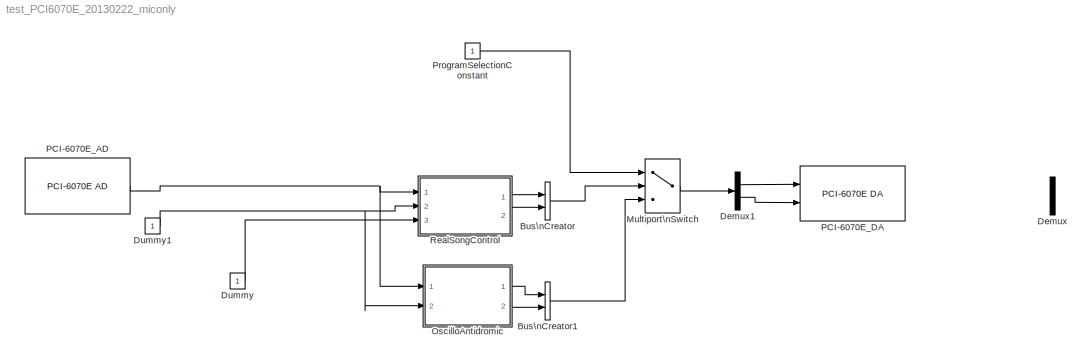
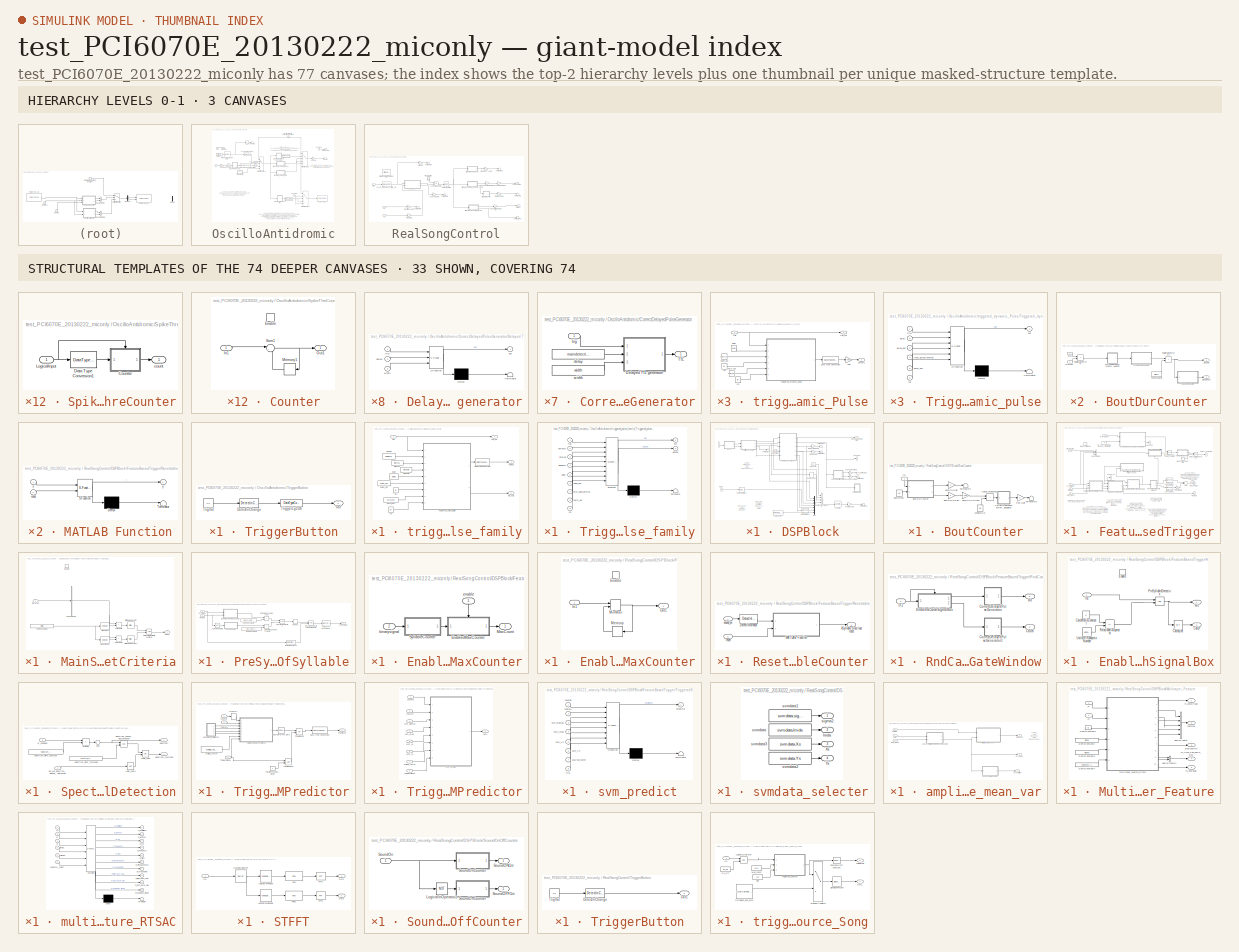
[diagram: thumbnail index - top-2 hierarchy levels (3 canvases) + 33 structural-template representatives of the remaining 74 canvases]
MODEL test_PCI6070E_20130222_miconly
KIND model
CONFIG PreLoadFcn = % Here are parameters fixed\n% during running the real-time programs.\n% \nwinLen=256;\nana_hopSize=44;\nsyn_hopSize=90;\n\nnFFT=1024;\nSampRate=44100;\nTs=1/SampRate;\n\n% % now encoded in RealSong_control \n%cepst_nfft=2048;    % nfft size for cepstrum.\n%\n%up_pitch= 8000;% \n%low_pitch=400;%\n%\n%quefrency = [0:cepst_nfft]'*nFFT/(SampRate*cepst_nfft); % quefrency in [sec].\n%quefrency_index=fi...<+320ch>
BLOCK [BusCreator] Bus\nCreator
  DisplayOption = bar
  Inputs = 2
  Ports = [2, 1]
  SID = 1312
BLOCK [BusCreator] Bus\nCreator1
  DisplayOption = bar
  Inputs = 2
  Ports = [2, 1]
  SID = 1313
BLOCK [Demux] Demux
  DisplayOption = bar
  Outputs = 2
  Ports = [1, 2]
  SID = 1314
BLOCK [Demux] Demux1
  DisplayOption = bar
  Outputs = 2
  Ports = [1, 2]
  SID = 1315
BLOCK [Constant] Dummy
  SID = 2304
  SampleTime = Ts
BLOCK [Constant] Dummy1
  SID = 2302
  SampleTime = Ts
BLOCK [MultiPortSwitch] Multiport\nSwitch
  InputSameDT = off
  Inputs = 2
  Ports = [3, 1]
  SID = 1310
  SaturateOnIntegerOverflow = off
  zeroidx = off
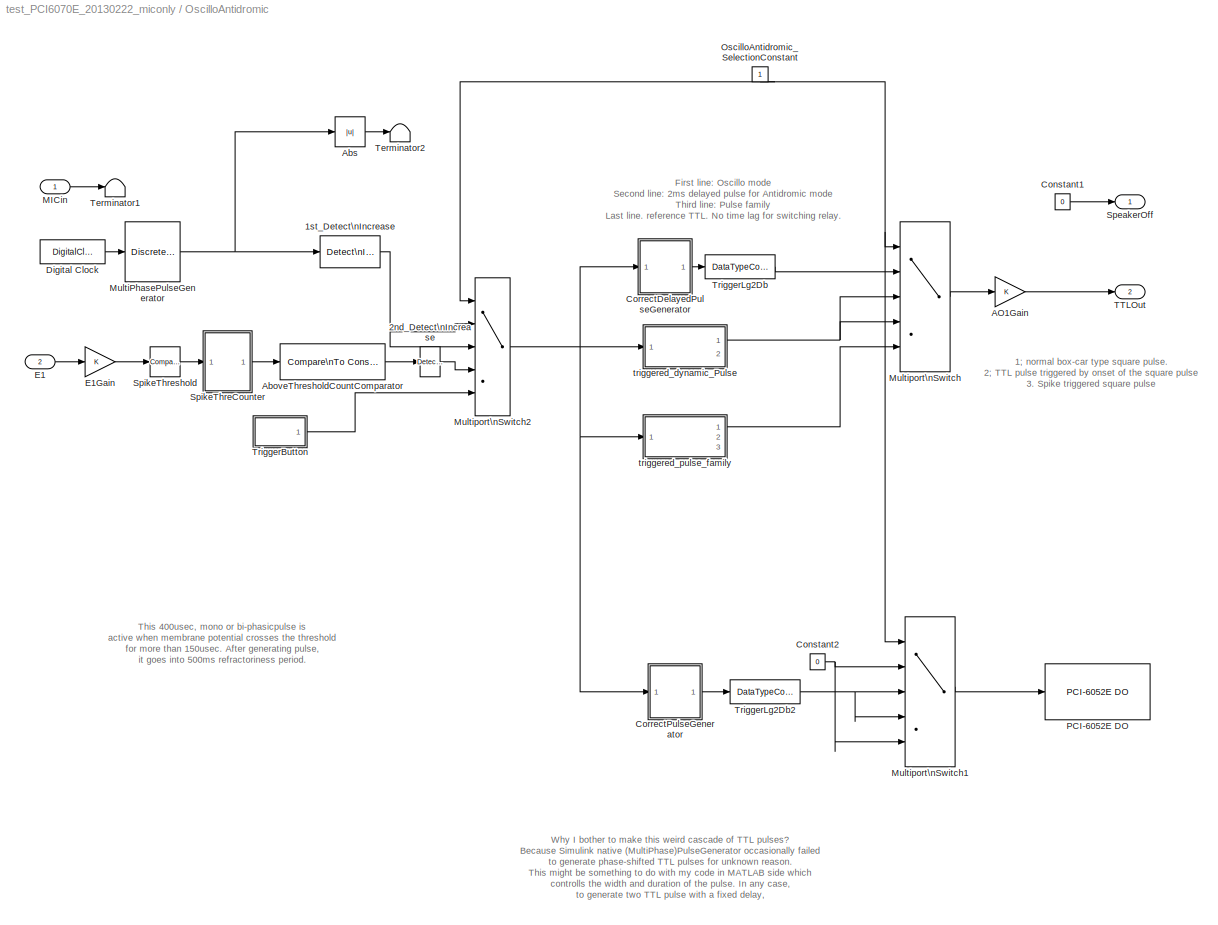
BLOCK [SubSystem] OscilloAntidromic
  FunctionWithSeparateData = off
  MaskHideContents = off
  MinAlgLoopOccurrences = off
  Opaque = off
  Ports = [2, 2]
  PropExecContextOutsideSubsystem = off
  RTWSystemCode = Auto
  RequestExecContextInheritance = off
  SID = 1287
BLOCK [Reference] OscilloAntidromic/1st_Detect\nIncrease  REF=simulink/Logic and Bit\nOperations/Detect\nIncrease
  FunctionWithSeparateData = off
  GeneratePreprocessorConditionals = off
  Ports = [1, 1]
  RTWMemSecDataConstants = Inherit from model
  RTWMemSecDataInternal = Inherit from model
  RTWMemSecDataParameters = Inherit from model
  RTWMemSecFuncExecute = Inherit from model
  RTWMemSecFuncInitTerm = Inherit from model
  SID = 2267
  ShowPortLabels = FromPortIcon
  SourceBlock = simulink/Logic and Bit\nOperations/Detect\nIncrease
  SourceType = Detect Increase
  SystemSampleTime = -1
  vinit = 0.0
BLOCK [Reference] OscilloAntidromic/2nd_Detect\nIncrease  REF=simulink/Logic and Bit\nOperations/Detect\nIncrease
  FunctionWithSeparateData = off
  GeneratePreprocessorConditionals = off
  Ports = [1, 1]
  RTWMemSecDataConstants = Inherit from model
  RTWMemSecDataInternal = Inherit from model
  RTWMemSecDataParameters = Inherit from model
  RTWMemSecFuncExecute = Inherit from model
  RTWMemSecFuncInitTerm = Inherit from model
  SID = 2268
  ShowPortLabels = FromPortIcon
  SourceBlock = simulink/Logic and Bit\nOperations/Detect\nIncrease
  SourceType = Detect Increase
  SystemSampleTime = -1
  vinit = 0.0
BLOCK [Gain] OscilloAntidromic/AO1Gain
  OutDataTypeStr = Inherit: Inherit via internal rule
  ParamDataTypeStr = Inherit: Inherit via internal rule
  SID = 1290
  SaturateOnIntegerOverflow = off
BLOCK [Reference] OscilloAntidromic/AboveThresholdCountComparator  REF=simulink/Logic and Bit\nOperations/Compare\nTo Constant
  FunctionWithSeparateData = off
  GeneratePreprocessorConditionals = off
  LogicOutDataTypeMode = uint8
  Ports = [1, 1]
  RTWMemSecDataConstants = Inherit from model
  RTWMemSecDataInternal = Inherit from model
  RTWMemSecDataParameters = Inherit from model
  RTWMemSecFuncExecute = Inherit from model
  RTWMemSecFuncInitTerm = Inherit from model
  SID = 2202
  ShowPortLabels = FromPortIcon
  SourceBlock = simulink/Logic and Bit\nOperations/Compare\nTo Constant
  SourceType = Compare To Constant
  SystemSampleTime = -1
  ZeroCross = on
  const = ceil(0.00015/Ts)
  relop = >=
BLOCK [Abs] OscilloAntidromic/Abs
  SID = 1291
  SaturateOnIntegerOverflow = off
BLOCK [Constant] OscilloAntidromic/Constant1
  SID = 1292
  Value = 0
BLOCK [Constant] OscilloAntidromic/Constant2
  SID = 2140
  Value = 0
BLOCK [SubSystem] OscilloAntidromic/CorrectDelayedPulseGenerator
  FunctionWithSeparateData = off
  MaskCallbackString = |
  MaskEnableString = on,on
  MaskHideContents = off
  MaskIconFrame = on
  MaskIconOpaque = on
  MaskIconRotate = none
  MaskIconUnits = autoscale
  MaskPortRotate = default
  MaskPromptString = Delay (count)|Width of TTL (count)
  MaskStyleString = edit,edit
  MaskToolTipString = on,on
  MaskTunableValueString = on,on
  MaskValueString = ceil(0.002/Ts)|ceil(0.05/Ts)
  MaskVariables = maindetection_startcnt=@1;width=@2;
  MaskVisibilityString = on,on
  MinAlgLoopOccurrences = off
  Opaque = off
  Ports = [1, 1]
  PropExecContextOutsideSubsystem = off
  RTWSystemCode = Auto
  RequestExecContextInheritance = off
  SID = 2153
BLOCK [SubSystem] OscilloAntidromic/CorrectDelayedPulseGenerator/Delayed TTL generator
  ErrorFcn = Stateflow.Translate.translate
  FunctionWithSeparateData = off
  MaskDescription = Embedded MATLAB block
  MaskDisplay = bgColor = Simulink.Root.ColorString2Rgb(get_param(gcbh, 'BackgroundColor')); image(imread('private/eml_membrane_16.png','png','BackgroundColor',bgColor(1:3)),'center'); disp([10 10 'fcn']);  <repeated x7 — deduplicated; at blocks: Delayed TTL generator>
  MaskHideContents = off
  MaskIconFrame = on
  MaskIconOpaque = off
  MaskIconRotate = none
  MaskIconUnits = normalized
  MaskPortRotate = default
  MaskSelfModifiable = on
  MaskType = Stateflow
  MinAlgLoopOccurrences = off
  Opaque = off
  PermitHierarchicalResolution = ExplicitOnly
  Ports = [3, 1]
  PropExecContextOutsideSubsystem = off
  RTWSystemCode = Auto
  RequestExecContextInheritance = off
  SFBlockType = MATLAB Function
  SID = 2157
  TreatAsAtomicUnit = on
BLOCK [Demux] OscilloAntidromic/CorrectDelayedPulseGenerator/Delayed TTL generator/ Demux 
  Outputs = 1
  Ports = [1, 1]
  SID = 2157::45
BLOCK [S-Function] OscilloAntidromic/CorrectDelayedPulseGenerator/Delayed TTL generator/ SFunction 
  EnableBusSupport = off
  FunctionName = sf_sfun
  PortCounts = [3 2]
  Ports = [3, 2]
  SID = 2157::44
  Tag = Stateflow S-Function test_PCI6070E_20130222_miconly 7
BLOCK [Terminator] OscilloAntidromic/CorrectDelayedPulseGenerator/Delayed TTL generator/ Terminator 
  SID = 2157::47
BLOCK [Inport] OscilloAntidromic/CorrectDelayedPulseGenerator/Delayed TTL generator/delays
  IconDisplay = Port number
  Port = 2
  SID = 2157::18
BLOCK [Outport] OscilloAntidromic/CorrectDelayedPulseGenerator/Delayed TTL generator/out
  IconDisplay = Port number
  SID = 2157::5
BLOCK [Inport] OscilloAntidromic/CorrectDelayedPulseGenerator/Delayed TTL generator/trig
  IconDisplay = Port number
  SID = 2157::1
BLOCK [Inport] OscilloAntidromic/CorrectDelayedPulseGenerator/Delayed TTL generator/width
  IconDisplay = Port number
  Port = 3
  SID = 2157::19
BLOCK [Outport] OscilloAntidromic/CorrectDelayedPulseGenerator/TTL
  IconDisplay = Port number
  SID = 2158
BLOCK [Constant] OscilloAntidromic/CorrectDelayedPulseGenerator/delay
  SID = 2155
  Value = maindetection_startcnt
  VectorParams1D = off
BLOCK [Inport] OscilloAntidromic/CorrectDelayedPulseGenerator/trig
  IconDisplay = Port number
  SID = 2154
BLOCK [Constant] OscilloAntidromic/CorrectDelayedPulseGenerator/width
  SID = 2156
  Value = width
  VectorParams1D = off
BLOCK [SubSystem] OscilloAntidromic/CorrectPulseGenerator
  FunctionWithSeparateData = off
  MaskCallbackString = |
  MaskEnableString = on,on
  MaskHideContents = off
  MaskIconFrame = on
  MaskIconOpaque = on
  MaskIconRotate = none
  MaskIconUnits = autoscale
  MaskPortRotate = default
  MaskPromptString = Delay (count)|Width of TTL (count)
  MaskStyleString = edit,edit
  MaskToolTipString = on,on
  MaskTunableValueString = on,on
  MaskValueString = 0|ceil(0.05/Ts)
  MaskVariables = maindetection_startcnt=@1;width=@2;
  MaskVisibilityString = on,on
  MinAlgLoopOccurrences = off
  Opaque = off
  Ports = [1, 1]
  PropExecContextOutsideSubsystem = off
  RTWSystemCode = Auto
  RequestExecContextInheritance = off
  SID = 2169
BLOCK [SubSystem] OscilloAntidromic/CorrectPulseGenerator/Delayed TTL generator
  ErrorFcn = Stateflow.Translate.translate
  FunctionWithSeparateData = off
  MaskDescription = Embedded MATLAB block
  MaskHideContents = off
  MaskIconFrame = on
  MaskIconOpaque = off
  MaskIconRotate = none
  MaskIconUnits = normalized
  MaskPortRotate = default
  MaskSelfModifiable = on
  MaskType = Stateflow
  MinAlgLoopOccurrences = off
  Opaque = off
  PermitHierarchicalResolution = ExplicitOnly
  Ports = [3, 1]
  PropExecContextOutsideSubsystem = off
  RTWSystemCode = Auto
  RequestExecContextInheritance = off
  SFBlockType = MATLAB Function
  SID = 2171
  TreatAsAtomicUnit = on
BLOCK [Demux] OscilloAntidromic/CorrectPulseGenerator/Delayed TTL generator/ Demux 
  Outputs = 1
  Ports = [1, 1]
  SID = 2171::45
BLOCK [S-Function] OscilloAntidromic/CorrectPulseGenerator/Delayed TTL generator/ SFunction 
  EnableBusSupport = off
  FunctionName = sf_sfun
  PortCounts = [3 2]
  Ports = [3, 2]
  SID = 2171::44
  Tag = Stateflow S-Function test_PCI6070E_20130222_miconly 13
BLOCK [Terminator] OscilloAntidromic/CorrectPulseGenerator/Delayed TTL generator/ Terminator 
  SID = 2171::47
BLOCK [Inport] OscilloAntidromic/CorrectPulseGenerator/Delayed TTL generator/delays
  IconDisplay = Port number
  Port = 2
  SID = 2171::18
BLOCK [Outport] OscilloAntidromic/CorrectPulseGenerator/Delayed TTL generator/out
  IconDisplay = Port number
  SID = 2171::5
BLOCK [Inport] OscilloAntidromic/CorrectPulseGenerator/Delayed TTL generator/trig
  IconDisplay = Port number
  SID = 2171::1
BLOCK [Inport] OscilloAntidromic/CorrectPulseGenerator/Delayed TTL generator/width
  IconDisplay = Port number
  Port = 3
  SID = 2171::19
BLOCK [Outport] OscilloAntidromic/CorrectPulseGenerator/TTL
  IconDisplay = Port number
  SID = 2174
BLOCK [Constant] OscilloAntidromic/CorrectPulseGenerator/delay
  SID = 2172
  Value = maindetection_startcnt
  VectorParams1D = off
BLOCK [Inport] OscilloAntidromic/CorrectPulseGenerator/trig
  IconDisplay = Port number
  SID = 2170
BLOCK [Constant] OscilloAntidromic/CorrectPulseGenerator/width
  SID = 2173
  Value = width
  VectorParams1D = off
BLOCK [DigitalClock] OscilloAntidromic/Digital Clock
  SID = 2146
  SampleTime = Ts
BLOCK [Inport] OscilloAntidromic/E1
  IconDisplay = Port number
  Port = 2
  SID = 1318
BLOCK [Gain] OscilloAntidromic/E1Gain
  OutDataTypeStr = Inherit: Inherit via internal rule
  ParamDataTypeStr = Inherit: Inherit via internal rule
  SID = 1319
  SaturateOnIntegerOverflow = off
BLOCK [Inport] OscilloAntidromic/MICin
  IconDisplay = Port number
  SID = 1317
BLOCK [DiscretePulseGenerator] OscilloAntidromic/MultiPhasePulseGenerator
  Period = ceil(1/AO1_TTL_Freq/Ts)
  Ports = [1, 1]
  PulseWidth = ceil(0.5/AO1_TTL_Freq/Ts)
  SID = 2137
  SampleTime = Ts
  TimeSource = Use external signal
BLOCK [MultiPortSwitch] OscilloAntidromic/Multiport\nSwitch
  InputSameDT = off
  Inputs = 4
  Ports = [5, 1]
  SID = 2131
  SaturateOnIntegerOverflow = off
  zeroidx = off
BLOCK [MultiPortSwitch] OscilloAntidromic/Multiport\nSwitch1
  InputSameDT = off
  Inputs = 4
  Ports = [5, 1]
  SID = 2139
  SaturateOnIntegerOverflow = off
  zeroidx = off
BLOCK [MultiPortSwitch] OscilloAntidromic/Multiport\nSwitch2
  InputSameDT = off
  Inputs = 4
  Ports = [5, 1]
  SID = 2168
  SaturateOnIntegerOverflow = off
  zeroidx = off
BLOCK [Constant] OscilloAntidromic/OscilloAntidromic_SelectionConstant
  SID = 2132
  SampleTime = Ts
BLOCK [Reference] OscilloAntidromic/PCI-6052E DO  REF=xpcnilib/Digital\nOutput/E Series/PCI-6052E DO
  Ports = [1]
  SID = 2136
  SourceBlock = xpcnilib/Digital\nOutput/E Series/PCI-6052E DO
  SourceType = donipcie6025
  channel = [1]
  initValue = [0]
  reset = [1]
  sampletime = Ts
  slot = -1
BLOCK [Outport] OscilloAntidromic/SpeakerOff
  IconDisplay = Port number
  SID = 1302
BLOCK [SubSystem] OscilloAntidromic/SpikeThreCounter
  FunctionWithSeparateData = off
  MaskHideContents = off
  MinAlgLoopOccurrences = off
  Opaque = off
  Ports = [1, 1]
  PropExecContextOutsideSubsystem = off
  RTWSystemCode = Auto
  RequestExecContextInheritance = off
  SID = 2192
BLOCK [SubSystem] OscilloAntidromic/SpikeThreCounter/Counter
  FunctionWithSeparateData = off
  MaskHideContents = off
  MinAlgLoopOccurrences = off
  Opaque = off
  Ports = [1, 1, 1]
  PropExecContextOutsideSubsystem = off
  RTWSystemCode = Auto
  RequestExecContextInheritance = off
  SID = 2194
  TreatAsAtomicUnit = on
BLOCK [EnablePort] OscilloAntidromic/SpikeThreCounter/Counter/Enable
  Ports = []
  SID = 2196
  StatesWhenEnabling = reset
BLOCK [Inport] OscilloAntidromic/SpikeThreCounter/Counter/In1
  IconDisplay = Port number
  SID = 2195
BLOCK [Memory] OscilloAntidromic/SpikeThreCounter/Counter/Memory1
  InheritSampleTime = on
  SID = 2197
BLOCK [Outport] OscilloAntidromic/SpikeThreCounter/Counter/Out1
  IconDisplay = Port number
  InitialOutput = 0
  OutputWhenDisabled = reset
  SID = 2199
BLOCK [Sum] OscilloAntidromic/SpikeThreCounter/Counter/Sum1
  IconShape = round
  InputSameDT = off
  Inputs = |++
  OutDataTypeStr = Inherit: Inherit via internal rule
  Ports = [2, 1]
  SID = 2198
BLOCK [DataTypeConversion] OscilloAntidromic/SpikeThreCounter/Data Type Conversion1
  OutDataTypeStr = double
  SID = 2200
  SaturateOnIntegerOverflow = off
BLOCK [Inport] OscilloAntidromic/SpikeThreCounter/LogicalInput
  IconDisplay = Port number
  SID = 2193
BLOCK [Outport] OscilloAntidromic/SpikeThreCounter/count
  IconDisplay = Port number
  SID = 2201
BLOCK [Reference] OscilloAntidromic/SpikeThreshold  REF=simulink/Logic and Bit\nOperations/Compare\nTo Constant
  FunctionWithSeparateData = off
  GeneratePreprocessorConditionals = off
  LogicOutDataTypeMode = uint8
  Ports = [1, 1]
  RTWMemSecDataConstants = Inherit from model
  RTWMemSecDataInternal = Inherit from model
  RTWMemSecDataParameters = Inherit from model
  RTWMemSecFuncExecute = Inherit from model
  RTWMemSecFuncInitTerm = Inherit from model
  SID = 2191
  ShowPortLabels = FromPortIcon
  SourceBlock = simulink/Logic and Bit\nOperations/Compare\nTo Constant
  SourceType = Compare To Constant
  SystemSampleTime = -1
  ZeroCross = on
  const = -40*10
  relop = >=
BLOCK [Outport] OscilloAntidromic/TTLOut
  IconDisplay = Port number
  Port = 2
  SID = 1303
BLOCK [Terminator] OscilloAntidromic/Terminator1
  SID = 1321
BLOCK [Terminator] OscilloAntidromic/Terminator2
  SID = 1301
BLOCK [SubSystem] OscilloAntidromic/TriggerButton
  FunctionWithSeparateData = off
  MaskHideContents = off
  MinAlgLoopOccurrences = off
  Opaque = off
  Ports = [0, 1]
  PropExecContextOutsideSubsystem = off
  RTWSystemCode = Auto
  RequestExecContextInheritance = off
  SID = 2255
BLOCK [Reference] OscilloAntidromic/TriggerButton/Detect\nChange  REF=simulink/Logic and Bit\nOperations/Detect\nChange
  FunctionWithSeparateData = off
  GeneratePreprocessorConditionals = off
  Ports = [1, 1]
  RTWMemSecDataConstants = Inherit from model
  RTWMemSecDataInternal = Inherit from model
  RTWMemSecDataParameters = Inherit from model
  RTWMemSecFuncExecute = Inherit from model
  RTWMemSecFuncInitTerm = Inherit from model
  SID = 2256
  ShowPortLabels = FromPortIcon
  SourceBlock = simulink/Logic and Bit\nOperations/Detect\nChange
  SourceType = Detect Change
  SystemSampleTime = -1
  vinit = 1.0
BLOCK [Outport] OscilloAntidromic/TriggerButton/Out
  IconDisplay = Port number
  SID = 2258
BLOCK [Constant] OscilloAntidromic/TriggerButton/TrigVal
  OutDataTypeStr = int8
  SID = 2257
  Value = 1.0
BLOCK [DataTypeConversion] OscilloAntidromic/TriggerButton/TriggerLg2Db
  OutDataTypeStr = double
  SID = 2265
  SaturateOnIntegerOverflow = off
BLOCK [DataTypeConversion] OscilloAntidromic/TriggerLg2Db
  OutDataTypeStr = double
  SID = 2159
  SaturateOnIntegerOverflow = off
BLOCK [DataTypeConversion] OscilloAntidromic/TriggerLg2Db2
  OutDataTypeStr = double
  SID = 2175
  SaturateOnIntegerOverflow = off
BLOCK [SubSystem] OscilloAntidromic/triggered_dynamic_Pulse
  FunctionWithSeparateData = off
  MaskCallbackString = |||||
  MaskDisplay = plot(X,Y)
  MaskEnableString = on,on,on,on,on,on
  MaskHideContents = off
  MaskIconFrame = on
  MaskIconOpaque = on
  MaskIconRotate = none
  MaskIconUnits = autoscale
  MaskInitialization = Y = make_pulse(delay,burst_dur,pulse_dur,ipi,1,44100);\nX = 1:length(Y);\n
  MaskPortRotate = default
  MaskPromptString = Amp [V]|delay [ms]|pulse duration  [ms]|inter_pulse_interval  [ms]|total burst duration  [ms]|Ref  [ms]
  MaskStyleString = edit,edit,edit,edit,edit,edit
  MaskToolTipString = on,on,on,on,on,on
  MaskTunableValueString = on,on,on,on,on,on
  MaskValueString = 1|ceil(0.001/Ts)|ceil(0.0002/Ts)|ceil(0.00021/Ts)|ceil(0.00042/Ts)|ceil(0.5/Ts)
  MaskVariables = amp=@1;delay=@2;pulse_dur=@3;ipi=@4;burst_dur=@5;ref=@6;
  MaskVisibilityString = on,on,on,on,on,on
  MinAlgLoopOccurrences = off
  Opaque = off
  Ports = [1, 2]
  PropExecContextOutsideSubsystem = off
  RTWSystemCode = Auto
  RequestExecContextInheritance = off
  SID = 2203
BLOCK [DataTypeConversion] OscilloAntidromic/triggered_dynamic_Pulse/Data Type Conversion
  OutDataTypeStr = double
  RndMeth = Floor
  SID = 2205
  SaturateOnIntegerOverflow = off
BLOCK [Constant] OscilloAntidromic/triggered_dynamic_Pulse/IPI
  SID = 2206
  Value = ipi
BLOCK [SubSystem] OscilloAntidromic/triggered_dynamic_Pulse/Triggered_dynamic_pulse
  ErrorFcn = Stateflow.Translate.translate
  FunctionWithSeparateData = off
  MaskDescription = Embedded MATLAB block
  MaskDisplay = bgColor = Simulink.Root.ColorString2Rgb(get_param(gcbh, 'BackgroundColor')); image(imread('private/eml_membrane_16.png','png','BackgroundColor',bgColor(1:3)),'center'); disp([10 10 'trig_dynamic_pulse']);  <repeated x3 — deduplicated; at blocks: Triggered_dynamic_pulse>
  MaskHideContents = off
  MaskIconFrame = on
  MaskIconOpaque = off
  MaskIconRotate = none
  MaskIconUnits = normalized
  MaskPortRotate = default
  MaskSelfModifiable = on
  MaskType = Stateflow
  MinAlgLoopOccurrences = off
  Opaque = off
  PermitHierarchicalResolution = ExplicitOnly
  Ports = [6, 1]
  PropExecContextOutsideSubsystem = off
  RTWSystemCode = Auto
  RequestExecContextInheritance = off
  SFBlockType = MATLAB Function
  SID = 2207
  TreatAsAtomicUnit = on
BLOCK [Demux] OscilloAntidromic/triggered_dynamic_Pulse/Triggered_dynamic_pulse/ Demux 
  Outputs = 1
  Ports = [1, 1]
  SID = 2207::48
BLOCK [S-Function] OscilloAntidromic/triggered_dynamic_Pulse/Triggered_dynamic_pulse/ SFunction 
  EnableBusSupport = off
  FunctionName = sf_sfun
  PortCounts = [6 2]
  Ports = [6, 2]
  SID = 2207::47
  Tag = Stateflow S-Function test_PCI6070E_20130222_miconly 14
BLOCK [Terminator] OscilloAntidromic/triggered_dynamic_Pulse/Triggered_dynamic_pulse/ Terminator 
  SID = 2207::50
BLOCK [Inport] OscilloAntidromic/triggered_dynamic_Pulse/Triggered_dynamic_pulse/burst_dur
  IconDisplay = Port number
  Port = 5
  SID = 2207::30
BLOCK [Inport] OscilloAntidromic/triggered_dynamic_Pulse/Triggered_dynamic_pulse/delay
  IconDisplay = Port number
  Port = 2
  SID = 2207::18
BLOCK [Inport] OscilloAntidromic/triggered_dynamic_Pulse/Triggered_dynamic_pulse/inter_pulse_interval
  IconDisplay = Port number
  Port = 4
  SID = 2207::29
BLOCK [Outport] OscilloAntidromic/triggered_dynamic_Pulse/Triggered_dynamic_pulse/out
  IconDisplay = Port number
  SID = 2207::5
BLOCK [Inport] OscilloAntidromic/triggered_dynamic_Pulse/Triggered_dynamic_pulse/pulse_dur
  IconDisplay = Port number
  Port = 3
  SID = 2207::28
BLOCK [Inport] OscilloAntidromic/triggered_dynamic_Pulse/Triggered_dynamic_pulse/ref
  IconDisplay = Port number
  Port = 6
  SID = 2207::19
BLOCK [Inport] OscilloAntidromic/triggered_dynamic_Pulse/Triggered_dynamic_pulse/trig
  IconDisplay = Port number
  SID = 2207::1
BLOCK [Constant] OscilloAntidromic/triggered_dynamic_Pulse/burst_dur
  SID = 2208
  Value = burst_dur
BLOCK [Constant] OscilloAntidromic/triggered_dynamic_Pulse/delay
  SID = 2209
  Value = delay
BLOCK [Gain] OscilloAntidromic/triggered_dynamic_Pulse/gain
  Gain = amp
  OutDataTypeStr = Inherit: Inherit via internal rule
  ParamDataTypeStr = Inherit: Inherit via internal rule
  SID = 2210
  SaturateOnIntegerOverflow = off
BLOCK [Outport] OscilloAntidromic/triggered_dynamic_Pulse/output1
  IconDisplay = Port number
  SID = 2213
BLOCK [Constant] OscilloAntidromic/triggered_dynamic_Pulse/pulse_dur
  SID = 2211
  Value = pulse_dur
BLOCK [Constant] OscilloAntidromic/triggered_dynamic_Pulse/ref
  SID = 2212
  Value = ref
BLOCK [Inport] OscilloAntidromic/triggered_dynamic_Pulse/trig
  IconDisplay = Port number
  SID = 2204
BLOCK [Outport] OscilloAntidromic/triggered_dynamic_Pulse/trig_out
  IconDisplay = Port number
  Port = 2
  SID = 2214
BLOCK [SubSystem] OscilloAntidromic/triggered_pulse_family
  FunctionWithSeparateData = off
  MaskCallbackString = |||||||
  MaskDisplay = plot(X,Y)
  MaskEnableString = on,on,on,on,on,on,on,on
  MaskHideContents = off
  MaskIconFrame = on
  MaskIconOpaque = on
  MaskIconRotate = none
  MaskIconUnits = autoscale
  MaskInitialization = amp=[lowamp:interval:highamp]\nif ceil(burst_dur/ipi)>length(amp)\n    errordlg(sprintf('amp vector (%d)is shorter than required length (%d)!',...\n        length(amp),ceil(burst_dur/ipi)));\nend\n\nY = make_pulsefamily(delay,burst_dur,pulse_dur,ipi,amp,44100);\nX = 1:length(Y);\n
  MaskPortRotate = default
  MaskPromptString = delay [ms]|pulse duration  [ms]|inter_pulse_interval  [ms]|total burst duration  [ms]|Ref  [ms]|Lowest current [pA]|current interval [pA]|Highest current [pA]
  MaskStyleString = edit,edit,edit,edit,edit,edit,edit,edit
  MaskToolTipString = on,on,on,on,on,on,on,on
  MaskTunableValueString = on,on,on,on,on,on,on,on
  MaskValueString = ceil(0.1/Ts)|ceil(0.1/Ts)|ceil(0.4/Ts)|ceil(1/Ts)|ceil(1/Ts)|-600|600|600
  MaskVariables = delay=@1;pulse_dur=@2;ipi=@3;burst_dur=@4;ref=@5;lowamp=@6;interval=@7;highamp=@8;
  MaskVisibilityString = on,on,on,on,on,on,on,on
  MinAlgLoopOccurrences = off
  Opaque = off
  Ports = [1, 3]
  PropExecContextOutsideSubsystem = off
  RTWSystemCode = Auto
  RequestExecContextInheritance = off
  SID = 2242
BLOCK [DataTypeConversion] OscilloAntidromic/triggered_pulse_family/Data Type Conversion
  OutDataTypeStr = double
  RndMeth = Floor
  SID = 2244
  SaturateOnIntegerOverflow = off
BLOCK [Constant] OscilloAntidromic/triggered_pulse_family/IPI
  SID = 2245
  Value = ipi
BLOCK [SubSystem] OscilloAntidromic/triggered_pulse_family/Triggered_pulse_family
  ErrorFcn = Stateflow.Translate.translate
  FunctionWithSeparateData = off
  MaskDescription = Embedded MATLAB block
  MaskDisplay = bgColor = Simulink.Root.ColorString2Rgb(get_param(gcbh, 'BackgroundColor')); image(imread('private/eml_membrane_16.png','png','BackgroundColor',bgColor(1:3)),'center'); disp([10 10 'trig_pulse_family']);
  MaskHideContents = off
  MaskIconFrame = on
  MaskIconOpaque = off
  MaskIconRotate = none
  MaskIconUnits = normalized
  MaskPortRotate = default
  MaskSelfModifiable = on
  MaskType = Stateflow
  MinAlgLoopOccurrences = off
  Opaque = off
  PermitHierarchicalResolution = ExplicitOnly
  Ports = [9, 2]
  PropExecContextOutsideSubsystem = off
  RTWSystemCode = Auto
  RequestExecContextInheritance = off
  SFBlockType = MATLAB Function
  SID = 2246
  TreatAsAtomicUnit = on
BLOCK [Demux] OscilloAntidromic/triggered_pulse_family/Triggered_pulse_family/ Demux 
  Outputs = 1
  Ports = [1, 1]
  SID = 2246::53
BLOCK [S-Function] OscilloAntidromic/triggered_pulse_family/Triggered_pulse_family/ SFunction 
  EnableBusSupport = off
  FunctionName = sf_sfun
  PortCounts = [9 3]
  Ports = [9, 3]
  SID = 2246::52
  Tag = Stateflow S-Function test_PCI6070E_20130222_miconly 15
BLOCK [Terminator] OscilloAntidromic/triggered_pulse_family/Triggered_pulse_family/ Terminator 
  SID = 2246::55
BLOCK [Outport] OscilloAntidromic/triggered_pulse_family/Triggered_pulse_family/absout
  IconDisplay = Port number
  Port = 2
  SID = 2246::39
BLOCK [Inport] OscilloAntidromic/triggered_pulse_family/Triggered_pulse_family/burst_dur
  IconDisplay = Port number
  Port = 8
  SID = 2246::30
BLOCK [Inport] OscilloAntidromic/triggered_pulse_family/Triggered_pulse_family/delay
  IconDisplay = Port number
  Port = 5
  SID = 2246::18
BLOCK [Inport] OscilloAntidromic/triggered_pulse_family/Triggered_pulse_family/highamp
  IconDisplay = Port number
  Port = 4
  SID = 2246::38
BLOCK [Inport] OscilloAntidromic/triggered_pulse_family/Triggered_pulse_family/inter_pulse_interval
  IconDisplay = Port number
  Port = 7
  SID = 2246::29
BLOCK [Inport] OscilloAntidromic/triggered_pulse_family/Triggered_pulse_family/interval
  IconDisplay = Port number
  Port = 3
  SID = 2246::37
BLOCK [Inport] OscilloAntidromic/triggered_pulse_family/Triggered_pulse_family/lowamp
  IconDisplay = Port number
  Port = 2
  SID = 2246::36
BLOCK [Outport] OscilloAntidromic/triggered_pulse_family/Triggered_pulse_family/out
  IconDisplay = Port number
  SID = 2246::5
BLOCK [Inport] OscilloAntidromic/triggered_pulse_family/Triggered_pulse_family/pulse_dur
  IconDisplay = Port number
  Port = 6
  SID = 2246::28
BLOCK [Inport] OscilloAntidromic/triggered_pulse_family/Triggered_pulse_family/ref
  IconDisplay = Port number
  Port = 9
  SID = 2246::19
BLOCK [Inport] OscilloAntidromic/triggered_pulse_family/Triggered_pulse_family/trig
  IconDisplay = Port number
  SID = 2246::1
BLOCK [Constant] OscilloAntidromic/triggered_pulse_family/burst_dur
  SID = 2247
  Value = burst_dur
BLOCK [Constant] OscilloAntidromic/triggered_pulse_family/delay
  SID = 2248
  Value = delay
BLOCK [Constant] OscilloAntidromic/triggered_pulse_family/highamp
  SID = 2263
  Value = highamp
BLOCK [Constant] OscilloAntidromic/triggered_pulse_family/interval
  SID = 2264
  Value = interval
BLOCK [Constant] OscilloAntidromic/triggered_pulse_family/lowamp
  SID = 2254
  Value = lowamp
BLOCK [Outport] OscilloAntidromic/triggered_pulse_family/output1
  IconDisplay = Port number
  SID = 2252
BLOCK [Constant] OscilloAntidromic/triggered_pulse_family/pulse_dur
  SID = 2250
  Value = pulse_dur
BLOCK [Constant] OscilloAntidromic/triggered_pulse_family/ref
  SID = 2251
  Value = ref
BLOCK [Inport] OscilloAntidromic/triggered_pulse_family/trig
  IconDisplay = Port number
  SID = 2243
BLOCK [Outport] OscilloAntidromic/triggered_pulse_family/trig_out
  IconDisplay = Port number
  Port = 2
  SID = 2253
BLOCK [Outport] OscilloAntidromic/triggered_pulse_family/trig_out1
  IconDisplay = Port number
  Port = 3
  SID = 2270
BLOCK [Reference] PCI-6070E_AD  REF=xpcnilib/A//D/E Series/PCI-6070E AD
  Ports = [0, 1]
  SID = 2382
  SourceBlock = xpcnilib/A//D/E Series/PCI-6070E AD
  SourceType = adnipci6070e
  channel = [1]
  coupling = [0]
  range = [-10]
  sampletime = Ts
  slot = -1
BLOCK [Reference] PCI-6070E_DA  REF=xpcnilib/D//A/E Series/PCI-6070E DA
  Ports = [2]
  SID = 2381
  SourceBlock = xpcnilib/D//A/E Series/PCI-6070E DA
  SourceType = danipci6070e
  channel = [1 2]
  initValue = [0 0]
  range = [-10 -10]
  reset = [1 1]
  sampletime = Ts
  slot = -1
BLOCK [Constant] ProgramSelectionConstant
  SID = 1311
  SampleTime = Ts
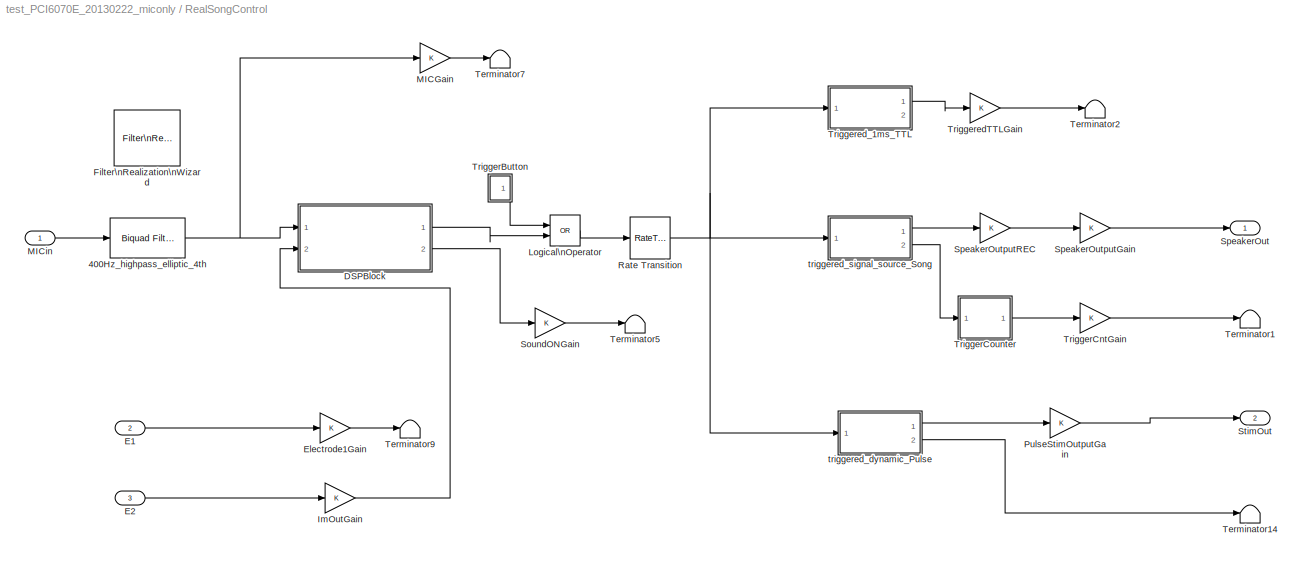
BLOCK [SubSystem] RealSongControl
  FunctionWithSeparateData = off
  MaskHideContents = off
  MinAlgLoopOccurrences = off
  Opaque = off
  Ports = [3, 2]
  PropExecContextOutsideSubsystem = off
  RTWSystemCode = Auto
  RequestExecContextInheritance = off
  SID = 910
BLOCK [Reference] RealSongControl/400Hz_highpass_elliptic_4th  REF=dsparch4/Biquad Filter
  BiQuadCoeffs = [1 -1.99997295416341 1 1 -1.86330921959673 0.873887398426786;1 -1.99984550773747 1 1 -1.98119934202051 0.984460391369785]
  CoeffSource = Specify via dialog
  FilterSource = Specify via dialog
  IC = 0
  ICden = 0
  ICnum = 0
  IIRFiltStruct = Direct form II
  InputProcessing = Columns as channels (frame based)
  LockScale = off
  Ports = [1, 1]
  SID = 2283
  ScaleValueMode = Specify via input port (g)
  ScaleValues = [16.3731438660539;0.0504230422181438;1]
  SourceBlock = dsparch4/Biquad Filter
  SourceType = Biquad Filter
  Tag = BlockMethodSubSystem
  UserData = DataTag0
  UserDataPersistent = on
  a0Flag = Warning
  accumFracLength = 30
  accumMode = Same as product output
  accumWordLength = 32
  allowOverrides = on
  denAccumFracLength = 30
  denProdOutputFracLength = 30
  dfiltObjectName = dfilt.df2tsos([1 0.3 0.4],[1 0.1 0.2])
  firstCoeffFracLength = 15
  firstCoeffMode = Same word length as input
  firstCoeffWordLength = 16
  memoryFracLength = 15
  memoryMode = Same as accumulator
  memoryWordLength = 16
  multiplicandFracLength = 30
  multiplicandMode = Same as output
  multiplicandWordLength = 32
  optimizeScaleValues = on
  outputFracLength = 15
  outputMode = Same as accumulator
  outputWordLength = 16
  overflowMode = off
  prodOutputFracLength = 30
  prodOutputMode = Same as input
  prodOutputWordLength = 32
  roundingMode = Floor
  scaleValueFracLength = 14
  secondCoeffFracLength = 15
  secondCoeffMode = Same as numerator
  secondCoeffWordLength = 16
  secondMemoryFracLength = 15
  stageInputFracLength = 15
  stageInputMode = Same as input
  stageInputWordLength = 16
  stageOutputFracLength = 15
  stageOutputMode = Same as section input
  stageOutputWordLength = 16
BLOCK [SubSystem] RealSongControl/DSPBlock
  FunctionWithSeparateData = off
  MaskHideContents = off
  MinAlgLoopOccurrences = off
  Opaque = off
  Ports = [2, 2]
  PropExecContextOutsideSubsystem = off
  RTWSystemCode = Auto
  RequestExecContextInheritance = off
  SID = 2219
BLOCK [SubSystem] RealSongControl/DSPBlock/BoutCounter
  FunctionWithSeparateData = off
  MaskHideContents = off
  MinAlgLoopOccurrences = off
  Opaque = off
  Ports = [1]
  PropExecContextOutsideSubsystem = off
  RTWSystemCode = Auto
  RequestExecContextInheritance = off
  SID = 2306
BLOCK [SubSystem] RealSongControl/DSPBlock/BoutCounter/BoutDurCounter
  FunctionWithSeparateData = off
  MaskCallbackString = |
  MaskEnableString = on,on
  MaskHideContents = off
  MaskIconFrame = on
  MaskIconOpaque = on
  MaskIconRotate = none
  MaskIconUnits = autoscale
  MaskPortRotate = default
  MaskPromptString = Gap shorter than this is neglected|On state must be longer than this
  MaskStyleString = edit,edit
  MaskToolTipString = on,on
  MaskTunableValueString = on,on
  MaskValueString = ceil(0.2/Ts/60)|ceil(0.03/Ts/60)
  MaskVariables = mingap=@1;minsyl=@2;
  MaskVisibilityString = on,on
  MinAlgLoopOccurrences = off
  Opaque = off
  Ports = [2, 2]
  PropExecContextOutsideSubsystem = off
  RTWSystemCode = Auto
  RequestExecContextInheritance = off
  SID = 807
BLOCK [SubSystem] RealSongControl/DSPBlock/BoutCounter/BoutDurCounter/CorrectDelayedPulseGenerator\nForSyllableOn
  FunctionWithSeparateData = off
  MaskCallbackString = |
  MaskEnableString = on,on
  MaskHideContents = off
  MaskIconFrame = on
  MaskIconOpaque = on
  MaskIconRotate = none
  MaskIconUnits = autoscale
  MaskPortRotate = default
  MaskPromptString = Delay (count)|Width of TTL (count)
  MaskStyleString = edit,edit
  MaskToolTipString = on,on
  MaskTunableValueString = on,on
  MaskValueString = 0|mingap
  MaskVariables = maindetection_startcnt=@1;width=@2;
  MaskVisibilityString = on,on
  MinAlgLoopOccurrences = off
  Opaque = off
  Ports = [1, 1]
  PropExecContextOutsideSubsystem = off
  RTWSystemCode = Auto
  RequestExecContextInheritance = off
  SID = 810
BLOCK [Constant] RealSongControl/DSPBlock/BoutCounter/BoutDurCounter/CorrectDelayedPulseGenerator\nForSyllableOn/DSP\nConstant2
  SID = 812
  Value = maindetection_startcnt
  VectorParams1D = off
BLOCK [Constant] RealSongControl/DSPBlock/BoutCounter/BoutDurCounter/CorrectDelayedPulseGenerator\nForSyllableOn/DSP\nConstant3
  SID = 813
  Value = width
  VectorParams1D = off
BLOCK [SubSystem] RealSongControl/DSPBlock/BoutCounter/BoutDurCounter/CorrectDelayedPulseGenerator\nForSyllableOn/Delayed TTL generator
  ErrorFcn = Stateflow.Translate.translate
  FunctionWithSeparateData = off
  MaskDescription = Embedded MATLAB block
  MaskHideContents = off
  MaskIconFrame = on
  MaskIconOpaque = off
  MaskIconRotate = none
  MaskIconUnits = normalized
  MaskPortRotate = default
  MaskSelfModifiable = on
  MaskType = Stateflow
  MinAlgLoopOccurrences = off
  Opaque = off
  PermitHierarchicalResolution = ExplicitOnly
  Ports = [3, 1]
  PropExecContextOutsideSubsystem = off
  RTWSystemCode = Auto
  RequestExecContextInheritance = off
  SFBlockType = MATLAB Function
  SID = 814
  TreatAsAtomicUnit = on
BLOCK [Demux] RealSongControl/DSPBlock/BoutCounter/BoutDurCounter/CorrectDelayedPulseGenerator\nForSyllableOn/Delayed TTL generator/ Demux 
  Outputs = 1
  Ports = [1, 1]
  SID = 814::45
BLOCK [S-Function] RealSongControl/DSPBlock/BoutCounter/BoutDurCounter/CorrectDelayedPulseGenerator\nForSyllableOn/Delayed TTL generator/ SFunction 
  EnableBusSupport = off
  FunctionName = sf_sfun
  PortCounts = [3 2]
  Ports = [3, 2]
  SID = 814::44
  Tag = Stateflow S-Function test_PCI6070E_20130222_miconly 8
BLOCK [Terminator] RealSongControl/DSPBlock/BoutCounter/BoutDurCounter/CorrectDelayedPulseGenerator\nForSyllableOn/Delayed TTL generator/ Terminator 
  SID = 814::47
BLOCK [Inport] RealSongControl/DSPBlock/BoutCounter/BoutDurCounter/CorrectDelayedPulseGenerator\nForSyllableOn/Delayed TTL generator/delays
  IconDisplay = Port number
  Port = 2
  SID = 814::18
BLOCK [Outport] RealSongControl/DSPBlock/BoutCounter/BoutDurCounter/CorrectDelayedPulseGenerator\nForSyllableOn/Delayed TTL generator/out
  IconDisplay = Port number
  SID = 814::5
BLOCK [Inport] RealSongControl/DSPBlock/BoutCounter/BoutDurCounter/CorrectDelayedPulseGenerator\nForSyllableOn/Delayed TTL generator/trig
  IconDisplay = Port number
  SID = 814::1
BLOCK [Inport] RealSongControl/DSPBlock/BoutCounter/BoutDurCounter/CorrectDelayedPulseGenerator\nForSyllableOn/Delayed TTL generator/width
  IconDisplay = Port number
  Port = 3
  SID = 814::19
BLOCK [Outport] RealSongControl/DSPBlock/BoutCounter/BoutDurCounter/CorrectDelayedPulseGenerator\nForSyllableOn/TTL
  IconDisplay = Port number
  SID = 815
BLOCK [Inport] RealSongControl/DSPBlock/BoutCounter/BoutDurCounter/CorrectDelayedPulseGenerator\nForSyllableOn/trig
  IconDisplay = Port number
  SID = 811
BLOCK [Constant] RealSongControl/DSPBlock/BoutCounter/BoutDurCounter/DSP\nConstant2
  SID = 816
  Value = minsyl
  VectorParams1D = off
BLOCK [Inport] RealSongControl/DSPBlock/BoutCounter/BoutDurCounter/Input
  IconDisplay = Port number
  SID = 808
BLOCK [SubSystem] RealSongControl/DSPBlock/BoutCounter/BoutDurCounter/PreSoundOnCounter
  FunctionWithSeparateData = off
  MaskHideContents = off
  MinAlgLoopOccurrences = off
  Opaque = off
  Ports = [1, 1]
  PropExecContextOutsideSubsystem = off
  RTWSystemCode = Auto
  RequestExecContextInheritance = off
  SID = 817
BLOCK [SubSystem] RealSongControl/DSPBlock/BoutCounter/BoutDurCounter/PreSoundOnCounter/Counter
  FunctionWithSeparateData = off
  MaskHideContents = off
  MinAlgLoopOccurrences = off
  Opaque = off
  Ports = [1, 1, 1]
  PropExecContextOutsideSubsystem = off
  RTWSystemCode = Auto
  RequestExecContextInheritance = off
  SID = 819
  TreatAsAtomicUnit = on
BLOCK [EnablePort] RealSongControl/DSPBlock/BoutCounter/BoutDurCounter/PreSoundOnCounter/Counter/Enable
  Ports = []
  SID = 821
  StatesWhenEnabling = reset
BLOCK [Inport] RealSongControl/DSPBlock/BoutCounter/BoutDurCounter/PreSoundOnCounter/Counter/In1
  IconDisplay = Port number
  SID = 820
BLOCK [Memory] RealSongControl/DSPBlock/BoutCounter/BoutDurCounter/PreSoundOnCounter/Counter/Memory1
  InheritSampleTime = on
  SID = 822
BLOCK [Outport] RealSongControl/DSPBlock/BoutCounter/BoutDurCounter/PreSoundOnCounter/Counter/Out1
  IconDisplay = Port number
  InitialOutput = 0
  OutputWhenDisabled = reset
  SID = 824
BLOCK [Sum] RealSongControl/DSPBlock/BoutCounter/BoutDurCounter/PreSoundOnCounter/Counter/Sum1
  IconShape = round
  InputSameDT = off
  Inputs = |++
  OutDataTypeStr = Inherit: Inherit via internal rule
  Ports = [2, 1]
  SID = 823
BLOCK [DataTypeConversion] RealSongControl/DSPBlock/BoutCounter/BoutDurCounter/PreSoundOnCounter/Data Type Conversion1
  OutDataTypeStr = double
  SID = 825
  SaturateOnIntegerOverflow = off
BLOCK [Inport] RealSongControl/DSPBlock/BoutCounter/BoutDurCounter/PreSoundOnCounter/LogicalInput
  IconDisplay = Port number
  SID = 818
BLOCK [Outport] RealSongControl/DSPBlock/BoutCounter/BoutDurCounter/PreSoundOnCounter/count
  IconDisplay = Port number
  SID = 826
BLOCK [RelationalOperator] RealSongControl/DSPBlock/BoutCounter/BoutDurCounter/Relational\nOperator
  InputSameDT = off
  Operator = >
  OutDataTypeStr = boolean
  Ports = [2, 1]
  SID = 827
BLOCK [RelationalOperator] RealSongControl/DSPBlock/BoutCounter/BoutDurCounter/Relational\nOperator1
  InputSameDT = off
  Operator = >
  OutDataTypeStr = boolean
  Ports = [2, 1]
  SID = 828
BLOCK [Outport] RealSongControl/DSPBlock/BoutCounter/BoutDurCounter/SignalOn
  IconDisplay = Port number
  SID = 839
BLOCK [Outport] RealSongControl/DSPBlock/BoutCounter/BoutDurCounter/SignalOnCnt
  IconDisplay = Port number
  Port = 2
  SID = 840
BLOCK [SubSystem] RealSongControl/DSPBlock/BoutCounter/BoutDurCounter/SoundOnCounter
  FunctionWithSeparateData = off
  MaskHideContents = off
  MinAlgLoopOccurrences = off
  Opaque = off
  Ports = [1, 1]
  PropExecContextOutsideSubsystem = off
  RTWSystemCode = Auto
  RequestExecContextInheritance = off
  SID = 829
BLOCK [SubSystem] RealSongControl/DSPBlock/BoutCounter/BoutDurCounter/SoundOnCounter/Counter
  FunctionWithSeparateData = off
  MaskHideContents = off
  MinAlgLoopOccurrences = off
  Opaque = off
  Ports = [1, 1, 1]
  PropExecContextOutsideSubsystem = off
  RTWSystemCode = Auto
  RequestExecContextInheritance = off
  SID = 831
  TreatAsAtomicUnit = on
BLOCK [EnablePort] RealSongControl/DSPBlock/BoutCounter/BoutDurCounter/SoundOnCounter/Counter/Enable
  Ports = []
  SID = 833
  StatesWhenEnabling = reset
BLOCK [Inport] RealSongControl/DSPBlock/BoutCounter/BoutDurCounter/SoundOnCounter/Counter/In1
  IconDisplay = Port number
  SID = 832
BLOCK [Memory] RealSongControl/DSPBlock/BoutCounter/BoutDurCounter/SoundOnCounter/Counter/Memory1
  InheritSampleTime = on
  SID = 834
BLOCK [Outport] RealSongControl/DSPBlock/BoutCounter/BoutDurCounter/SoundOnCounter/Counter/Out1
  IconDisplay = Port number
  InitialOutput = 0
  OutputWhenDisabled = reset
  SID = 836
BLOCK [Sum] RealSongControl/DSPBlock/BoutCounter/BoutDurCounter/SoundOnCounter/Counter/Sum1
  IconShape = round
  InputSameDT = off
  Inputs = |++
  OutDataTypeStr = Inherit: Inherit via internal rule
  Ports = [2, 1]
  SID = 835
BLOCK [DataTypeConversion] RealSongControl/DSPBlock/BoutCounter/BoutDurCounter/SoundOnCounter/Data Type Conversion1
  OutDataTypeStr = double
  SID = 837
  SaturateOnIntegerOverflow = off
BLOCK [Inport] RealSongControl/DSPBlock/BoutCounter/BoutDurCounter/SoundOnCounter/LogicalInput
  IconDisplay = Port number
  SID = 830
BLOCK [Outport] RealSongControl/DSPBlock/BoutCounter/BoutDurCounter/SoundOnCounter/count
  IconDisplay = Port number
  SID = 838
BLOCK [Inport] RealSongControl/DSPBlock/BoutCounter/BoutDurCounter/threshold
  IconDisplay = Port number
  Port = 2
  SID = 809
BLOCK [Gain] RealSongControl/DSPBlock/BoutCounter/BoutONGAINSEC
  Gain = ana_hopSize/SampRate
  OutDataTypeStr = Inherit: Inherit via internal rule
  ParamDataTypeStr = Inherit: Inherit via internal rule
  SID = 860
  SaturateOnIntegerOverflow = off
BLOCK [Gain] RealSongControl/DSPBlock/BoutCounter/BoutONGain
  OutDataTypeStr = Inherit: Inherit via internal rule
  ParamDataTypeStr = Inherit: Inherit via internal rule
  SID = 660
  SaturateOnIntegerOverflow = off
BLOCK [Gain] RealSongControl/DSPBlock/BoutCounter/BoutOnCntGain
  OutDataTypeStr = Inherit: Inherit via internal rule
  ParamDataTypeStr = Inherit: Inherit via internal rule
  SID = 659
  SaturateOnIntegerOverflow = off
BLOCK [Constant] RealSongControl/DSPBlock/BoutCounter/BoutThresh
  SID = 841
  Value = 0.5
BLOCK [SubSystem] RealSongControl/DSPBlock/BoutCounter/CorrectDelayedPulseGenerator\nforRecordingEnableSignal
  FunctionWithSeparateData = off
  MaskCallbackString = |
  MaskEnableString = on,on
  MaskHideContents = off
  MaskIconFrame = on
  MaskIconOpaque = on
  MaskIconRotate = none
  MaskIconUnits = autoscale
  MaskPortRotate = default
  MaskPromptString = Delay (count)|Width of TTL (count)
  MaskStyleString = edit,edit
  MaskToolTipString = on,on
  MaskTunableValueString = on,on
  MaskValueString = 1|ceil(SampRate/ana_hopSize)
  MaskVariables = maindetection_startcnt=@1;width=@2;
  MaskVisibilityString = on,on
  MinAlgLoopOccurrences = off
  Opaque = off
  Ports = [1, 1]
  PropExecContextOutsideSubsystem = off
  RTWSystemCode = Auto
  RequestExecContextInheritance = off
  SID = 896
BLOCK [Constant] RealSongControl/DSPBlock/BoutCounter/CorrectDelayedPulseGenerator\nforRecordingEnableSignal/DSP\nConstant2
  SID = 898
  Value = maindetection_startcnt
  VectorParams1D = off
BLOCK [Constant] RealSongControl/DSPBlock/BoutCounter/CorrectDelayedPulseGenerator\nforRecordingEnableSignal/DSP\nConstant3
  SID = 899
  Value = width
  VectorParams1D = off
BLOCK [SubSystem] RealSongControl/DSPBlock/BoutCounter/CorrectDelayedPulseGenerator\nforRecordingEnableSignal/Delayed TTL generator
  ErrorFcn = Stateflow.Translate.translate
  FunctionWithSeparateData = off
  MaskDescription = Embedded MATLAB block
  MaskHideContents = off
  MaskIconFrame = on
  MaskIconOpaque = off
  MaskIconRotate = none
  MaskIconUnits = normalized
  MaskPortRotate = default
  MaskSelfModifiable = on
  MaskType = Stateflow
  MinAlgLoopOccurrences = off
  Opaque = off
  PermitHierarchicalResolution = ExplicitOnly
  Ports = [3, 1]
  PropExecContextOutsideSubsystem = off
  RTWSystemCode = Auto
  RequestExecContextInheritance = off
  SFBlockType = MATLAB Function
  SID = 900
  TreatAsAtomicUnit = on
BLOCK [Demux] RealSongControl/DSPBlock/BoutCounter/CorrectDelayedPulseGenerator\nforRecordingEnableSignal/Delayed TTL generator/ Demux 
  Outputs = 1
  Ports = [1, 1]
  SID = 900::45
BLOCK [S-Function] RealSongControl/DSPBlock/BoutCounter/CorrectDelayedPulseGenerator\nforRecordingEnableSignal/Delayed TTL generator/ SFunction 
  EnableBusSupport = off
  FunctionName = sf_sfun
  PortCounts = [3 2]
  Ports = [3, 2]
  SID = 900::44
  Tag = Stateflow S-Function test_PCI6070E_20130222_miconly 9
BLOCK [Terminator] RealSongControl/DSPBlock/BoutCounter/CorrectDelayedPulseGenerator\nforRecordingEnableSignal/Delayed TTL generator/ Terminator 
  SID = 900::47
BLOCK [Inport] RealSongControl/DSPBlock/BoutCounter/CorrectDelayedPulseGenerator\nforRecordingEnableSignal/Delayed TTL generator/delays
  IconDisplay = Port number
  Port = 2
  SID = 900::18
BLOCK [Outport] RealSongControl/DSPBlock/BoutCounter/CorrectDelayedPulseGenerator\nforRecordingEnableSignal/Delayed TTL generator/out
  IconDisplay = Port number
  SID = 900::5
BLOCK [Inport] RealSongControl/DSPBlock/BoutCounter/CorrectDelayedPulseGenerator\nforRecordingEnableSignal/Delayed TTL generator/trig
  IconDisplay = Port number
  SID = 900::1
BLOCK [Inport] RealSongControl/DSPBlock/BoutCounter/CorrectDelayedPulseGenerator\nforRecordingEnableSignal/Delayed TTL generator/width
  IconDisplay = Port number
  Port = 3
  SID = 900::19
BLOCK [Outport] RealSongControl/DSPBlock/BoutCounter/CorrectDelayedPulseGenerator\nforRecordingEnableSignal/TTL
  IconDisplay = Port number
  SID = 901
BLOCK [Inport] RealSongControl/DSPBlock/BoutCounter/CorrectDelayedPulseGenerator\nforRecordingEnableSignal/trig
  IconDisplay = Port number
  SID = 897
BLOCK [Inport] RealSongControl/DSPBlock/BoutCounter/In1
  IconDisplay = Port number
  SID = 2307
BLOCK [RelationalOperator] RealSongControl/DSPBlock/BoutCounter/IsBoutLongEnough
  InputSameDT = off
  Operator = >
  OutDataTypeStr = boolean
  Ports = [2, 1]
  SID = 904
BLOCK [Constant] RealSongControl/DSPBlock/BoutCounter/MinBoutDur
  SID = 905
  Value = 0.8
BLOCK [Gain] RealSongControl/DSPBlock/BoutCounter/RECGain
  OutDataTypeStr = Inherit: Inherit via internal rule
  ParamDataTypeStr = Inherit: Inherit via internal rule
  SID = 906
  SaturateOnIntegerOverflow = off
BLOCK [Terminator] RealSongControl/DSPBlock/BoutCounter/Terminator4
  SID = 662
BLOCK [Terminator] RealSongControl/DSPBlock/BoutCounter/Terminator8
  SID = 924
BLOCK [BusToVector] RealSongControl/DSPBlock/Bus to Vector
  SID = 2314
BLOCK [DataTypeConversion] RealSongControl/DSPBlock/Data Type Conversion1
  OutDataTypeStr = double
  SID = 2380
  SaturateOnIntegerOverflow = off
BLOCK [SubSystem] RealSongControl/DSPBlock/FeatureBasedTrigger
  FunctionWithSeparateData = off
  MaskHideContents = off
  MinAlgLoopOccurrences = off
  Opaque = off
  Ports = [5, 5]
  PropExecContextOutsideSubsystem = off
  RTWSystemCode = Auto
  RequestExecContextInheritance = off
  SID = 520
BLOCK [Sum] RealSongControl/DSPBlock/FeatureBasedTrigger/Add
  InputSameDT = off
  Inputs = +-
  OutDataTypeStr = Inherit: Inherit via internal rule
  Ports = [2, 1]
  SID = 2345
  SaturateOnIntegerOverflow = off
BLOCK [BusCreator] RealSongControl/DSPBlock/FeatureBasedTrigger/Bus\nCreator3
  DisplayOption = bar
  Inputs = 3
  Ports = [3, 1]
  SID = 489
BLOCK [DataTypeConversion] RealSongControl/DSPBlock/FeatureBasedTrigger/Data Type Conversion1
  OutDataTypeStr = double
  SID = 2316
  SaturateOnIntegerOverflow = off
BLOCK [DataTypeConversion] RealSongControl/DSPBlock/FeatureBasedTrigger/Data Type Conversion2
  OutDataTypeStr = double
  SID = 2344
  SaturateOnIntegerOverflow = off
BLOCK [Constant] RealSongControl/DSPBlock/FeatureBasedTrigger/Do_Use_Spectrum_Based_SylDetection
  SID = 2367
  Value = 0
BLOCK [SubSystem] RealSongControl/DSPBlock/FeatureBasedTrigger/MainDetectCounter
  FunctionWithSeparateData = off
  MaskHideContents = off
  MinAlgLoopOccurrences = off
  Opaque = off
  Ports = [1, 1]
  PropExecContextOutsideSubsystem = off
  RTWSystemCode = Auto
  RequestExecContextInheritance = off
  SID = 2318
BLOCK [SubSystem] RealSongControl/DSPBlock/FeatureBasedTrigger/MainDetectCounter/Counter
  FunctionWithSeparateData = off
  MaskHideContents = off
  MinAlgLoopOccurrences = off
  Opaque = off
  Ports = [1, 1, 1]
  PropExecContextOutsideSubsystem = off
  RTWSystemCode = Auto
  RequestExecContextInheritance = off
  SID = 2320
  TreatAsAtomicUnit = on
BLOCK [EnablePort] RealSongControl/DSPBlock/FeatureBasedTrigger/MainDetectCounter/Counter/Enable
  Ports = []
  SID = 2322
  StatesWhenEnabling = reset
BLOCK [Inport] RealSongControl/DSPBlock/FeatureBasedTrigger/MainDetectCounter/Counter/In1
  IconDisplay = Port number
  SID = 2321
BLOCK [Memory] RealSongControl/DSPBlock/FeatureBasedTrigger/MainDetectCounter/Counter/Memory1
  InheritSampleTime = on
  SID = 2323
BLOCK [Outport] RealSongControl/DSPBlock/FeatureBasedTrigger/MainDetectCounter/Counter/Out1
  IconDisplay = Port number
  InitialOutput = 0
  OutputWhenDisabled = reset
  SID = 2325
BLOCK [Sum] RealSongControl/DSPBlock/FeatureBasedTrigger/MainDetectCounter/Counter/Sum1
  IconShape = round
  InputSameDT = off
  Inputs = |++
  OutDataTypeStr = Inherit: Inherit via internal rule
  Ports = [2, 1]
  SID = 2324
BLOCK [DataTypeConversion] RealSongControl/DSPBlock/FeatureBasedTrigger/MainDetectCounter/Data Type Conversion1
  OutDataTypeStr = double
  SID = 2326
  SaturateOnIntegerOverflow = off
BLOCK [Inport] RealSongControl/DSPBlock/FeatureBasedTrigger/MainDetectCounter/LogicalInput
  IconDisplay = Port number
  SID = 2319
BLOCK [Outport] RealSongControl/DSPBlock/FeatureBasedTrigger/MainDetectCounter/count
  IconDisplay = Port number
  SID = 2327
BLOCK [Outport] RealSongControl/DSPBlock/FeatureBasedTrigger/MainSylGate
  IconDisplay = Port number
  Port = 3
  SID = 714
BLOCK [RelationalOperator] RealSongControl/DSPBlock/FeatureBasedTrigger/MainSylStableEnough
  InputSameDT = off
  OutDataTypeStr = boolean
  Ports = [2, 1]
  SID = 2329
BLOCK [Constant] RealSongControl/DSPBlock/FeatureBasedTrigger/MainSylTrigMode
  SID = 1340
BLOCK [Constant] RealSongControl/DSPBlock/FeatureBasedTrigger/MainSylTrigThreshold
  SID = 2328
  Value = 3
BLOCK [SubSystem] RealSongControl/DSPBlock/FeatureBasedTrigger/MainSyllableMeetCriteria
  FunctionWithSeparateData = off
  MaskEnableString = on
  MaskHideContents = off
  MaskIconFrame = on
  MaskIconOpaque = on
  MaskIconRotate = none
  MaskIconUnits = autoscale
  MaskPortRotate = default
  MaskPromptString = Main Syllable Trigger Criteria
  MaskStyleString = edit
  MaskToolTipString = on
  MaskTunableValueString = on
  MaskValueString = mainsyl.criteria
  MaskVariables = criteria=@1;
  MaskVisibilityString = on
  MinAlgLoopOccurrences = off
  Opaque = off
  Ports = [1, 1, 1]
  PropExecContextOutsideSubsystem = off
  RTWSystemCode = Auto
  RequestExecContextInheritance = off
  SID = 484
  TreatAsAtomicUnit = on
BLOCK [Reference] RealSongControl/DSPBlock/FeatureBasedTrigger/MainSyllableMeetCriteria/Bitwise\nOperator  REF=simulink/Logic and Bit\nOperations/Bitwise\nOperator
  BitMask = bin2dec('11011001')
  BitMaskRealWorld = Stored Integer
  NumInputPorts = 1
  Ports = [1, 1]
  SID = 503
  SourceBlock = simulink/Logic and Bit\nOperations/Bitwise\nOperator
  SourceType = Bitwise Operator
  UseBitMask = off
  logicop = AND
BLOCK [Reference] RealSongControl/DSPBlock/FeatureBasedTrigger/MainSyllableMeetCriteria/Bitwise\nOperator1  REF=simulink/Logic and Bit\nOperations/Bitwise\nOperator
  BitMask = bin2dec('11011001')
  BitMaskRealWorld = Stored Integer
  NumInputPorts = 1
  Ports = [1, 1]
  SID = 504
  SourceBlock = simulink/Logic and Bit\nOperations/Bitwise\nOperator
  SourceType = Bitwise Operator
  UseBitMask = off
  logicop = AND
BLOCK [BusSelector] RealSongControl/DSPBlock/FeatureBasedTrigger/MainSyllableMeetCriteria/Bus\nSelector
  OutputAsBus = on
  OutputSignals = m_amplitude,signal2.m_Entropy,signal2.m_frequency,signal2.m_FM,signal2.m_Pitch,signal2.m_PitchGoodness,m_PrecisePitch
  Ports = [1, 1]
  SID = 506
BLOCK [RelationalOperator] RealSongControl/DSPBlock/FeatureBasedTrigger/MainSyllableMeetCriteria/CriteriaMax
  InputSameDT = off
  Operator = <
  OutDataTypeStr = boolean
  Ports = [2, 1]
  SID = 507
BLOCK [RelationalOperator] RealSongControl/DSPBlock/FeatureBasedTrigger/MainSyllableMeetCriteria/CriteriaMin
  InputSameDT = off
  Operator = >
  OutDataTypeStr = boolean
  Ports = [2, 1]
  SID = 508
BLOCK [Constant] RealSongControl/DSPBlock/FeatureBasedTrigger/MainSyllableMeetCriteria/DSP\nConstant1
  SID = 509
  Value = criteria
  VectorParams1D = off
BLOCK [EnablePort] RealSongControl/DSPBlock/FeatureBasedTrigger/MainSyllableMeetCriteria/Enable
  Ports = []
  SID = 486
BLOCK [Logic] RealSongControl/DSPBlock/FeatureBasedTrigger/MainSyllableMeetCriteria/MainSyllableMeetingCriteria
  AllPortsSameDT = off
  OutDataTypeStr = boolean
  Ports = [2, 1]
  SID = 510
BLOCK [Selector] RealSongControl/DSPBlock/FeatureBasedTrigger/MainSyllableMeetCriteria/MaxCriteria1
  IndexOptions = Select all,Index vector (dialog)
  Indices = [1 3],2
  InputPortWidth = 3
  NumberOfDimensions = 2
  OutputSizes = 1,1
  Ports = [1, 1]
  SID = 511
BLOCK [Selector] RealSongControl/DSPBlock/FeatureBasedTrigger/MainSyllableMeetCriteria/MinCriteria
  IndexOptions = Select all,Index vector (dialog)
  Indices = [1 3],1
  InputPortWidth = 3
  NumberOfDimensions = 2
  OutputSizes = 1,1
  Ports = [1, 1]
  SID = 512
BLOCK [Inport] RealSongControl/DSPBlock/FeatureBasedTrigger/MainSyllableMeetCriteria/fearures
  IconDisplay = Port number
  SID = 485
BLOCK [Outport] RealSongControl/DSPBlock/FeatureBasedTrigger/MainSyllableMeetCriteria/logical
  IconDisplay = Port number
  InitialOutput = 0
  OutputWhenDisabled = reset
  SID = 487
BLOCK [SubSystem] RealSongControl/DSPBlock/FeatureBasedTrigger/PreSyllableDetectionAtEndOfSyllable
  FunctionWithSeparateData = off
  MaskCallbackString = |
  MaskEnableString = on,on
  MaskHideContents = off
  MaskIconFrame = on
  MaskIconOpaque = on
  MaskIconRotate = none
  MaskIconUnits = autoscale
  MaskPortRotate = default
  MaskPromptString = Minimum PreSyllable Prediction Count|Max PreSyllable Cancel Counter
  MaskStyleString = edit,edit
  MaskToolTipString = on,on
  MaskTunableValueString = on,on
  MaskValueString = presyl_cntmin|max_presyl_cancel_counter
  MaskVariables = presyl_cntmin=@1;max_presyl_cancel_counter=@2;
  MaskVisibilityString = on,on
  MinAlgLoopOccurrences = off
  Opaque = off
  Ports = [2, 1]
  PropExecContextOutsideSubsystem = off
  RTWSystemCode = Auto
  RequestExecContextInheritance = off
  SID = 460
BLOCK [SubSystem] RealSongControl/DSPBlock/FeatureBasedTrigger/PreSyllableDetectionAtEndOfSyllable/CancelCounter
  FunctionWithSeparateData = off
  MaskHideContents = off
  MinAlgLoopOccurrences = off
  Opaque = off
  Ports = [1, 1]
  PropExecContextOutsideSubsystem = off
  RTWSystemCode = Auto
  RequestExecContextInheritance = off
  SID = 434
BLOCK [SubSystem] RealSongControl/DSPBlock/FeatureBasedTrigger/PreSyllableDetectionAtEndOfSyllable/CancelCounter/Counter
  FunctionWithSeparateData = off
  MaskHideContents = off
  MinAlgLoopOccurrences = off
  Opaque = off
  Ports = [1, 1, 1]
  PropExecContextOutsideSubsystem = off
  RTWSystemCode = Auto
  RequestExecContextInheritance = off
  SID = 436
  TreatAsAtomicUnit = on
BLOCK [EnablePort] RealSongControl/DSPBlock/FeatureBasedTrigger/PreSyllableDetectionAtEndOfSyllable/CancelCounter/Counter/Enable
  Ports = []
  SID = 438
  StatesWhenEnabling = reset
BLOCK [Inport] RealSongControl/DSPBlock/FeatureBasedTrigger/PreSyllableDetectionAtEndOfSyllable/CancelCounter/Counter/In1
  IconDisplay = Port number
  SID = 437
BLOCK [Memory] RealSongControl/DSPBlock/FeatureBasedTrigger/PreSyllableDetectionAtEndOfSyllable/CancelCounter/Counter/Memory1
  InheritSampleTime = on
  SID = 439
BLOCK [Outport] RealSongControl/DSPBlock/FeatureBasedTrigger/PreSyllableDetectionAtEndOfSyllable/CancelCounter/Counter/Out1
  IconDisplay = Port number
  InitialOutput = 0
  OutputWhenDisabled = reset
  SID = 441
BLOCK [Sum] RealSongControl/DSPBlock/FeatureBasedTrigger/PreSyllableDetectionAtEndOfSyllable/CancelCounter/Counter/Sum1
  IconShape = round
  InputSameDT = off
  Inputs = |++
  OutDataTypeStr = Inherit: Inherit via internal rule
  Ports = [2, 1]
  SID = 440
BLOCK [DataTypeConversion] RealSongControl/DSPBlock/FeatureBasedTrigger/PreSyllableDetectionAtEndOfSyllable/CancelCounter/Data Type Conversion1
  OutDataTypeStr = double
  SID = 442
  SaturateOnIntegerOverflow = off
BLOCK [Inport] RealSongControl/DSPBlock/FeatureBasedTrigger/PreSyllableDetectionAtEndOfSyllable/CancelCounter/LogicalInput
  IconDisplay = Port number
  SID = 435
BLOCK [Outport] RealSongControl/DSPBlock/FeatureBasedTrigger/PreSyllableDetectionAtEndOfSyllable/CancelCounter/count
  IconDisplay = Port number
  SID = 443
BLOCK [Constant] RealSongControl/DSPBlock/FeatureBasedTrigger/PreSyllableDetectionAtEndOfSyllable/DSP\nConstant1
  SID = 455
  Value = max_presyl_cancel_counter
  VectorParams1D = off
BLOCK [Constant] RealSongControl/DSPBlock/FeatureBasedTrigger/PreSyllableDetectionAtEndOfSyllable/DSP\nConstant2
  SID = 456
  Value = presyl_cntmin
  VectorParams1D = off
BLOCK [DataTypeConversion] RealSongControl/DSPBlock/FeatureBasedTrigger/PreSyllableDetectionAtEndOfSyllable/Data Type Conversion1
  OutDataTypeStr = double
  SID = 459
  SaturateOnIntegerOverflow = off
BLOCK [Reference] RealSongControl/DSPBlock/FeatureBasedTrigger/PreSyllableDetectionAtEndOfSyllable/Detect\nDecrease  REF=simulink/Logic and Bit\nOperations/Detect\nDecrease
  FunctionWithSeparateData = off
  GeneratePreprocessorConditionals = off
  Ports = [1, 1]
  RTWMemSecDataConstants = Inherit from model
  RTWMemSecDataInternal = Inherit from model
  RTWMemSecDataParameters = Inherit from model
  RTWMemSecFuncExecute = Inherit from model
  RTWMemSecFuncInitTerm = Inherit from model
  SID = 474
  ShowPortLabels = FromPortIcon
  SourceBlock = simulink/Logic and Bit\nOperations/Detect\nDecrease
  SourceType = Detect Decrease
  SystemSampleTime = -1
  vinit = 0.0
BLOCK [SubSystem] RealSongControl/DSPBlock/FeatureBasedTrigger/PreSyllableDetectionAtEndOfSyllable/EnabledKeepMaxCounter
  FunctionWithSeparateData = off
  MaskHideContents = off
  MinAlgLoopOccurrences = off
  Opaque = off
  Ports = [2, 1]
  PropExecContextOutsideSubsystem = off
  RTWSystemCode = Auto
  RequestExecContextInheritance = off
  SID = 394
BLOCK [SubSystem] RealSongControl/DSPBlock/FeatureBasedTrigger/PreSyllableDetectionAtEndOfSyllable/EnabledKeepMaxCounter/EnabledMaxCounter
  FunctionWithSeparateData = off
  MaskHideContents = off
  MinAlgLoopOccurrences = off
  Opaque = off
  Ports = [1, 1, 1]
  PropExecContextOutsideSubsystem = off
  RTWSystemCode = Auto
  RequestExecContextInheritance = off
  SID = 397
  TreatAsAtomicUnit = on
BLOCK [EnablePort] RealSongControl/DSPBlock/FeatureBasedTrigger/PreSyllableDetectionAtEndOfSyllable/EnabledKeepMaxCounter/EnabledMaxCounter/Enable
  Ports = []
  SID = 399
  StatesWhenEnabling = reset
BLOCK [Inport] RealSongControl/DSPBlock/FeatureBasedTrigger/PreSyllableDetectionAtEndOfSyllable/EnabledKeepMaxCounter/EnabledMaxCounter/In1
  IconDisplay = Port number
  SID = 398
BLOCK [Memory] RealSongControl/DSPBlock/FeatureBasedTrigger/PreSyllableDetectionAtEndOfSyllable/EnabledKeepMaxCounter/EnabledMaxCounter/Memory
  InheritSampleTime = on
  SID = 400
BLOCK [MinMax] RealSongControl/DSPBlock/FeatureBasedTrigger/PreSyllableDetectionAtEndOfSyllable/EnabledKeepMaxCounter/EnabledMaxCounter/MinMax
  Function = max
  InputSameDT = off
  Inputs = 2
  Ports = [2, 1]
  SID = 401
  SaturateOnIntegerOverflow = off
BLOCK [Outport] RealSongControl/DSPBlock/FeatureBasedTrigger/PreSyllableDetectionAtEndOfSyllable/EnabledKeepMaxCounter/EnabledMaxCounter/Out1
  IconDisplay = Port number
  InitialOutput = 0
  OutputWhenDisabled = reset
  SID = 402
BLOCK [Outport] RealSongControl/DSPBlock/FeatureBasedTrigger/PreSyllableDetectionAtEndOfSyllable/EnabledKeepMaxCounter/MaxCount
  IconDisplay = Port number
  SID = 413
BLOCK [SubSystem] RealSongControl/DSPBlock/FeatureBasedTrigger/PreSyllableDetectionAtEndOfSyllable/EnabledKeepMaxCounter/SyllableCounter
  FunctionWithSeparateData = off
  MaskHideContents = off
  MinAlgLoopOccurrences = off
  Opaque = off
  Ports = [1, 1]
  PropExecContextOutsideSubsystem = off
  RTWSystemCode = Auto
  RequestExecContextInheritance = off
  SID = 403
BLOCK [SubSystem] RealSongControl/DSPBlock/FeatureBasedTrigger/PreSyllableDetectionAtEndOfSyllable/EnabledKeepMaxCounter/SyllableCounter/Counter
  FunctionWithSeparateData = off
  MaskHideContents = off
  MinAlgLoopOccurrences = off
  Opaque = off
  Ports = [1, 1, 1]
  PropExecContextOutsideSubsystem = off
  RTWSystemCode = Auto
  RequestExecContextInheritance = off
  SID = 405
  TreatAsAtomicUnit = on
BLOCK [EnablePort] RealSongControl/DSPBlock/FeatureBasedTrigger/PreSyllableDetectionAtEndOfSyllable/EnabledKeepMaxCounter/SyllableCounter/Counter/Enable
  Ports = []
  SID = 407
  StatesWhenEnabling = reset
BLOCK [Inport] RealSongControl/DSPBlock/FeatureBasedTrigger/PreSyllableDetectionAtEndOfSyllable/EnabledKeepMaxCounter/SyllableCounter/Counter/In1
  IconDisplay = Port number
  SID = 406
BLOCK [Memory] RealSongControl/DSPBlock/FeatureBasedTrigger/PreSyllableDetectionAtEndOfSyllable/EnabledKeepMaxCounter/SyllableCounter/Counter/Memory1
  InheritSampleTime = on
  SID = 408
BLOCK [Outport] RealSongControl/DSPBlock/FeatureBasedTrigger/PreSyllableDetectionAtEndOfSyllable/EnabledKeepMaxCounter/SyllableCounter/Counter/Out1
  IconDisplay = Port number
  InitialOutput = 0
  OutputWhenDisabled = reset
  SID = 410
BLOCK [Sum] RealSongControl/DSPBlock/FeatureBasedTrigger/PreSyllableDetectionAtEndOfSyllable/EnabledKeepMaxCounter/SyllableCounter/Counter/Sum1
  IconShape = round
  InputSameDT = off
  Inputs = |++
  OutDataTypeStr = Inherit: Inherit via internal rule
  Ports = [2, 1]
  SID = 409
BLOCK [DataTypeConversion] RealSongControl/DSPBlock/FeatureBasedTrigger/PreSyllableDetectionAtEndOfSyllable/EnabledKeepMaxCounter/SyllableCounter/Data Type Conversion1
  OutDataTypeStr = double
  SID = 411
  SaturateOnIntegerOverflow = off
BLOCK [Inport] RealSongControl/DSPBlock/FeatureBasedTrigger/PreSyllableDetectionAtEndOfSyllable/EnabledKeepMaxCounter/SyllableCounter/LogicalInput
  IconDisplay = Port number
  SID = 404
BLOCK [Outport] RealSongControl/DSPBlock/FeatureBasedTrigger/PreSyllableDetectionAtEndOfSyllable/EnabledKeepMaxCounter/SyllableCounter/count
  IconDisplay = Port number
  SID = 412
BLOCK [Inport] RealSongControl/DSPBlock/FeatureBasedTrigger/PreSyllableDetectionAtEndOfSyllable/EnabledKeepMaxCounter/binarysignal
  IconDisplay = Port number
  Port = 2
  SID = 396
BLOCK [Inport] RealSongControl/DSPBlock/FeatureBasedTrigger/PreSyllableDetectionAtEndOfSyllable/EnabledKeepMaxCounter/enable
  IconDisplay = Port number
  SID = 395
BLOCK [Outport] RealSongControl/DSPBlock/FeatureBasedTrigger/PreSyllableDetectionAtEndOfSyllable/IsPreSyllable
  IconDisplay = Port number
  SID = 475
BLOCK [RelationalOperator] RealSongControl/DSPBlock/FeatureBasedTrigger/PreSyllableDetectionAtEndOfSyllable/IsPredictedLongEnough
  InputSameDT = off
  Operator = >
  OutDataTypeStr = boolean
  Ports = [2, 1]
  SID = 458
BLOCK [RelationalOperator] RealSongControl/DSPBlock/FeatureBasedTrigger/PreSyllableDetectionAtEndOfSyllable/IsPredictionEndNotTooEarly
  InputSameDT = off
  Operator = <
  OutDataTypeStr = boolean
  Ports = [2, 1]
  SID = 457
BLOCK [Logic] RealSongControl/DSPBlock/FeatureBasedTrigger/PreSyllableDetectionAtEndOfSyllable/Logical\nOperator1
  AllPortsSameDT = off
  Operator = NOT
  OutDataTypeStr = boolean
  Ports = [1, 1]
  SID = 444
BLOCK [Memory] RealSongControl/DSPBlock/FeatureBasedTrigger/PreSyllableDetectionAtEndOfSyllable/Memory1
  InheritSampleTime = on
  SID = 472
BLOCK [Logic] RealSongControl/DSPBlock/FeatureBasedTrigger/PreSyllableDetectionAtEndOfSyllable/PreSyllableDetection
  AllPortsSameDT = off
  OutDataTypeStr = boolean
  Ports = [2, 1]
  SID = 454
BLOCK [Logic] RealSongControl/DSPBlock/FeatureBasedTrigger/PreSyllableDetectionAtEndOfSyllable/PreSyllableDetectionAtEndOfSyllable
  AllPortsSameDT = off
  OutDataTypeStr = boolean
  Ports = [2, 1]
  SID = 473
BLOCK [Inport] RealSongControl/DSPBlock/FeatureBasedTrigger/PreSyllableDetectionAtEndOfSyllable/Predictor
  IconDisplay = Port number
  Port = 2
  SID = 467
BLOCK [Inport] RealSongControl/DSPBlock/FeatureBasedTrigger/PreSyllableDetectionAtEndOfSyllable/on_signal
  IconDisplay = Port number
  SID = 461
BLOCK [Outport] RealSongControl/DSPBlock/FeatureBasedTrigger/Predictor
  IconDisplay = Port number
  Port = 4
  SID = 716
BLOCK [Gain] RealSongControl/DSPBlock/FeatureBasedTrigger/PredictorGain
  Gain = 0.5
  OutDataTypeStr = Inherit: Inherit via internal rule
  ParamDataTypeStr = Inherit: Inherit via internal rule
  SID = 2346
  SaturateOnIntegerOverflow = off
BLOCK [SubSystem] RealSongControl/DSPBlock/FeatureBasedTrigger/ResettableSyllableCounter
  FunctionWithSeparateData = off
  MaskHideContents = off
  MinAlgLoopOccurrences = off
  Opaque = off
  Ports = [2, 1]
  PropExecContextOutsideSubsystem = off
  RTWSystemCode = Auto
  RequestExecContextInheritance = off
  SID = 1334
BLOCK [Outport] RealSongControl/DSPBlock/FeatureBasedTrigger/ResettableSyllableCounter/#Syllable since last reset 
  IconDisplay = Port number
  SID = 1336
BLOCK [Reference] RealSongControl/DSPBlock/FeatureBasedTrigger/ResettableSyllableCounter/Detect\nIncrease  REF=simulink/Logic and Bit\nOperations/Detect\nIncrease
  FunctionWithSeparateData = off
  GeneratePreprocessorConditionals = off
  Ports = [1, 1]
  RTWMemSecDataConstants = Inherit from model
  RTWMemSecDataInternal = Inherit from model
  RTWMemSecDataParameters = Inherit from model
  RTWMemSecFuncExecute = Inherit from model
  RTWMemSecFuncInitTerm = Inherit from model
  SID = 1333
  ShowPortLabels = FromPortIcon
  SourceBlock = simulink/Logic and Bit\nOperations/Detect\nIncrease
  SourceType = Detect Increase
  SystemSampleTime = -1
  vinit = 0.0
BLOCK [SubSystem] RealSongControl/DSPBlock/FeatureBasedTrigger/ResettableSyllableCounter/MATLAB Function
  ErrorFcn = Stateflow.Translate.translate
  FunctionWithSeparateData = off
  MaskDescription = Embedded MATLAB block
  MaskDisplay = bgColor = Simulink.Root.ColorString2Rgb(get_param(gcbh, 'BackgroundColor')); image(imread('private/eml_membrane_16.png','png','BackgroundColor',bgColor(1:3)),'center'); disp([10 10 'resettable_counter']);
  MaskHideContents = off
  MaskIconFrame = on
  MaskIconOpaque = off
  MaskIconRotate = none
  MaskIconUnits = normalized
  MaskPortRotate = default
  MaskSelfModifiable = on
  MaskType = Stateflow
  MinAlgLoopOccurrences = off
  Opaque = off
  PermitHierarchicalResolution = ExplicitOnly
  Ports = [2, 1]
  PropExecContextOutsideSubsystem = off
  RTWSystemCode = Auto
  RequestExecContextInheritance = off
  SFBlockType = MATLAB Function
  SID = 1338
  TreatAsAtomicUnit = on
BLOCK [Demux] RealSongControl/DSPBlock/FeatureBasedTrigger/ResettableSyllableCounter/MATLAB Function/ Demux 
  Outputs = 1
  Ports = [1, 1]
  SID = 1338::36
BLOCK [S-Function] RealSongControl/DSPBlock/FeatureBasedTrigger/ResettableSyllableCounter/MATLAB Function/ SFunction 
  EnableBusSupport = off
  FunctionName = sf_sfun
  PortCounts = [2 2]
  Ports = [2, 2]
  SID = 1338::35
  Tag = Stateflow S-Function test_PCI6070E_20130222_miconly 10
BLOCK [Terminator] RealSongControl/DSPBlock/FeatureBasedTrigger/ResettableSyllableCounter/MATLAB Function/ Terminator 
  SID = 1338::38
BLOCK [Inport] RealSongControl/DSPBlock/FeatureBasedTrigger/ResettableSyllableCounter/MATLAB Function/reset
  IconDisplay = Port number
  Port = 2
  SID = 1338::18
BLOCK [Inport] RealSongControl/DSPBlock/FeatureBasedTrigger/ResettableSyllableCounter/MATLAB Function/x
  IconDisplay = Port number
  SID = 1338::1
BLOCK [Outport] RealSongControl/DSPBlock/FeatureBasedTrigger/ResettableSyllableCounter/MATLAB Function/y
  IconDisplay = Port number
  SID = 1338::5
BLOCK [Inport] RealSongControl/DSPBlock/FeatureBasedTrigger/ResettableSyllableCounter/reset
  IconDisplay = Port number
  Port = 2
  SID = 1339
BLOCK [Inport] RealSongControl/DSPBlock/FeatureBasedTrigger/ResettableSyllableCounter/sound_on
  IconDisplay = Port number
  SID = 1335
BLOCK [SubSystem] RealSongControl/DSPBlock/FeatureBasedTrigger/RndCatchMainGateWindow
  FunctionWithSeparateData = off
  MaskHideContents = off
  MinAlgLoopOccurrences = off
  Opaque = off
  Ports = [1, 2]
  PropExecContextOutsideSubsystem = off
  RTWSystemCode = Auto
  RequestExecContextInheritance = off
  SID = 2331
BLOCK [Outport] RealSongControl/DSPBlock/FeatureBasedTrigger/RndCatchMainGateWindow/Catch
  IconDisplay = Port number
  Port = 2
  SID = 2343
BLOCK [SubSystem] RealSongControl/DSPBlock/FeatureBasedTrigger/RndCatchMainGateWindow/CorrectDelayedPulseGenerator
  FunctionWithSeparateData = off
  MaskCallbackString = |
  MaskEnableString = on,on
  MaskHideContents = off
  MaskIconFrame = on
  MaskIconOpaque = on
  MaskIconRotate = none
  MaskIconUnits = autoscale
  MaskPortRotate = default
  MaskPromptString = Delay (count)|Width of TTL (count)
  MaskStyleString = edit,edit
  MaskToolTipString = on,on
  MaskTunableValueString = on,on
  MaskValueString = maindetection_startcnt|maindetection_endcnt-maindetection_startcnt
  MaskVariables = maindetection_startcnt=@1;width=@2;
  MaskVisibilityString = on,on
  MinAlgLoopOccurrences = off
  Opaque = off
  Ports = [1, 1]
  PropExecContextOutsideSubsystem = off
  RTWSystemCode = Auto
  RequestExecContextInheritance = off
  SID = 707
BLOCK [Constant] RealSongControl/DSPBlock/FeatureBasedTrigger/RndCatchMainGateWindow/CorrectDelayedPulseGenerator/DSP\nConstant2
  SID = 709
  Value = maindetection_startcnt
  VectorParams1D = off
BLOCK [Constant] RealSongControl/DSPBlock/FeatureBasedTrigger/RndCatchMainGateWindow/CorrectDelayedPulseGenerator/DSP\nConstant3
  SID = 710
  Value = width
  VectorParams1D = off
BLOCK [SubSystem] RealSongControl/DSPBlock/FeatureBasedTrigger/RndCatchMainGateWindow/CorrectDelayedPulseGenerator/Delayed TTL generator
  ErrorFcn = Stateflow.Translate.translate
  FunctionWithSeparateData = off
  MaskDescription = Embedded MATLAB block
  MaskHideContents = off
  MaskIconFrame = on
  MaskIconOpaque = off
  MaskIconRotate = none
  MaskIconUnits = normalized
  MaskPortRotate = default
  MaskSelfModifiable = on
  MaskType = Stateflow
  MinAlgLoopOccurrences = off
  Opaque = off
  PermitHierarchicalResolution = ExplicitOnly
  Ports = [3, 1]
  PropExecContextOutsideSubsystem = off
  RTWSystemCode = Auto
  RequestExecContextInheritance = off
  SFBlockType = MATLAB Function
  SID = 711
  TreatAsAtomicUnit = on
BLOCK [Demux] RealSongControl/DSPBlock/FeatureBasedTrigger/RndCatchMainGateWindow/CorrectDelayedPulseGenerator/Delayed TTL generator/ Demux 
  Outputs = 1
  Ports = [1, 1]
  SID = 711::45
BLOCK [S-Function] RealSongControl/DSPBlock/FeatureBasedTrigger/RndCatchMainGateWindow/CorrectDelayedPulseGenerator/Delayed TTL generator/ SFunction 
  EnableBusSupport = off
  FunctionName = sf_sfun
  PortCounts = [3 2]
  Ports = [3, 2]
  SID = 711::44
  Tag = Stateflow S-Function test_PCI6070E_20130222_miconly 3
BLOCK [Terminator] RealSongControl/DSPBlock/FeatureBasedTrigger/RndCatchMainGateWindow/CorrectDelayedPulseGenerator/Delayed TTL generator/ Terminator 
  SID = 711::47
BLOCK [Inport] RealSongControl/DSPBlock/FeatureBasedTrigger/RndCatchMainGateWindow/CorrectDelayedPulseGenerator/Delayed TTL generator/delays
  IconDisplay = Port number
  Port = 2
  SID = 711::18
BLOCK [Outport] RealSongControl/DSPBlock/FeatureBasedTrigger/RndCatchMainGateWindow/CorrectDelayedPulseGenerator/Delayed TTL generator/out
  IconDisplay = Port number
  SID = 711::5
BLOCK [Inport] RealSongControl/DSPBlock/FeatureBasedTrigger/RndCatchMainGateWindow/CorrectDelayedPulseGenerator/Delayed TTL generator/trig
  IconDisplay = Port number
  SID = 711::1
BLOCK [Inport] RealSongControl/DSPBlock/FeatureBasedTrigger/RndCatchMainGateWindow/CorrectDelayedPulseGenerator/Delayed TTL generator/width
  IconDisplay = Port number
  Port = 3
  SID = 711::19
BLOCK [Outport] RealSongControl/DSPBlock/FeatureBasedTrigger/RndCatchMainGateWindow/CorrectDelayedPulseGenerator/TTL
  IconDisplay = Port number
  SID = 712
BLOCK [Inport] RealSongControl/DSPBlock/FeatureBasedTrigger/RndCatchMainGateWindow/CorrectDelayedPulseGenerator/trig
  IconDisplay = Port number
  SID = 708
BLOCK [SubSystem] RealSongControl/DSPBlock/FeatureBasedTrigger/RndCatchMainGateWindow/CorrectDelayedPulseGenerator1
  FunctionWithSeparateData = off
  MaskCallbackString = |
  MaskEnableString = on,on
  MaskHideContents = off
  MaskIconFrame = on
  MaskIconOpaque = on
  MaskIconRotate = none
  MaskIconUnits = autoscale
  MaskPortRotate = default
  MaskPromptString = Delay (count)|Width of TTL (count)
  MaskStyleString = edit,edit
  MaskToolTipString = on,on
  MaskTunableValueString = on,on
  MaskValueString = maindetection_startcnt|maindetection_endcnt-maindetection_startcnt
  MaskVariables = maindetection_startcnt=@1;width=@2;
  MaskVisibilityString = on,on
  MinAlgLoopOccurrences = off
  Opaque = off
  Ports = [1, 1]
  PropExecContextOutsideSubsystem = off
  RTWSystemCode = Auto
  RequestExecContextInheritance = off
  SID = 2337
BLOCK [Constant] RealSongControl/DSPBlock/FeatureBasedTrigger/RndCatchMainGateWindow/CorrectDelayedPulseGenerator1/DSP\nConstant2
  SID = 2339
  Value = maindetection_startcnt
  VectorParams1D = off
BLOCK [Constant] RealSongControl/DSPBlock/FeatureBasedTrigger/RndCatchMainGateWindow/CorrectDelayedPulseGenerator1/DSP\nConstant3
  SID = 2340
  Value = width
  VectorParams1D = off
BLOCK [SubSystem] RealSongControl/DSPBlock/FeatureBasedTrigger/RndCatchMainGateWindow/CorrectDelayedPulseGenerator1/Delayed TTL generator
  ErrorFcn = Stateflow.Translate.translate
  FunctionWithSeparateData = off
  MaskDescription = Embedded MATLAB block
  MaskHideContents = off
  MaskIconFrame = on
  MaskIconOpaque = off
  MaskIconRotate = none
  MaskIconUnits = normalized
  MaskPortRotate = default
  MaskSelfModifiable = on
  MaskType = Stateflow
  MinAlgLoopOccurrences = off
  Opaque = off
  PermitHierarchicalResolution = ExplicitOnly
  Ports = [3, 1]
  PropExecContextOutsideSubsystem = off
  RTWSystemCode = Auto
  RequestExecContextInheritance = off
  SFBlockType = MATLAB Function
  SID = 2341
  TreatAsAtomicUnit = on
BLOCK [Demux] RealSongControl/DSPBlock/FeatureBasedTrigger/RndCatchMainGateWindow/CorrectDelayedPulseGenerator1/Delayed TTL generator/ Demux 
  Outputs = 1
  Ports = [1, 1]
  SID = 2341::45
BLOCK [S-Function] RealSongControl/DSPBlock/FeatureBasedTrigger/RndCatchMainGateWindow/CorrectDelayedPulseGenerator1/Delayed TTL generator/ SFunction 
  EnableBusSupport = off
  FunctionName = sf_sfun
  PortCounts = [3 2]
  Ports = [3, 2]
  SID = 2341::44
  Tag = Stateflow S-Function test_PCI6070E_20130222_miconly 16
BLOCK [Terminator] RealSongControl/DSPBlock/FeatureBasedTrigger/RndCatchMainGateWindow/CorrectDelayedPulseGenerator1/Delayed TTL generator/ Terminator 
  SID = 2341::47
BLOCK [Inport] RealSongControl/DSPBlock/FeatureBasedTrigger/RndCatchMainGateWindow/CorrectDelayedPulseGenerator1/Delayed TTL generator/delays
  IconDisplay = Port number
  Port = 2
  SID = 2341::18
BLOCK [Outport] RealSongControl/DSPBlock/FeatureBasedTrigger/RndCatchMainGateWindow/CorrectDelayedPulseGenerator1/Delayed TTL generator/out
  IconDisplay = Port number
  SID = 2341::5
BLOCK [Inport] RealSongControl/DSPBlock/FeatureBasedTrigger/RndCatchMainGateWindow/CorrectDelayedPulseGenerator1/Delayed TTL generator/trig
  IconDisplay = Port number
  SID = 2341::1
BLOCK [Inport] RealSongControl/DSPBlock/FeatureBasedTrigger/RndCatchMainGateWindow/CorrectDelayedPulseGenerator1/Delayed TTL generator/width
  IconDisplay = Port number
  Port = 3
  SID = 2341::19
BLOCK [Outport] RealSongControl/DSPBlock/FeatureBasedTrigger/RndCatchMainGateWindow/CorrectDelayedPulseGenerator1/TTL
  IconDisplay = Port number
  SID = 2342
BLOCK [Inport] RealSongControl/DSPBlock/FeatureBasedTrigger/RndCatchMainGateWindow/CorrectDelayedPulseGenerator1/trig
  IconDisplay = Port number
  SID = 2338
BLOCK [SubSystem] RealSongControl/DSPBlock/FeatureBasedTrigger/RndCatchMainGateWindow/EnabledCatchSignalBox
  FunctionWithSeparateData = off
  MaskHideContents = off
  MinAlgLoopOccurrences = off
  Opaque = off
  Ports = [1, 2, 1]
  PropExecContextOutsideSubsystem = off
  RTWSystemCode = Auto
  RequestExecContextInheritance = off
  SID = 1344
  TreatAsAtomicUnit = on
BLOCK [Outport] RealSongControl/DSPBlock/FeatureBasedTrigger/RndCatchMainGateWindow/EnabledCatchSignalBox/Catch
  IconDisplay = Port number
  InitialOutput = 0
  OutputWhenDisabled = reset
  Port = 2
  SID = 2334
BLOCK [Logic] RealSongControl/DSPBlock/FeatureBasedTrigger/RndCatchMainGateWindow/EnabledCatchSignalBox/CatchLine
  AllPortsSameDT = off
  Operator = NOT
  OutDataTypeStr = boolean
  Ports = [1, 1]
  SID = 2336
BLOCK [Constant] RealSongControl/DSPBlock/FeatureBasedTrigger/RndCatchMainGateWindow/EnabledCatchSignalBox/CatchRatioConstant
  SID = 1341
  Value = 0
BLOCK [EnablePort] RealSongControl/DSPBlock/FeatureBasedTrigger/RndCatchMainGateWindow/EnabledCatchSignalBox/Enable
  Ports = []
  SID = 1346
BLOCK [Outport] RealSongControl/DSPBlock/FeatureBasedTrigger/RndCatchMainGateWindow/EnabledCatchSignalBox/Hit
  IconDisplay = Port number
  InitialOutput = 0
  OutputWhenDisabled = reset
  SID = 1347
BLOCK [Inport] RealSongControl/DSPBlock/FeatureBasedTrigger/RndCatchMainGateWindow/EnabledCatchSignalBox/In1
  IconDisplay = Port number
  SID = 1345
BLOCK [Logic] RealSongControl/DSPBlock/FeatureBasedTrigger/RndCatchMainGateWindow/EnabledCatchSignalBox/PreSyllableDetection
  AllPortsSameDT = off
  OutDataTypeStr = boolean
  Ports = [2, 1]
  SID = 1348
BLOCK [RelationalOperator] RealSongControl/DSPBlock/FeatureBasedTrigger/RndCatchMainGateWindow/EnabledCatchSignalBox/Relational\nOperator
  InputSameDT = off
  Operator = <=
  OutDataTypeStr = boolean
  Ports = [2, 1]
  SID = 1343
BLOCK [UniformRandomNumber] RealSongControl/DSPBlock/FeatureBasedTrigger/RndCatchMainGateWindow/EnabledCatchSignalBox/Uniform Random\nNumber
  Minimum = 0
  SID = 1342
BLOCK [Outport] RealSongControl/DSPBlock/FeatureBasedTrigger/RndCatchMainGateWindow/Hit
  IconDisplay = Port number
  SID = 2332
BLOCK [Inport] RealSongControl/DSPBlock/FeatureBasedTrigger/RndCatchMainGateWindow/In1
  IconDisplay = Port number
  SID = 2333
BLOCK [Outport] RealSongControl/DSPBlock/FeatureBasedTrigger/SpecCorr
  IconDisplay = Port number
  Port = 5
  SID = 2369
BLOCK [Logic] RealSongControl/DSPBlock/FeatureBasedTrigger/SpectrumShape_\nAND_Feature
  AllPortsSameDT = off
  OutDataTypeStr = boolean
  Ports = [2, 1]
  SID = 2363
BLOCK [SubSystem] RealSongControl/DSPBlock/FeatureBasedTrigger/Spectrum_based_MainSylDetection
  FunctionWithSeparateData = off
  MaskCallbackString = |
  MaskDisplay = plot(findex,maintarget_spectrum_filter);
  MaskEnableString = on,on
  MaskHideContents = off
  MaskIconFrame = on
  MaskIconOpaque = on
  MaskIconRotate = none
  MaskIconUnits = autoscale
  MaskInitialization = % % \n% if length(maintarget_spectrum_filter)~= length(findex)\n% error('Size of ''maintarget_spectrum_filter'' must be same as findex');\n% end\n\n% normalize to make the correlation coefficient \n% bounded within -1 to 1.\n%  \n% if std(maintarget_spectrum_filter)~= 1\n% maintarget_spectrum_filter = maintarget_spectrum_filter/std(maintarget_spectrum_filter);\n% end\n\n
  MaskPortRotate = default
  MaskPromptString = Spectrum Filter (length is same as findex, needs to be normalized with STD)|Spectrum Filter Threshold
  MaskStyleString = edit,edit
  MaskToolTipString = on,on
  MaskTunableValueString = on,on
  MaskValueString = maintarget_spectrum_filter|1
  MaskVariables = maintarget_spectrum_filter=@1;Spectrum_Filter_Threshold=@2;
  MaskVisibilityString = on,on
  MinAlgLoopOccurrences = off
  Opaque = off
  Ports = [2, 2]
  PropExecContextOutsideSubsystem = off
  RTWSystemCode = Auto
  RequestExecContextInheritance = off
  SID = 2356
BLOCK [Inport] RealSongControl/DSPBlock/FeatureBasedTrigger/Spectrum_based_MainSylDetection/Do_Use_Spectrum_Based_SylDetection
  IconDisplay = Port number
  Port = 2
  SID = 2366
BLOCK [Logic] RealSongControl/DSPBlock/FeatureBasedTrigger/Spectrum_based_MainSylDetection/Logic_spec
  AllPortsSameDT = off
  Operator = OR
  OutDataTypeStr = boolean
  Ports = [2, 1]
  SID = 2361
BLOCK [Logic] RealSongControl/DSPBlock/FeatureBasedTrigger/Spectrum_based_MainSylDetection/Logic_spec1
  AllPortsSameDT = off
  Operator = NOT
  OutDataTypeStr = boolean
  Ports = [1, 1]
  SID = 2362
BLOCK [Product] RealSongControl/DSPBlock/FeatureBasedTrigger/Spectrum_based_MainSylDetection/Product
  InputSameDT = off
  OutDataTypeStr = Inherit: Inherit via internal rule
  Ports = [2, 1]
  SID = 2350
  SaturateOnIntegerOverflow = off
BLOCK [Outport] RealSongControl/DSPBlock/FeatureBasedTrigger/Spectrum_based_MainSylDetection/SpectCorr
  IconDisplay = Port number
  Port = 2
  SID = 2368
BLOCK [Constant] RealSongControl/DSPBlock/FeatureBasedTrigger/Spectrum_based_MainSylDetection/Spectrum_Filter_Constant
  SID = 2353
  Value = maintarget_spectrum_filter
BLOCK [Constant] RealSongControl/DSPBlock/FeatureBasedTrigger/Spectrum_based_MainSylDetection/Spectrum_Filter_Threshold
  SID = 2355
  Value = Spectrum_Filter_Threshold
BLOCK [Outport] RealSongControl/DSPBlock/FeatureBasedTrigger/Spectrum_based_MainSylDetection/Spectrum_Matched
  IconDisplay = Port number
  SID = 2358
BLOCK [RelationalOperator] RealSongControl/DSPBlock/FeatureBasedTrigger/Spectrum_based_MainSylDetection/Spectrum_based_discrimination
  InputSameDT = off
  OutDataTypeStr = boolean
  Ports = [2, 1]
  SID = 2354
BLOCK [Sum] RealSongControl/DSPBlock/FeatureBasedTrigger/Spectrum_based_MainSylDetection/Sum
  IconShape = round
  InputSameDT = off
  Inputs = +
  OutDataTypeStr = Inherit: Inherit via internal rule
  Ports = [1, 1]
  SID = 2352
  SaturateOnIntegerOverflow = off
BLOCK [Inport] RealSongControl/DSPBlock/FeatureBasedTrigger/Spectrum_based_MainSylDetection/m_PowSpec
  IconDisplay = Port number
  SID = 2357
BLOCK [SubSystem] RealSongControl/DSPBlock/FeatureBasedTrigger/TriggeredSVMPredictor
  FunctionWithSeparateData = off
  MaskCallbackString = |
  MaskEnableString = on,on
  MaskHideContents = off
  MaskIconFrame = on
  MaskIconOpaque = on
  MaskIconRotate = none
  MaskIconUnits = autoscale
  MaskPortRotate = default
  MaskPromptString = SVM Data|Scaling factor
  MaskStyleString = edit,edit
  MaskToolTipString = on,on
  MaskTunableValueString = on,on
  MaskValueString = svmdata|scaling_factor
  MaskVariables = svmdata=@1;scaling_factor=@2;
  MaskVisibilityString = on,on
  MinAlgLoopOccurrences = off
  Opaque = off
  Ports = [3, 1]
  PropExecContextOutsideSubsystem = off
  RTWSystemCode = Auto
  RequestExecContextInheritance = off
  SID = 297
BLOCK [Reference] RealSongControl/DSPBlock/FeatureBasedTrigger/TriggeredSVMPredictor/Compare\nTo Zero  REF=simulink/Logic and Bit\nOperations/Compare\nTo Zero
  FunctionWithSeparateData = off
  GeneratePreprocessorConditionals = off
  LogicOutDataTypeMode = uint8
  Ports = [1, 1]
  RTWMemSecDataConstants = Inherit from model
  RTWMemSecDataInternal = Inherit from model
  RTWMemSecDataParameters = Inherit from model
  RTWMemSecFuncExecute = Inherit from model
  RTWMemSecFuncInitTerm = Inherit from model
  SID = 391
  ShowPortLabels = FromPortIcon
  SourceBlock = simulink/Logic and Bit\nOperations/Compare\nTo Zero
  SourceType = Compare To Zero
  SystemSampleTime = -1
  ZeroCross = on
  relop = >
BLOCK [DataTypeConversion] RealSongControl/DSPBlock/FeatureBasedTrigger/TriggeredSVMPredictor/Data Type Conversion
  OutDataTypeStr = double
  RndMeth = Floor
  SID = 392
  SaturateOnIntegerOverflow = off
BLOCK [Memory] RealSongControl/DSPBlock/FeatureBasedTrigger/TriggeredSVMPredictor/Memory
  InheritSampleTime = on
  SID = 385
BLOCK [Outport] RealSongControl/DSPBlock/FeatureBasedTrigger/TriggeredSVMPredictor/Predictor
  IconDisplay = Port number
  SID = 300
BLOCK [Constant] RealSongControl/DSPBlock/FeatureBasedTrigger/TriggeredSVMPredictor/TrigAllPreTarget_OnOff
  SID = 2082
  VectorParams1D = off
BLOCK [Logic] RealSongControl/DSPBlock/FeatureBasedTrigger/TriggeredSVMPredictor/TrigAllSound
  AllPortsSameDT = off
  Operator = OR
  OutDataTypeStr = boolean
  Ports = [2, 1]
  SID = 2083
BLOCK [Logic] RealSongControl/DSPBlock/FeatureBasedTrigger/TriggeredSVMPredictor/TrigAllSound1
  AllPortsSameDT = off
  OutDataTypeStr = boolean
  Ports = [2, 1]
  SID = 2084
BLOCK [Inport] RealSongControl/DSPBlock/FeatureBasedTrigger/TriggeredSVMPredictor/TriggerSignal
  IconDisplay = Port number
  SID = 301
BLOCK [SubSystem] RealSongControl/DSPBlock/FeatureBasedTrigger/TriggeredSVMPredictor/TriggeredSVMPredictor
  FunctionWithSeparateData = off
  MaskHideContents = off
  MinAlgLoopOccurrences = off
  Opaque = off
  Ports = [8, 1]
  PropExecContextOutsideSubsystem = off
  RTWSystemCode = Auto
  RequestExecContextInheritance = off
  SID = 203
  TreatAsAtomicUnit = on
BLOCK [Outport] RealSongControl/DSPBlock/FeatureBasedTrigger/TriggeredSVMPredictor/TriggeredSVMPredictor/Out1
  IconDisplay = Port number
  SID = 210
BLOCK [Inport] RealSongControl/DSPBlock/FeatureBasedTrigger/TriggeredSVMPredictor/TriggeredSVMPredictor/TriggerSignal
  IconDisplay = Port number
  Port = 8
  SID = 235
BLOCK [Inport] RealSongControl/DSPBlock/FeatureBasedTrigger/TriggeredSVMPredictor/TriggeredSVMPredictor/counter
  IconDisplay = Port number
  SID = 204
BLOCK [Inport] RealSongControl/DSPBlock/FeatureBasedTrigger/TriggeredSVMPredictor/TriggeredSVMPredictor/feature
  IconDisplay = Port number
  Port = 2
  SID = 205
BLOCK [Inport] RealSongControl/DSPBlock/FeatureBasedTrigger/TriggeredSVMPredictor/TriggeredSVMPredictor/scaling_factor
  IconDisplay = Port number
  Port = 7
  SID = 229
BLOCK [Inport] RealSongControl/DSPBlock/FeatureBasedTrigger/TriggeredSVMPredictor/TriggeredSVMPredictor/svm_Xs
  IconDisplay = Port number
  Port = 5
  SID = 227
BLOCK [Inport] RealSongControl/DSPBlock/FeatureBasedTrigger/TriggeredSVMPredictor/TriggeredSVMPredictor/svm_Ys
  IconDisplay = Port number
  Port = 6
  SID = 228
BLOCK [Inport] RealSongControl/DSPBlock/FeatureBasedTrigger/TriggeredSVMPredictor/TriggeredSVMPredictor/svm_lmda
  IconDisplay = Port number
  Port = 4
  SID = 214
BLOCK [SubSystem] RealSongControl/DSPBlock/FeatureBasedTrigger/TriggeredSVMPredictor/TriggeredSVMPredictor/svm_predict
  ErrorFcn = Stateflow.Translate.translate
  FunctionWithSeparateData = off
  MaskDescription = Embedded MATLAB block
  MaskDisplay = bgColor = Simulink.Root.ColorString2Rgb(get_param(gcbh, 'BackgroundColor')); image(imread('private/eml_membrane_16.png','png','BackgroundColor',bgColor(1:3)),'center'); disp([10 10 'svm_predict']);
  MaskHideContents = off
  MaskIconFrame = on
  MaskIconOpaque = off
  MaskIconRotate = none
  MaskIconUnits = normalized
  MaskPortRotate = default
  MaskSelfModifiable = on
  MaskType = Stateflow
  MinAlgLoopOccurrences = off
  Opaque = off
  PermitHierarchicalResolution = ExplicitOnly
  Ports = [8, 1]
  PropExecContextOutsideSubsystem = off
  RTWSystemCode = Auto
  RequestExecContextInheritance = off
  SFBlockType = MATLAB Function
  SID = 208
  TreatAsAtomicUnit = on
BLOCK [Demux] RealSongControl/DSPBlock/FeatureBasedTrigger/TriggeredSVMPredictor/TriggeredSVMPredictor/svm_predict/ Demux 
  Outputs = 1
  Ports = [1, 1]
  SID = 208::50
BLOCK [S-Function] RealSongControl/DSPBlock/FeatureBasedTrigger/TriggeredSVMPredictor/TriggeredSVMPredictor/svm_predict/ SFunction 
  EnableBusSupport = off
  FunctionName = sf_sfun
  PortCounts = [8 2]
  Ports = [8, 2]
  SID = 208::49
  Tag = Stateflow S-Function test_PCI6070E_20130222_miconly 5
BLOCK [Terminator] RealSongControl/DSPBlock/FeatureBasedTrigger/TriggeredSVMPredictor/TriggeredSVMPredictor/svm_predict/ Terminator 
  SID = 208::52
BLOCK [Inport] RealSongControl/DSPBlock/FeatureBasedTrigger/TriggeredSVMPredictor/TriggeredSVMPredictor/svm_predict/counter
  IconDisplay = Port number
  SID = 208::18
BLOCK [Inport] RealSongControl/DSPBlock/FeatureBasedTrigger/TriggeredSVMPredictor/TriggeredSVMPredictor/svm_predict/feature
  IconDisplay = Port number
  Port = 2
  SID = 208::1
BLOCK [Outport] RealSongControl/DSPBlock/FeatureBasedTrigger/TriggeredSVMPredictor/TriggeredSVMPredictor/svm_predict/predictor
  IconDisplay = Port number
  SID = 208::5
BLOCK [Inport] RealSongControl/DSPBlock/FeatureBasedTrigger/TriggeredSVMPredictor/TriggeredSVMPredictor/svm_predict/scaling_factor
  IconDisplay = Port number
  Port = 7
  SID = 208::19
BLOCK [Inport] RealSongControl/DSPBlock/FeatureBasedTrigger/TriggeredSVMPredictor/TriggeredSVMPredictor/svm_predict/svm_Xs
  IconDisplay = Port number
  Port = 5
  SID = 208::22
BLOCK [Inport] RealSongControl/DSPBlock/FeatureBasedTrigger/TriggeredSVMPredictor/TriggeredSVMPredictor/svm_predict/svm_Ys
  IconDisplay = Port number
  Port = 6
  SID = 208::23
BLOCK [Inport] RealSongControl/DSPBlock/FeatureBasedTrigger/TriggeredSVMPredictor/TriggeredSVMPredictor/svm_predict/svm_lmda
  IconDisplay = Port number
  Port = 4
  SID = 208::21
BLOCK [Inport] RealSongControl/DSPBlock/FeatureBasedTrigger/TriggeredSVMPredictor/TriggeredSVMPredictor/svm_predict/svm_sigma2
  IconDisplay = Port number
  Port = 3
  SID = 208::20
BLOCK [Inport] RealSongControl/DSPBlock/FeatureBasedTrigger/TriggeredSVMPredictor/TriggeredSVMPredictor/svm_predict/trig
  IconDisplay = Port number
  Port = 8
  SID = 208::24
BLOCK [Inport] RealSongControl/DSPBlock/FeatureBasedTrigger/TriggeredSVMPredictor/TriggeredSVMPredictor/svm_sigma2
  IconDisplay = Port number
  Port = 3
  SID = 206
BLOCK [Inport] RealSongControl/DSPBlock/FeatureBasedTrigger/TriggeredSVMPredictor/counter
  IconDisplay = Port number
  Port = 2
  SID = 298
BLOCK [Inport] RealSongControl/DSPBlock/FeatureBasedTrigger/TriggeredSVMPredictor/feature
  IconDisplay = Port number
  Port = 3
  SID = 299
BLOCK [Constant] RealSongControl/DSPBlock/FeatureBasedTrigger/TriggeredSVMPredictor/scaling_facror
  SID = 215
  Value = scaling_factor
BLOCK [SubSystem] RealSongControl/DSPBlock/FeatureBasedTrigger/TriggeredSVMPredictor/svmdata_selecter
  FunctionWithSeparateData = off
  MaskEnableString = on
  MaskHideContents = off
  MaskIconFrame = on
  MaskIconOpaque = on
  MaskIconRotate = none
  MaskIconUnits = autoscale
  MaskPortRotate = default
  MaskPromptString = svm data
  MaskStyleString = edit
  MaskToolTipString = on
  MaskTunableValueString = on
  MaskValueString = svmdata
  MaskVariables = svmdata=@1;
  MaskVisibilityString = on
  MinAlgLoopOccurrences = off
  Opaque = off
  Ports = [0, 4]
  PropExecContextOutsideSubsystem = off
  RTWSystemCode = Auto
  RequestExecContextInheritance = off
  SID = 288
BLOCK [Outport] RealSongControl/DSPBlock/FeatureBasedTrigger/TriggeredSVMPredictor/svmdata_selecter/Xs
  IconDisplay = Port number
  Port = 3
  SID = 295
BLOCK [Outport] RealSongControl/DSPBlock/FeatureBasedTrigger/TriggeredSVMPredictor/svmdata_selecter/Ys
  IconDisplay = Port number
  Port = 4
  SID = 296
BLOCK [Outport] RealSongControl/DSPBlock/FeatureBasedTrigger/TriggeredSVMPredictor/svmdata_selecter/lmda
  IconDisplay = Port number
  Port = 2
  SID = 294
BLOCK [Outport] RealSongControl/DSPBlock/FeatureBasedTrigger/TriggeredSVMPredictor/svmdata_selecter/sigma2
  IconDisplay = Port number
  SID = 293
BLOCK [Constant] RealSongControl/DSPBlock/FeatureBasedTrigger/TriggeredSVMPredictor/svmdata_selecter/svmdata
  SID = 289
  Value = svmdata.lmda
BLOCK [Constant] RealSongControl/DSPBlock/FeatureBasedTrigger/TriggeredSVMPredictor/svmdata_selecter/svmdata1
  SID = 290
  Value = svmdata.sigma2
BLOCK [Constant] RealSongControl/DSPBlock/FeatureBasedTrigger/TriggeredSVMPredictor/svmdata_selecter/svmdata2
  SID = 291
  Value = svmdata.Ys
BLOCK [Constant] RealSongControl/DSPBlock/FeatureBasedTrigger/TriggeredSVMPredictor/svmdata_selecter/svmdata3
  SID = 292
  Value = svmdata.Xs
BLOCK [Inport] RealSongControl/DSPBlock/FeatureBasedTrigger/amp_thresh
  IconDisplay = Port number
  Port = 4
  SID = 800
BLOCK [SubSystem] RealSongControl/DSPBlock/FeatureBasedTrigger/amplitude triggered \nIterative_mean_var
  FunctionWithSeparateData = off
  MaskCallbackString = |
  MaskDescription = If amp > amp_thresh,  start counter and reset gap counter.\nElse, start gap counter and reset counter.\n\nIf counter > minimum syllable count, and \nIf gap counter < minimum gap count,\n\nIt is considered as above threshold, and starts to calculate \nmean and variance of the features.\n
  MaskEnableString = on,on
  MaskHideContents = off
  MaskIconFrame = on
  MaskIconOpaque = on
  MaskIconRotate = none
  MaskIconUnits = autoscale
  MaskPortRotate = default
  MaskPromptString = Minimum syllable count|Minimum gap count
  MaskStyleString = edit,edit
  MaskToolTipString = on,on
  MaskTunableValueString = on,on
  MaskValueString = minsyl|mingap
  MaskVariables = minsyl=@1;mingap=@2;
  MaskVisibilityString = on,on
  MinAlgLoopOccurrences = off
  Opaque = off
  Ports = [3, 3]
  PropExecContextOutsideSubsystem = off
  RTWSystemCode = Auto
  RequestExecContextInheritance = off
  SID = 180
BLOCK [SubSystem] RealSongControl/DSPBlock/FeatureBasedTrigger/amplitude triggered \nIterative_mean_var/AboveAmplitudeDetectionAndCounter1
  FunctionWithSeparateData = off
  MaskCallbackString = |
  MaskEnableString = on,on
  MaskHideContents = off
  MaskIconFrame = on
  MaskIconOpaque = on
  MaskIconRotate = none
  MaskIconUnits = autoscale
  MaskPortRotate = default
  MaskPromptString = Gap shorter than this is neglected|On state must be longer than this
  MaskStyleString = edit,edit
  MaskToolTipString = on,on
  MaskTunableValueString = on,on
  MaskValueString = mingap|minsyl
  MaskVariables = mingap=@1;minsyl=@2;
  MaskVisibilityString = on,on
  MinAlgLoopOccurrences = off
  Opaque = off
  Ports = [2, 2]
  PropExecContextOutsideSubsystem = off
  RTWSystemCode = Auto
  RequestExecContextInheritance = off
  SID = 719
BLOCK [SubSystem] RealSongControl/DSPBlock/FeatureBasedTrigger/amplitude triggered \nIterative_mean_var/AboveAmplitudeDetectionAndCounter1/CorrectDelayedPulseGenerator\nForSyllableOn
  FunctionWithSeparateData = off
  MaskCallbackString = |
  MaskEnableString = on,on
  MaskHideContents = off
  MaskIconFrame = on
  MaskIconOpaque = on
  MaskIconRotate = none
  MaskIconUnits = autoscale
  MaskPortRotate = default
  MaskPromptString = Delay (count)|Width of TTL (count)
  MaskStyleString = edit,edit
  MaskToolTipString = on,on
  MaskTunableValueString = on,on
  MaskValueString = 0|mingap
  MaskVariables = maindetection_startcnt=@1;width=@2;
  MaskVisibilityString = on,on
  MinAlgLoopOccurrences = off
  Opaque = off
  Ports = [1, 1]
  PropExecContextOutsideSubsystem = off
  RTWSystemCode = Auto
  RequestExecContextInheritance = off
  SID = 722
BLOCK [Constant] RealSongControl/DSPBlock/FeatureBasedTrigger/amplitude triggered \nIterative_mean_var/AboveAmplitudeDetectionAndCounter1/CorrectDelayedPulseGenerator\nForSyllableOn/DSP\nConstant2
  SID = 724
  Value = maindetection_startcnt
  VectorParams1D = off
BLOCK [Constant] RealSongControl/DSPBlock/FeatureBasedTrigger/amplitude triggered \nIterative_mean_var/AboveAmplitudeDetectionAndCounter1/CorrectDelayedPulseGenerator\nForSyllableOn/DSP\nConstant3
  SID = 725
  Value = width
  VectorParams1D = off
BLOCK [SubSystem] RealSongControl/DSPBlock/FeatureBasedTrigger/amplitude triggered \nIterative_mean_var/AboveAmplitudeDetectionAndCounter1/CorrectDelayedPulseGenerator\nForSyllableOn/Delayed TTL generator
  ErrorFcn = Stateflow.Translate.translate
  FunctionWithSeparateData = off
  MaskDescription = Embedded MATLAB block
  MaskHideContents = off
  MaskIconFrame = on
  MaskIconOpaque = off
  MaskIconRotate = none
  MaskIconUnits = normalized
  MaskPortRotate = default
  MaskSelfModifiable = on
  MaskType = Stateflow
  MinAlgLoopOccurrences = off
  Opaque = off
  PermitHierarchicalResolution = ExplicitOnly
  Ports = [3, 1]
  PropExecContextOutsideSubsystem = off
  RTWSystemCode = Auto
  RequestExecContextInheritance = off
  SFBlockType = MATLAB Function
  SID = 726
  TreatAsAtomicUnit = on
BLOCK [Demux] RealSongControl/DSPBlock/FeatureBasedTrigger/amplitude triggered \nIterative_mean_var/AboveAmplitudeDetectionAndCounter1/CorrectDelayedPulseGenerator\nForSyllableOn/Delayed TTL generator/ Demux 
  Outputs = 1
  Ports = [1, 1]
  SID = 726::45
BLOCK [S-Function] RealSongControl/DSPBlock/FeatureBasedTrigger/amplitude triggered \nIterative_mean_var/AboveAmplitudeDetectionAndCounter1/CorrectDelayedPulseGenerator\nForSyllableOn/Delayed TTL generator/ SFunction 
  EnableBusSupport = off
  FunctionName = sf_sfun
  PortCounts = [3 2]
  Ports = [3, 2]
  SID = 726::44
  Tag = Stateflow S-Function test_PCI6070E_20130222_miconly 6
BLOCK [Terminator] RealSongControl/DSPBlock/FeatureBasedTrigger/amplitude triggered \nIterative_mean_var/AboveAmplitudeDetectionAndCounter1/CorrectDelayedPulseGenerator\nForSyllableOn/Delayed TTL generator/ Terminator 
  SID = 726::47
BLOCK [Inport] RealSongControl/DSPBlock/FeatureBasedTrigger/amplitude triggered \nIterative_mean_var/AboveAmplitudeDetectionAndCounter1/CorrectDelayedPulseGenerator\nForSyllableOn/Delayed TTL generator/delays
  IconDisplay = Port number
  Port = 2
  SID = 726::18
BLOCK [Outport] RealSongControl/DSPBlock/FeatureBasedTrigger/amplitude triggered \nIterative_mean_var/AboveAmplitudeDetectionAndCounter1/CorrectDelayedPulseGenerator\nForSyllableOn/Delayed TTL generator/out
  IconDisplay = Port number
  SID = 726::5
BLOCK [Inport] RealSongControl/DSPBlock/FeatureBasedTrigger/amplitude triggered \nIterative_mean_var/AboveAmplitudeDetectionAndCounter1/CorrectDelayedPulseGenerator\nForSyllableOn/Delayed TTL generator/trig
  IconDisplay = Port number
  SID = 726::1
BLOCK [Inport] RealSongControl/DSPBlock/FeatureBasedTrigger/amplitude triggered \nIterative_mean_var/AboveAmplitudeDetectionAndCounter1/CorrectDelayedPulseGenerator\nForSyllableOn/Delayed TTL generator/width
  IconDisplay = Port number
  Port = 3
  SID = 726::19
BLOCK [Outport] RealSongControl/DSPBlock/FeatureBasedTrigger/amplitude triggered \nIterative_mean_var/AboveAmplitudeDetectionAndCounter1/CorrectDelayedPulseGenerator\nForSyllableOn/TTL
  IconDisplay = Port number
  SID = 727
BLOCK [Inport] RealSongControl/DSPBlock/FeatureBasedTrigger/amplitude triggered \nIterative_mean_var/AboveAmplitudeDetectionAndCounter1/CorrectDelayedPulseGenerator\nForSyllableOn/trig
  IconDisplay = Port number
  SID = 723
BLOCK [Constant] RealSongControl/DSPBlock/FeatureBasedTrigger/amplitude triggered \nIterative_mean_var/AboveAmplitudeDetectionAndCounter1/DSP\nConstant2
  SID = 786
  Value = minsyl
  VectorParams1D = off
BLOCK [Inport] RealSongControl/DSPBlock/FeatureBasedTrigger/amplitude triggered \nIterative_mean_var/AboveAmplitudeDetectionAndCounter1/Input
  IconDisplay = Port number
  SID = 720
BLOCK [SubSystem] RealSongControl/DSPBlock/FeatureBasedTrigger/amplitude triggered \nIterative_mean_var/AboveAmplitudeDetectionAndCounter1/PreSoundOnCounter
  FunctionWithSeparateData = off
  MaskHideContents = off
  MinAlgLoopOccurrences = off
  Opaque = off
  Ports = [1, 1]
  PropExecContextOutsideSubsystem = off
  RTWSystemCode = Auto
  RequestExecContextInheritance = off
  SID = 742
BLOCK [SubSystem] RealSongControl/DSPBlock/FeatureBasedTrigger/amplitude triggered \nIterative_mean_var/AboveAmplitudeDetectionAndCounter1/PreSoundOnCounter/Counter
  FunctionWithSeparateData = off
  MaskHideContents = off
  MinAlgLoopOccurrences = off
  Opaque = off
  Ports = [1, 1, 1]
  PropExecContextOutsideSubsystem = off
  RTWSystemCode = Auto
  RequestExecContextInheritance = off
  SID = 744
  TreatAsAtomicUnit = on
BLOCK [EnablePort] RealSongControl/DSPBlock/FeatureBasedTrigger/amplitude triggered \nIterative_mean_var/AboveAmplitudeDetectionAndCounter1/PreSoundOnCounter/Counter/Enable
  Ports = []
  SID = 746
  StatesWhenEnabling = reset
BLOCK [Inport] RealSongControl/DSPBlock/FeatureBasedTrigger/amplitude triggered \nIterative_mean_var/AboveAmplitudeDetectionAndCounter1/PreSoundOnCounter/Counter/In1
  IconDisplay = Port number
  SID = 745
BLOCK [Memory] RealSongControl/DSPBlock/FeatureBasedTrigger/amplitude triggered \nIterative_mean_var/AboveAmplitudeDetectionAndCounter1/PreSoundOnCounter/Counter/Memory1
  InheritSampleTime = on
  SID = 747
BLOCK [Outport] RealSongControl/DSPBlock/FeatureBasedTrigger/amplitude triggered \nIterative_mean_var/AboveAmplitudeDetectionAndCounter1/PreSoundOnCounter/Counter/Out1
  IconDisplay = Port number
  InitialOutput = 0
  OutputWhenDisabled = reset
  SID = 749
BLOCK [Sum] RealSongControl/DSPBlock/FeatureBasedTrigger/amplitude triggered \nIterative_mean_var/AboveAmplitudeDetectionAndCounter1/PreSoundOnCounter/Counter/Sum1
  IconShape = round
  InputSameDT = off
  Inputs = |++
  OutDataTypeStr = Inherit: Inherit via internal rule
  Ports = [2, 1]
  SID = 748
BLOCK [DataTypeConversion] RealSongControl/DSPBlock/FeatureBasedTrigger/amplitude triggered \nIterative_mean_var/AboveAmplitudeDetectionAndCounter1/PreSoundOnCounter/Data Type Conversion1
  OutDataTypeStr = double
  SID = 750
  SaturateOnIntegerOverflow = off
BLOCK [Inport] RealSongControl/DSPBlock/FeatureBasedTrigger/amplitude triggered \nIterative_mean_var/AboveAmplitudeDetectionAndCounter1/PreSoundOnCounter/LogicalInput
  IconDisplay = Port number
  SID = 743
BLOCK [Outport] RealSongControl/DSPBlock/FeatureBasedTrigger/amplitude triggered \nIterative_mean_var/AboveAmplitudeDetectionAndCounter1/PreSoundOnCounter/count
  IconDisplay = Port number
  SID = 751
BLOCK [RelationalOperator] RealSongControl/DSPBlock/FeatureBasedTrigger/amplitude triggered \nIterative_mean_var/AboveAmplitudeDetectionAndCounter1/Relational\nOperator
  InputSameDT = off
  Operator = >
  OutDataTypeStr = boolean
  Ports = [2, 1]
  SID = 728
BLOCK [RelationalOperator] RealSongControl/DSPBlock/FeatureBasedTrigger/amplitude triggered \nIterative_mean_var/AboveAmplitudeDetectionAndCounter1/Relational\nOperator1
  InputSameDT = off
  Operator = >
  OutDataTypeStr = boolean
  Ports = [2, 1]
  SID = 782
BLOCK [Outport] RealSongControl/DSPBlock/FeatureBasedTrigger/amplitude triggered \nIterative_mean_var/AboveAmplitudeDetectionAndCounter1/SignalOn
  IconDisplay = Port number
  SID = 739
BLOCK [Outport] RealSongControl/DSPBlock/FeatureBasedTrigger/amplitude triggered \nIterative_mean_var/AboveAmplitudeDetectionAndCounter1/SignalOnCnt
  IconDisplay = Port number
  Port = 2
  SID = 740
BLOCK [SubSystem] RealSongControl/DSPBlock/FeatureBasedTrigger/amplitude triggered \nIterative_mean_var/AboveAmplitudeDetectionAndCounter1/SoundOnCounter
  FunctionWithSeparateData = off
  MaskHideContents = off
  MinAlgLoopOccurrences = off
  Opaque = off
  Ports = [1, 1]
  PropExecContextOutsideSubsystem = off
  RTWSystemCode = Auto
  RequestExecContextInheritance = off
  SID = 788
BLOCK [SubSystem] RealSongControl/DSPBlock/FeatureBasedTrigger/amplitude triggered \nIterative_mean_var/AboveAmplitudeDetectionAndCounter1/SoundOnCounter/Counter
  FunctionWithSeparateData = off
  MaskHideContents = off
  MinAlgLoopOccurrences = off
  Opaque = off
  Ports = [1, 1, 1]
  PropExecContextOutsideSubsystem = off
  RTWSystemCode = Auto
  RequestExecContextInheritance = off
  SID = 790
  TreatAsAtomicUnit = on
BLOCK [EnablePort] RealSongControl/DSPBlock/FeatureBasedTrigger/amplitude triggered \nIterative_mean_var/AboveAmplitudeDetectionAndCounter1/SoundOnCounter/Counter/Enable
  Ports = []
  SID = 792
  StatesWhenEnabling = reset
BLOCK [Inport] RealSongControl/DSPBlock/FeatureBasedTrigger/amplitude triggered \nIterative_mean_var/AboveAmplitudeDetectionAndCounter1/SoundOnCounter/Counter/In1
  IconDisplay = Port number
  SID = 791
BLOCK [Memory] RealSongControl/DSPBlock/FeatureBasedTrigger/amplitude triggered \nIterative_mean_var/AboveAmplitudeDetectionAndCounter1/SoundOnCounter/Counter/Memory1
  InheritSampleTime = on
  SID = 793
BLOCK [Outport] RealSongControl/DSPBlock/FeatureBasedTrigger/amplitude triggered \nIterative_mean_var/AboveAmplitudeDetectionAndCounter1/SoundOnCounter/Counter/Out1
  IconDisplay = Port number
  InitialOutput = 0
  OutputWhenDisabled = reset
  SID = 795
BLOCK [Sum] RealSongControl/DSPBlock/FeatureBasedTrigger/amplitude triggered \nIterative_mean_var/AboveAmplitudeDetectionAndCounter1/SoundOnCounter/Counter/Sum1
  IconShape = round
  InputSameDT = off
  Inputs = |++
  OutDataTypeStr = Inherit: Inherit via internal rule
  Ports = [2, 1]
  SID = 794
BLOCK [DataTypeConversion] RealSongControl/DSPBlock/FeatureBasedTrigger/amplitude triggered \nIterative_mean_var/AboveAmplitudeDetectionAndCounter1/SoundOnCounter/Data Type Conversion1
  OutDataTypeStr = double
  SID = 796
  SaturateOnIntegerOverflow = off
BLOCK [Inport] RealSongControl/DSPBlock/FeatureBasedTrigger/amplitude triggered \nIterative_mean_var/AboveAmplitudeDetectionAndCounter1/SoundOnCounter/LogicalInput
  IconDisplay = Port number
  SID = 789
BLOCK [Outport] RealSongControl/DSPBlock/FeatureBasedTrigger/amplitude triggered \nIterative_mean_var/AboveAmplitudeDetectionAndCounter1/SoundOnCounter/count
  IconDisplay = Port number
  SID = 797
BLOCK [Inport] RealSongControl/DSPBlock/FeatureBasedTrigger/amplitude triggered \nIterative_mean_var/AboveAmplitudeDetectionAndCounter1/threshold
  IconDisplay = Port number
  Port = 2
  SID = 721
BLOCK [SubSystem] RealSongControl/DSPBlock/FeatureBasedTrigger/amplitude triggered \nIterative_mean_var/AboveSyllableCounter
  FunctionWithSeparateData = off
  MaskHideContents = off
  MinAlgLoopOccurrences = off
  Opaque = off
  Ports = [1, 1]
  PropExecContextOutsideSubsystem = off
  RTWSystemCode = Auto
  RequestExecContextInheritance = off
  SID = 350
BLOCK [SubSystem] RealSongControl/DSPBlock/FeatureBasedTrigger/amplitude triggered \nIterative_mean_var/AboveSyllableCounter/Counter
  FunctionWithSeparateData = off
  MaskHideContents = off
  MinAlgLoopOccurrences = off
  Opaque = off
  Ports = [1, 1, 1]
  PropExecContextOutsideSubsystem = off
  RTWSystemCode = Auto
  RequestExecContextInheritance = off
  SID = 352
  TreatAsAtomicUnit = on
BLOCK [EnablePort] RealSongControl/DSPBlock/FeatureBasedTrigger/amplitude triggered \nIterative_mean_var/AboveSyllableCounter/Counter/Enable
  Ports = []
  SID = 354
  StatesWhenEnabling = reset
BLOCK [Inport] RealSongControl/DSPBlock/FeatureBasedTrigger/amplitude triggered \nIterative_mean_var/AboveSyllableCounter/Counter/In1
  IconDisplay = Port number
  SID = 353
BLOCK [Memory] RealSongControl/DSPBlock/FeatureBasedTrigger/amplitude triggered \nIterative_mean_var/AboveSyllableCounter/Counter/Memory1
  InheritSampleTime = on
  SID = 355
BLOCK [Outport] RealSongControl/DSPBlock/FeatureBasedTrigger/amplitude triggered \nIterative_mean_var/AboveSyllableCounter/Counter/Out1
  IconDisplay = Port number
  InitialOutput = 0
  OutputWhenDisabled = reset
  SID = 357
BLOCK [Sum] RealSongControl/DSPBlock/FeatureBasedTrigger/amplitude triggered \nIterative_mean_var/AboveSyllableCounter/Counter/Sum1
  IconShape = round
  InputSameDT = off
  Inputs = |++
  OutDataTypeStr = Inherit: Inherit via internal rule
  Ports = [2, 1]
  SID = 356
BLOCK [DataTypeConversion] RealSongControl/DSPBlock/FeatureBasedTrigger/amplitude triggered \nIterative_mean_var/AboveSyllableCounter/Data Type Conversion1
  OutDataTypeStr = double
  SID = 358
  SaturateOnIntegerOverflow = off
BLOCK [Inport] RealSongControl/DSPBlock/FeatureBasedTrigger/amplitude triggered \nIterative_mean_var/AboveSyllableCounter/LogicalInput
  IconDisplay = Port number
  SID = 351
BLOCK [Outport] RealSongControl/DSPBlock/FeatureBasedTrigger/amplitude triggered \nIterative_mean_var/AboveSyllableCounter/count
  IconDisplay = Port number
  SID = 359
BLOCK [SubSystem] RealSongControl/DSPBlock/FeatureBasedTrigger/amplitude triggered \nIterative_mean_var/Iterative_mean_var
  ErrorFcn = Stateflow.Translate.translate
  FunctionWithSeparateData = off
  MaskDescription = Embedded MATLAB block
  MaskDisplay = bgColor = Simulink.Root.ColorString2Rgb(get_param(gcbh, 'BackgroundColor')); image(imread('private/eml_membrane_16.png','png','BackgroundColor',bgColor(1:3)),'center'); disp([10 10 'triggered_iterative_mean_var']);
  MaskHideContents = off
  MaskIconFrame = on
  MaskIconOpaque = off
  MaskIconRotate = none
  MaskIconUnits = normalized
  MaskPortRotate = default
  MaskSelfModifiable = on
  MaskType = Stateflow
  MinAlgLoopOccurrences = off
  Opaque = off
  PermitHierarchicalResolution = ExplicitOnly
  Ports = [2, 1]
  PropExecContextOutsideSubsystem = off
  RTWSystemCode = Auto
  RequestExecContextInheritance = off
  SFBlockType = MATLAB Function
  SID = 192
  TreatAsAtomicUnit = on
BLOCK [Demux] RealSongControl/DSPBlock/FeatureBasedTrigger/amplitude triggered \nIterative_mean_var/Iterative_mean_var/ Demux 
  Outputs = 1
  Ports = [1, 1]
  SID = 192::44
BLOCK [S-Function] RealSongControl/DSPBlock/FeatureBasedTrigger/amplitude triggered \nIterative_mean_var/Iterative_mean_var/ SFunction 
  EnableBusSupport = off
  FunctionName = sf_sfun
  PortCounts = [2 2]
  Ports = [2, 2]
  SID = 192::43
  Tag = Stateflow S-Function test_PCI6070E_20130222_miconly 4
BLOCK [Terminator] RealSongControl/DSPBlock/FeatureBasedTrigger/amplitude triggered \nIterative_mean_var/Iterative_mean_var/ Terminator 
  SID = 192::46
BLOCK [Inport] RealSongControl/DSPBlock/FeatureBasedTrigger/amplitude triggered \nIterative_mean_var/Iterative_mean_var/on_signal
  IconDisplay = Port number
  Port = 2
  SID = 192::18
BLOCK [Outport] RealSongControl/DSPBlock/FeatureBasedTrigger/amplitude triggered \nIterative_mean_var/Iterative_mean_var/out
  IconDisplay = Port number
  SID = 192::5
BLOCK [Inport] RealSongControl/DSPBlock/FeatureBasedTrigger/amplitude triggered \nIterative_mean_var/Iterative_mean_var/x
  IconDisplay = Port number
  SID = 192::1
BLOCK [Inport] RealSongControl/DSPBlock/FeatureBasedTrigger/amplitude triggered \nIterative_mean_var/amp
  IconDisplay = Port number
  SID = 181
BLOCK [Inport] RealSongControl/DSPBlock/FeatureBasedTrigger/amplitude triggered \nIterative_mean_var/amp_thresh
  IconDisplay = Port number
  Port = 3
  SID = 798
BLOCK [Inport] RealSongControl/DSPBlock/FeatureBasedTrigger/amplitude triggered \nIterative_mean_var/features
  IconDisplay = Port number
  Port = 2
  SID = 182
BLOCK [Outport] RealSongControl/DSPBlock/FeatureBasedTrigger/amplitude triggered \nIterative_mean_var/meanvar
  IconDisplay = Port number
  Port = 3
  SID = 199
BLOCK [Outport] RealSongControl/DSPBlock/FeatureBasedTrigger/amplitude triggered \nIterative_mean_var/on_signal
  IconDisplay = Port number
  SID = 200
BLOCK [Outport] RealSongControl/DSPBlock/FeatureBasedTrigger/amplitude triggered \nIterative_mean_var/syl_duration
  IconDisplay = Port number
  Port = 2
  SID = 202
BLOCK [Inport] RealSongControl/DSPBlock/FeatureBasedTrigger/features
  IconDisplay = Port number
  Port = 2
  SID = 521
BLOCK [Inport] RealSongControl/DSPBlock/FeatureBasedTrigger/m_PowSpec
  IconDisplay = Port number
  Port = 5
  SID = 2349
BLOCK [Inport] RealSongControl/DSPBlock/FeatureBasedTrigger/m_amplitude
  IconDisplay = Port number
  SID = 528
BLOCK [Outport] RealSongControl/DSPBlock/FeatureBasedTrigger/mainsyl_detected
  IconDisplay = Port number
  SID = 527
BLOCK [Inport] RealSongControl/DSPBlock/FeatureBasedTrigger/precisepitch
  IconDisplay = Port number
  Port = 3
  SID = 522
BLOCK [Outport] RealSongControl/DSPBlock/FeatureBasedTrigger/sound_on
  IconDisplay = Port number
  Port = 2
  SID = 544
BLOCK [Gain] RealSongControl/DSPBlock/FeaturesGain
  OutDataTypeStr = Inherit: Inherit via internal rule
  ParamDataTypeStr = Inherit: Inherit via internal rule
  SID = 713
  SaturateOnIntegerOverflow = off
BLOCK [Inport] RealSongControl/DSPBlock/ImOut
  IconDisplay = Port number
  Port = 2
  SID = 2370
BLOCK [Inport] RealSongControl/DSPBlock/In1
  IconDisplay = Port number
  SID = 2221
BLOCK [Gain] RealSongControl/DSPBlock/MainSylGateGain
  OutDataTypeStr = Inherit: Inherit via internal rule
  ParamDataTypeStr = Inherit: Inherit via internal rule
  SID = 715
  SaturateOnIntegerOverflow = off
BLOCK [SubSystem] RealSongControl/DSPBlock/Multitaper_Feature
  FunctionWithSeparateData = off
  MaskCallbackString = |||
  MaskEnableString = on,on,on,on
  MaskHideContents = off
  MaskIconFrame = on
  MaskIconOpaque = on
  MaskIconRotate = none
  MaskIconUnits = autoscale
  MaskPortRotate = default
  MaskPromptString = Sample Time|Frequency index|Frequency index for Entropy |Quefrency index
  MaskStyleString = edit,edit,edit,edit
  MaskToolTipString = on,on,on,on
  MaskTunableValueString = on,on,on,on
  MaskValueString = Ts|findex|efindex|quefrency_index
  MaskVariables = Ts=@1;findex=@2;efindex=@3;quefrency_index=@4;
  MaskVisibilityString = on,on,on,on
  MinAlgLoopOccurrences = off
  Opaque = off
  Ports = [2, 5]
  PropExecContextOutsideSubsystem = off
  RTWSystemCode = Auto
  RequestExecContextInheritance = off
  SID = 260
BLOCK [BusCreator] RealSongControl/DSPBlock/Multitaper_Feature/Bus\nCreator
  DisplayOption = bar
  Inputs = 5
  Ports = [5, 1]
  SID = 226
BLOCK [BusCreator] RealSongControl/DSPBlock/Multitaper_Feature/Bus\nCreator1
  DisplayOption = bar
  Inputs = 2
  Ports = [2, 1]
  SID = 388
BLOCK [Constant] RealSongControl/DSPBlock/Multitaper_Feature/DSP\nConstant1
  SID = 83
  Value = Ts
  VectorParams1D = off
BLOCK [Constant] RealSongControl/DSPBlock/Multitaper_Feature/DSP\nConstant2
  SID = 84
  Value = findex
  VectorParams1D = off
BLOCK [Constant] RealSongControl/DSPBlock/Multitaper_Feature/DSP\nConstant3
  SID = 237
  Value = efindex
  VectorParams1D = off
BLOCK [Constant] RealSongControl/DSPBlock/Multitaper_Feature/DSP\nConstant4
  SID = 2347
  Value = quefrency_index
  VectorParams1D = off
BLOCK [Inport] RealSongControl/DSPBlock/Multitaper_Feature/J1
  IconDisplay = Port number
  SID = 262
BLOCK [Inport] RealSongControl/DSPBlock/Multitaper_Feature/J2
  IconDisplay = Port number
  Port = 2
  SID = 263
BLOCK [Outport] RealSongControl/DSPBlock/Multitaper_Feature/features
  IconDisplay = Port number
  Port = 2
  SID = 264
BLOCK [Outport] RealSongControl/DSPBlock/Multitaper_Feature/m_amplitude
  IconDisplay = Port number
  SID = 261
BLOCK [Outport] RealSongControl/DSPBlock/Multitaper_Feature/m_powSpec
  IconDisplay = Port number
  Port = 5
  SID = 2348
BLOCK [Outport] RealSongControl/DSPBlock/Multitaper_Feature/m_time_freq_deriv_max
  IconDisplay = Port number
  Port = 4
  SID = 389
BLOCK [SubSystem] RealSongControl/DSPBlock/Multitaper_Feature/multitaper_feature_RTSAC
  ErrorFcn = Stateflow.Translate.translate
  FunctionWithSeparateData = off
  MaskDescription = Embedded MATLAB block
  MaskDisplay = bgColor = Simulink.Root.ColorString2Rgb(get_param(gcbh, 'BackgroundColor')); image(imread('private/eml_membrane_16.png','png','BackgroundColor',bgColor(1:3)),'center'); disp([10 10 'multitaper_feature_RTSAC']);
  MaskHideContents = off
  MaskIconFrame = on
  MaskIconOpaque = off
  MaskIconRotate = none
  MaskIconUnits = normalized
  MaskPortRotate = default
  MaskSelfModifiable = on
  MaskType = Stateflow
  MinAlgLoopOccurrences = off
  Opaque = off
  PermitHierarchicalResolution = ExplicitOnly
  Ports = [6, 10]
  PropExecContextOutsideSubsystem = off
  RTWSystemCode = Auto
  RequestExecContextInheritance = off
  SFBlockType = MATLAB Function
  SID = 85
  TreatAsAtomicUnit = on
BLOCK [Demux] RealSongControl/DSPBlock/Multitaper_Feature/multitaper_feature_RTSAC/ Demux 
  Outputs = 1
  Ports = [1, 1]
  SID = 85::70
BLOCK [S-Function] RealSongControl/DSPBlock/Multitaper_Feature/multitaper_feature_RTSAC/ SFunction 
  EnableBusSupport = off
  FunctionName = sf_sfun
  PortCounts = [6 11]
  Ports = [6, 11]
  SID = 85::69
  Tag = Stateflow S-Function test_PCI6070E_20130222_miconly 2
BLOCK [Terminator] RealSongControl/DSPBlock/Multitaper_Feature/multitaper_feature_RTSAC/ Terminator 
  SID = 85::72
BLOCK [Inport] RealSongControl/DSPBlock/Multitaper_Feature/multitaper_feature_RTSAC/J1
  IconDisplay = Port number
  SID = 85::1
BLOCK [Inport] RealSongControl/DSPBlock/Multitaper_Feature/multitaper_feature_RTSAC/J2
  IconDisplay = Port number
  Port = 2
  SID = 85::25
BLOCK [Inport] RealSongControl/DSPBlock/Multitaper_Feature/multitaper_feature_RTSAC/Ts
  IconDisplay = Port number
  Port = 3
  SID = 85::21
BLOCK [Inport] RealSongControl/DSPBlock/Multitaper_Feature/multitaper_feature_RTSAC/efindex
  IconDisplay = Port number
  Port = 5
  SID = 85::40
BLOCK [Inport] RealSongControl/DSPBlock/Multitaper_Feature/multitaper_feature_RTSAC/findex
  IconDisplay = Port number
  Port = 4
  SID = 85::26
BLOCK [Outport] RealSongControl/DSPBlock/Multitaper_Feature/multitaper_feature_RTSAC/m_Entropy
  IconDisplay = Port number
  Port = 2
  SID = 85::33
BLOCK [Outport] RealSongControl/DSPBlock/Multitaper_Feature/multitaper_feature_RTSAC/m_FM
  IconDisplay = Port number
  Port = 3
  SID = 85::34
BLOCK [Outport] RealSongControl/DSPBlock/Multitaper_Feature/multitaper_feature_RTSAC/m_Pitch
  IconDisplay = Port number
  Port = 5
  SID = 85::37
BLOCK [Outport] RealSongControl/DSPBlock/Multitaper_Feature/multitaper_feature_RTSAC/m_PitchGoodness
  IconDisplay = Port number
  Port = 6
  SID = 85::38
BLOCK [Outport] RealSongControl/DSPBlock/Multitaper_Feature/multitaper_feature_RTSAC/m_PrecisePitch
  IconDisplay = Port number
  Port = 7
  SID = 85::39
BLOCK [Outport] RealSongControl/DSPBlock/Multitaper_Feature/multitaper_feature_RTSAC/m_amplitude
  IconDisplay = Port number
  SID = 85::32
BLOCK [Outport] RealSongControl/DSPBlock/Multitaper_Feature/multitaper_feature_RTSAC/m_freq_deriv_max
  IconDisplay = Port number
  Port = 9
  SID = 85::42
BLOCK [Outport] RealSongControl/DSPBlock/Multitaper_Feature/multitaper_feature_RTSAC/m_frequency
  IconDisplay = Port number
  Port = 4
  SID = 85::36
BLOCK [Outport] RealSongControl/DSPBlock/Multitaper_Feature/multitaper_feature_RTSAC/m_powSpec_findex
  IconDisplay = Port number
  Port = 10
  SID = 85::68
BLOCK [Outport] RealSongControl/DSPBlock/Multitaper_Feature/multitaper_feature_RTSAC/m_time_deriv_max
  IconDisplay = Port number
  Port = 8
  SID = 85::41
BLOCK [Inport] RealSongControl/DSPBlock/Multitaper_Feature/multitaper_feature_RTSAC/quefrency_select
  IconDisplay = Port number
  Port = 6
  SID = 85::67
BLOCK [Outport] RealSongControl/DSPBlock/Multitaper_Feature/precisepitch
  IconDisplay = Port number
  Port = 3
  SID = 265
BLOCK [Mux] RealSongControl/DSPBlock/Mux
  DisplayOption = bar
  Inputs = 7
  Ports = [7, 1]
  SID = 2313
BLOCK [Gain] RealSongControl/DSPBlock/PredictorGain
  OutDataTypeStr = Inherit: Inherit via internal rule
  ParamDataTypeStr = Inherit: Inherit via internal rule
  SID = 717
  SaturateOnIntegerOverflow = off
BLOCK [RateTransition] RealSongControl/DSPBlock/Rate Transition1
  SID = 2372
BLOCK [SubSystem] RealSongControl/DSPBlock/STFFT
  FunctionWithSeparateData = off
  MaskDisplay = disp('Overlap\\nST-FFT')
  MaskHideContents = off
  MaskIconFrame = on
  MaskIconOpaque = on
  MaskIconRotate = none
  MaskIconUnits = autoscale
  MaskPortRotate = default
  MinAlgLoopOccurrences = off
  Opaque = off
  Ports = [1, 2]
  PropExecContextOutsideSubsystem = off
  RTWSystemCode = Auto
  RequestExecContextInheritance = off
  SID = 76
BLOCK [Reference] RealSongControl/DSPBlock/STFFT/Analysis\nWindow  REF=dspsigops/Window\nFunction
  LockScale = off
  N = 64
  OptParams = on
  Ports = [1, 1]
  Rs = 50
  SID = 78
  SourceBlock = dspsigops/Window\nFunction
  SourceType = Window Function
  UserParams = {1}
  UserWindow = dpss_return
  additionalParams = off
  allowOverrides = on
  beta = 10
  dataType = double
  firstCoeffFracLength = 15
  firstCoeffMode = Same word length as input
  firstCoeffWordLength = 16
  fracBitsMode = Best precision
  isSigned = on
  numFracBits = 15
  numSidelobes = 4
  outputFracLength = 15
  outputMode = Same as input
  outputWordLength = 16
  overflowMode = off
  prodOutputFracLength = 15
  prodOutputMode = Inherit via internal rule
  prodOutputWordLength = 16
  roundingMode = Floor
  sampmode = Continuous
  samptime = 1
  sidelobeLevel = -30
  udDataType = sfix(16)
  winmode = Apply window to input
  winsamp = Periodic
  wintype = User defined
  wordLen = 16
BLOCK [Reference] RealSongControl/DSPBlock/STFFT/Analysis\nWindow1  REF=dspsigops/Window\nFunction
  LockScale = off
  N = 64
  OptParams = on
  Ports = [1, 1]
  Rs = 50
  SID = 168
  SourceBlock = dspsigops/Window\nFunction
  SourceType = Window Function
  UserParams = {2}
  UserWindow = dpss_return
  additionalParams = off
  allowOverrides = on
  beta = 10
  dataType = double
  firstCoeffFracLength = 15
  firstCoeffMode = Same word length as input
  firstCoeffWordLength = 16
  fracBitsMode = Best precision
  isSigned = on
  numFracBits = 15
  numSidelobes = 4
  outputFracLength = 15
  outputMode = Same as input
  outputWordLength = 16
  overflowMode = off
  prodOutputFracLength = 15
  prodOutputMode = Inherit via internal rule
  prodOutputWordLength = 16
  roundingMode = Floor
  sampmode = Continuous
  samptime = 1
  sidelobeLevel = -30
  udDataType = sfix(16)
  winmode = Apply window to input
  winsamp = Periodic
  wintype = User defined
  wordLen = 16
BLOCK [Reference] RealSongControl/DSPBlock/STFFT/FFT1  REF=dspxfrm3/FFT
  BitRevOrder = off
  CompMethod = Table lookup
  FFTLength = 1024
  InheritFFTLength = on
  LockScale = off
  Ports = [1, 1]
  RowConvenienceOn = on
  SID = 79
  SkipNorm = off
  SourceBlock = dspxfrm3/FFT
  SourceType = FFT
  TableOpt = NEW
  TableOptActive = Speed
  accumDataTypeStr = Inherit: Same as product output
  accumFracLength = 30
  accumLastDataTypeStr = Inherit: Same as product output
  accumMode = Same as product output
  accumWordLength = 32
  additionalParams = off
  allowOverrides = on
  firstCoeffDataTypeStr = fixdt(1,16)
  firstCoeffFracLength = 15
  firstCoeffLastDataTypeStr = fixdt(1,16)
  firstCoeffMode = Specify word length
  firstCoeffWordLength = 16
  outputDataTypeStr = Inherit: Same as input
  outputFracLength = 15
  outputLastDataTypeStr = Inherit: Same as input
  outputMax = []
  outputMin = []
  outputMode = Same as input
  outputWordLength = 16
  overflowMode = off
  prodOutputDataTypeStr = Inherit: Same as input
  prodOutputFracLength = 30
  prodOutputLastDataTypeStr = Inherit: Same as input
  prodOutputMode = Same as input
  prodOutputWordLength = 32
  roundingMode = Floor
BLOCK [Reference] RealSongControl/DSPBlock/STFFT/FFT2  REF=dspxfrm3/FFT
  BitRevOrder = off
  CompMethod = Table lookup
  FFTLength = 1024
  InheritFFTLength = on
  LockScale = off
  Ports = [1, 1]
  RowConvenienceOn = on
  SID = 169
  SkipNorm = off
  SourceBlock = dspxfrm3/FFT
  SourceType = FFT
  TableOpt = NEW
  TableOptActive = Speed
  accumDataTypeStr = Inherit: Same as product output
  accumFracLength = 30
  accumLastDataTypeStr = Inherit: Same as product output
  accumMode = Same as product output
  accumWordLength = 32
  additionalParams = off
  allowOverrides = on
  firstCoeffDataTypeStr = fixdt(1,16)
  firstCoeffFracLength = 15
  firstCoeffLastDataTypeStr = fixdt(1,16)
  firstCoeffMode = Specify word length
  firstCoeffWordLength = 16
  outputDataTypeStr = Inherit: Same as input
  outputFracLength = 15
  outputLastDataTypeStr = Inherit: Same as input
  outputMax = []
  outputMin = []
  outputMode = Same as input
  outputWordLength = 16
  overflowMode = off
  prodOutputDataTypeStr = Inherit: Same as input
  prodOutputFracLength = 30
  prodOutputLastDataTypeStr = Inherit: Same as input
  prodOutputMode = Same as input
  prodOutputWordLength = 32
  roundingMode = Floor
BLOCK [Inport] RealSongControl/DSPBlock/STFFT/In1
  IconDisplay = Port number
  SID = 77
BLOCK [Outport] RealSongControl/DSPBlock/STFFT/Out1
  IconDisplay = Port number
  SID = 81
BLOCK [Outport] RealSongControl/DSPBlock/STFFT/Out2
  IconDisplay = Port number
  Port = 2
  SID = 170
BLOCK [Buffer] RealSongControl/DSPBlock/STFFT/Overlap\nBuffer
  N = winLen
  SID = 80
  TreatMby1Signals = One channel
  V = winLen-ana_hopSize
BLOCK [Reference] RealSongControl/DSPBlock/STFFT/Pad  REF=dspsigops/Pad
  LockScale = off
  Ports = [1, 1]
  SID = 383
  SourceBlock = dspsigops/Pad
  SourceType = Pad
  accumFracLength = 0
  accumMode = Same as input
  accumWordLength = 0
  dimsToPad = 1
  isVarDimsMode = off
  numOutCols = 1
  numOutRows = 1024
  outSize = 1
  outSizeMode = User-specified
  outputFracLength = 0
  outputMode = Same as input
  outputWordLength = 0
  overflowMode = off
  padAlong = Columns
  padBeginning = 0
  padEnd = 0
  padNumOutColsSpecMethod = User-specified
  padNumOutRowsSpecMethod = User-specified
  padSigAt = Beginning and end
  padVal = 0
  roundingMode = Floor
  spec = Output size
  truncOrWrapMode = Truncate
  trunc_flag = None
  valSrc = Specify via dialog
  wrap_flag = None
BLOCK [Reference] RealSongControl/DSPBlock/STFFT/Pad1  REF=dspsigops/Pad
  LockScale = off
  Ports = [1, 1]
  SID = 384
  SourceBlock = dspsigops/Pad
  SourceType = Pad
  accumFracLength = 0
  accumMode = Same as input
  accumWordLength = 0
  dimsToPad = 1
  isVarDimsMode = off
  numOutCols = 1
  numOutRows = 1024
  outSize = 1
  outSizeMode = User-specified
  outputFracLength = 0
  outputMode = Same as input
  outputWordLength = 0
  overflowMode = off
  padAlong = Columns
  padBeginning = 0
  padEnd = 0
  padNumOutColsSpecMethod = User-specified
  padNumOutRowsSpecMethod = User-specified
  padSigAt = Beginning and end
  padVal = 0
  roundingMode = Floor
  spec = Output size
  truncOrWrapMode = Truncate
  trunc_flag = None
  valSrc = Specify via dialog
  wrap_flag = None
BLOCK [Gain] RealSongControl/DSPBlock/SoundOFFCntGain
  OutDataTypeStr = Inherit: Inherit via internal rule
  ParamDataTypeStr = Inherit: Inherit via internal rule
  SID = 599
  SaturateOnIntegerOverflow = off
BLOCK [Gain] RealSongControl/DSPBlock/SoundONCntGain
  OutDataTypeStr = Inherit: Inherit via internal rule
  ParamDataTypeStr = Inherit: Inherit via internal rule
  SID = 598
  SaturateOnIntegerOverflow = off
BLOCK [Outport] RealSongControl/DSPBlock/SoundOn
  IconDisplay = Port number
  Port = 2
  SID = 2222
BLOCK [SubSystem] RealSongControl/DSPBlock/SoundOnOffCounter
  FunctionWithSeparateData = off
  MaskHideContents = off
  MinAlgLoopOccurrences = off
  Opaque = off
  Ports = [1, 2]
  PropExecContextOutsideSubsystem = off
  RTWSystemCode = Auto
  RequestExecContextInheritance = off
  SID = 592
BLOCK [Logic] RealSongControl/DSPBlock/SoundOnOffCounter/Logical\nOperator2
  AllPortsSameDT = off
  Operator = NOT
  OutDataTypeStr = boolean
  Ports = [1, 1]
  SID = 591
BLOCK [Outport] RealSongControl/DSPBlock/SoundOnOffCounter/SoundOFFCnt
  IconDisplay = Port number
  Port = 2
  SID = 595
BLOCK [Outport] RealSongControl/DSPBlock/SoundOnOffCounter/SoundONCnt
  IconDisplay = Port number
  SID = 594
BLOCK [SubSystem] RealSongControl/DSPBlock/SoundOnOffCounter/SoundOffCounter
  FunctionWithSeparateData = off
  MaskHideContents = off
  MinAlgLoopOccurrences = off
  Opaque = off
  Ports = [1, 1]
  PropExecContextOutsideSubsystem = off
  RTWSystemCode = Auto
  RequestExecContextInheritance = off
  SID = 581
BLOCK [SubSystem] RealSongControl/DSPBlock/SoundOnOffCounter/SoundOffCounter/Counter
  FunctionWithSeparateData = off
  MaskHideContents = off
  MinAlgLoopOccurrences = off
  Opaque = off
  Ports = [1, 1, 1]
  PropExecContextOutsideSubsystem = off
  RTWSystemCode = Auto
  RequestExecContextInheritance = off
  SID = 583
  TreatAsAtomicUnit = on
BLOCK [EnablePort] RealSongControl/DSPBlock/SoundOnOffCounter/SoundOffCounter/Counter/Enable
  Ports = []
  SID = 585
  StatesWhenEnabling = reset
BLOCK [Inport] RealSongControl/DSPBlock/SoundOnOffCounter/SoundOffCounter/Counter/In1
  IconDisplay = Port number
  SID = 584
BLOCK [Memory] RealSongControl/DSPBlock/SoundOnOffCounter/SoundOffCounter/Counter/Memory1
  InheritSampleTime = on
  SID = 586
BLOCK [Outport] RealSongControl/DSPBlock/SoundOnOffCounter/SoundOffCounter/Counter/Out1
  IconDisplay = Port number
  InitialOutput = 0
  OutputWhenDisabled = reset
  SID = 588
BLOCK [Sum] RealSongControl/DSPBlock/SoundOnOffCounter/SoundOffCounter/Counter/Sum1
  IconShape = round
  InputSameDT = off
  Inputs = |++
  OutDataTypeStr = Inherit: Inherit via internal rule
  Ports = [2, 1]
  SID = 587
BLOCK [DataTypeConversion] RealSongControl/DSPBlock/SoundOnOffCounter/SoundOffCounter/Data Type Conversion1
  OutDataTypeStr = double
  SID = 589
  SaturateOnIntegerOverflow = off
BLOCK [Inport] RealSongControl/DSPBlock/SoundOnOffCounter/SoundOffCounter/LogicalInput
  IconDisplay = Port number
  SID = 582
BLOCK [Outport] RealSongControl/DSPBlock/SoundOnOffCounter/SoundOffCounter/count
  IconDisplay = Port number
  SID = 590
BLOCK [Inport] RealSongControl/DSPBlock/SoundOnOffCounter/SoundOn
  IconDisplay = Port number
  SID = 593
BLOCK [SubSystem] RealSongControl/DSPBlock/SoundOnOffCounter/SoundOnCounter
  FunctionWithSeparateData = off
  MaskHideContents = off
  MinAlgLoopOccurrences = off
  Opaque = off
  Ports = [1, 1]
  PropExecContextOutsideSubsystem = off
  RTWSystemCode = Auto
  RequestExecContextInheritance = off
  SID = 571
BLOCK [SubSystem] RealSongControl/DSPBlock/SoundOnOffCounter/SoundOnCounter/Counter
  FunctionWithSeparateData = off
  MaskHideContents = off
  MinAlgLoopOccurrences = off
  Opaque = off
  Ports = [1, 1, 1]
  PropExecContextOutsideSubsystem = off
  RTWSystemCode = Auto
  RequestExecContextInheritance = off
  SID = 573
  TreatAsAtomicUnit = on
BLOCK [EnablePort] RealSongControl/DSPBlock/SoundOnOffCounter/SoundOnCounter/Counter/Enable
  Ports = []
  SID = 575
  StatesWhenEnabling = reset
BLOCK [Inport] RealSongControl/DSPBlock/SoundOnOffCounter/SoundOnCounter/Counter/In1
  IconDisplay = Port number
  SID = 574
BLOCK [Memory] RealSongControl/DSPBlock/SoundOnOffCounter/SoundOnCounter/Counter/Memory1
  InheritSampleTime = on
  SID = 576
BLOCK [Outport] RealSongControl/DSPBlock/SoundOnOffCounter/SoundOnCounter/Counter/Out1
  IconDisplay = Port number
  InitialOutput = 0
  OutputWhenDisabled = reset
  SID = 578
BLOCK [Sum] RealSongControl/DSPBlock/SoundOnOffCounter/SoundOnCounter/Counter/Sum1
  IconShape = round
  InputSameDT = off
  Inputs = |++
  OutDataTypeStr = Inherit: Inherit via internal rule
  Ports = [2, 1]
  SID = 577
BLOCK [DataTypeConversion] RealSongControl/DSPBlock/SoundOnOffCounter/SoundOnCounter/Data Type Conversion1
  OutDataTypeStr = double
  SID = 579
  SaturateOnIntegerOverflow = off
BLOCK [Inport] RealSongControl/DSPBlock/SoundOnOffCounter/SoundOnCounter/LogicalInput
  IconDisplay = Port number
  SID = 572
BLOCK [Outport] RealSongControl/DSPBlock/SoundOnOffCounter/SoundOnCounter/count
  IconDisplay = Port number
  SID = 580
BLOCK [Outport] RealSongControl/DSPBlock/TargetSyllableDetection
  IconDisplay = Port number
  SID = 2220
BLOCK [Terminator] RealSongControl/DSPBlock/Terminator
  SID = 550
BLOCK [Terminator] RealSongControl/DSPBlock/Terminator1
  SID = 596
BLOCK [Terminator] RealSongControl/DSPBlock/Terminator11
  SID = 927
BLOCK [Terminator] RealSongControl/DSPBlock/Terminator12
  SID = 928
BLOCK [Terminator] RealSongControl/DSPBlock/Terminator13
  SID = 929
BLOCK [Terminator] RealSongControl/DSPBlock/Terminator2
  SID = 597
BLOCK [Unbuffer] RealSongControl/DSPBlock/Unbuffer
  Ports = [1, 1]
  SID = 2285
  SampleBasedProcessing = Same as frame based
BLOCK [Concatenate] RealSongControl/DSPBlock/Vector\nConcatenate
  Mode = Vector
  NumInputs = 4
  Ports = [4, 1]
  SID = 2312
BLOCK [Constant] RealSongControl/DSPBlock/amp_thresh
  SID = 806
  Value = amp_thresh
BLOCK [Constant] RealSongControl/DSPBlock/init_vector
  SID = 2317
  Value = [-1]
BLOCK [Constant] RealSongControl/DSPBlock/zerovector
  SID = 2309
  Value = [zeros(ana_hopSize/2-13,1)]
BLOCK [Inport] RealSongControl/E1
  IconDisplay = Port number
  Port = 2
  SID = 919
BLOCK [Inport] RealSongControl/E2
  IconDisplay = Port number
  Port = 3
  SID = 2239
BLOCK [Gain] RealSongControl/Electrode1Gain
  OutDataTypeStr = Inherit: Inherit via internal rule
  ParamDataTypeStr = Inherit: Inherit via internal rule
  SID = 843
  SaturateOnIntegerOverflow = off
BLOCK [Reference] RealSongControl/Filter\nRealization\nWizard  REF=dsparch4/Filter\nRealization\nWizard
  Ports = []
  SID = 2282
  SourceBlock = dsparch4/Filter\nRealization\nWizard
  SourceType = Filter Realization Wizard
BLOCK [Gain] RealSongControl/ImOutGain
  OutDataTypeStr = Inherit: Inherit via internal rule
  ParamDataTypeStr = Inherit: Inherit via internal rule
  SID = 2240
  SaturateOnIntegerOverflow = off
BLOCK [Logic] RealSongControl/Logical\nOperator
  AllPortsSameDT = off
  Operator = OR
  OutDataTypeStr = boolean
  Ports = [2, 1]
  SID = 256
BLOCK [Gain] RealSongControl/MICGain
  OutDataTypeStr = Inherit: Inherit via internal rule
  ParamDataTypeStr = Inherit: Inherit via internal rule
  SID = 844
  SaturateOnIntegerOverflow = off
BLOCK [Inport] RealSongControl/MICin
  IconDisplay = Port number
  SID = 914
BLOCK [Gain] RealSongControl/PulseStimOutputGain
  OutDataTypeStr = Inherit: Inherit via internal rule
  ParamDataTypeStr = Inherit: Inherit via internal rule
  SID = 857
  SaturateOnIntegerOverflow = off
BLOCK [RateTransition] RealSongControl/Rate Transition
  SID = 2379
BLOCK [Gain] RealSongControl/SoundONGain
  OutDataTypeStr = Inherit: Inherit via internal rule
  ParamDataTypeStr = Inherit: Inherit via internal rule
  SID = 718
  SaturateOnIntegerOverflow = off
BLOCK [Outport] RealSongControl/SpeakerOut
  IconDisplay = Port number
  SID = 913
BLOCK [Gain] RealSongControl/SpeakerOutputGain
  OutDataTypeStr = Inherit: Inherit via internal rule
  ParamDataTypeStr = Inherit: Inherit via internal rule
  SID = 845
  SaturateOnIntegerOverflow = off
BLOCK [Gain] RealSongControl/SpeakerOutputREC
  OutDataTypeStr = Inherit: Inherit via internal rule
  ParamDataTypeStr = Inherit: Inherit via internal rule
  SID = 2305
  SaturateOnIntegerOverflow = off
BLOCK [Outport] RealSongControl/StimOut
  IconDisplay = Port number
  Port = 2
  SID = 915
BLOCK [Terminator] RealSongControl/Terminator1
  SID = 2224
BLOCK [Terminator] RealSongControl/Terminator14
  SID = 930
BLOCK [Terminator] RealSongControl/Terminator2
  SID = 2238
BLOCK [Terminator] RealSongControl/Terminator5
  SID = 908
BLOCK [Terminator] RealSongControl/Terminator7
  SID = 923
BLOCK [Terminator] RealSongControl/Terminator9
  SID = 925
BLOCK [SubSystem] RealSongControl/TriggerButton
  FunctionWithSeparateData = off
  MaskHideContents = off
  MinAlgLoopOccurrences = off
  Opaque = off
  Ports = [0, 1]
  PropExecContextOutsideSubsystem = off
  RTWSystemCode = Auto
  RequestExecContextInheritance = off
  SID = 247
BLOCK [Reference] RealSongControl/TriggerButton/Detect\nChange  REF=simulink/Logic and Bit\nOperations/Detect\nChange
  FunctionWithSeparateData = off
  GeneratePreprocessorConditionals = off
  Ports = [1, 1]
  RTWMemSecDataConstants = Inherit from model
  RTWMemSecDataInternal = Inherit from model
  RTWMemSecDataParameters = Inherit from model
  RTWMemSecFuncExecute = Inherit from model
  RTWMemSecFuncInitTerm = Inherit from model
  SID = 254
  ShowPortLabels = FromPortIcon
  SourceBlock = simulink/Logic and Bit\nOperations/Detect\nChange
  SourceType = Detect Change
  SystemSampleTime = -1
  vinit = 1.0
BLOCK [Outport] RealSongControl/TriggerButton/Out1
  IconDisplay = Port number
  SID = 252
BLOCK [Constant] RealSongControl/TriggerButton/TrigVal
  OutDataTypeStr = int8
  SID = 251
  Value = 1.0
BLOCK [Gain] RealSongControl/TriggerCntGain
  OutDataTypeStr = Inherit: Inherit via internal rule
  ParamDataTypeStr = Inherit: Inherit via internal rule
  SID = 570
  SaturateOnIntegerOverflow = off
BLOCK [SubSystem] RealSongControl/TriggerCounter
  FunctionWithSeparateData = off
  MaskHideContents = off
  MinAlgLoopOccurrences = off
  Opaque = off
  Ports = [1, 1]
  PropExecContextOutsideSubsystem = off
  RTWSystemCode = Auto
  RequestExecContextInheritance = off
  SID = 556
BLOCK [SubSystem] RealSongControl/TriggerCounter/Counter
  FunctionWithSeparateData = off
  MaskHideContents = off
  MinAlgLoopOccurrences = off
  Opaque = off
  Ports = [1, 1, 1]
  PropExecContextOutsideSubsystem = off
  RTWSystemCode = Auto
  RequestExecContextInheritance = off
  SID = 558
  TreatAsAtomicUnit = on
BLOCK [EnablePort] RealSongControl/TriggerCounter/Counter/Enable
  Ports = []
  SID = 560
BLOCK [Inport] RealSongControl/TriggerCounter/Counter/In1
  IconDisplay = Port number
  SID = 559
BLOCK [Memory] RealSongControl/TriggerCounter/Counter/Memory1
  InheritSampleTime = on
  SID = 561
BLOCK [Outport] RealSongControl/TriggerCounter/Counter/Out1
  IconDisplay = Port number
  InitialOutput = 0
  SID = 563
BLOCK [Sum] RealSongControl/TriggerCounter/Counter/Sum1
  IconShape = round
  InputSameDT = off
  Inputs = |++
  OutDataTypeStr = Inherit: Inherit via internal rule
  Ports = [2, 1]
  SID = 562
BLOCK [DataTypeConversion] RealSongControl/TriggerCounter/Data Type Conversion1
  OutDataTypeStr = uint8
  SID = 564
  SaturateOnIntegerOverflow = off
BLOCK [Inport] RealSongControl/TriggerCounter/LogicalInput
  IconDisplay = Port number
  SID = 557
BLOCK [Outport] RealSongControl/TriggerCounter/count
  IconDisplay = Port number
  SID = 565
BLOCK [Gain] RealSongControl/TriggeredTTLGain
  OutDataTypeStr = Inherit: Inherit via internal rule
  ParamDataTypeStr = Inherit: Inherit via internal rule
  SID = 2237
  SaturateOnIntegerOverflow = off
BLOCK [SubSystem] RealSongControl/Triggered_1ms_TTL
  FunctionWithSeparateData = off
  MaskCallbackString = |||||
  MaskDisplay = plot(X,Y)
  MaskEnableString = on,on,on,on,on,on
  MaskHideContents = off
  MaskIconFrame = on
  MaskIconOpaque = on
  MaskIconRotate = none
  MaskIconUnits = autoscale
  MaskInitialization = Y = make_pulse(delay,burst_dur,pulse_dur,ipi,1,44100);\nX = 1:length(Y);\n
  MaskPortRotate = default
  MaskPromptString = Amp [V]|delay [ms]|pulse duration  [ms]|inter_pulse_interval  [ms]|total burst duration  [ms]|Ref  [ms]
  MaskStyleString = edit,edit,edit,edit,edit,edit
  MaskToolTipString = on,on,on,on,on,on
  MaskTunableValueString = on,on,on,on,on,on
  MaskValueString = 1|0.0|ceil(1/1000*SampRate)|ceil(1/1000*SampRate)|ceil(1/1000*SampRate)|ceil(1/1000*SampRate)
  MaskVariables = amp=@1;delay=@2;pulse_dur=@3;ipi=@4;burst_dur=@5;ref=@6;
  MaskVisibilityString = on,on,on,on,on,on
  MinAlgLoopOccurrences = off
  Opaque = off
  Ports = [1, 2]
  PropExecContextOutsideSubsystem = off
  RTWSystemCode = Auto
  RequestExecContextInheritance = off
  SID = 2225
BLOCK [DataTypeConversion] RealSongControl/Triggered_1ms_TTL/Data Type Conversion
  OutDataTypeStr = double
  RndMeth = Floor
  SID = 2227
  SaturateOnIntegerOverflow = off
BLOCK [Constant] RealSongControl/Triggered_1ms_TTL/IPI
  SID = 2228
  Value = ipi
BLOCK [SubSystem] RealSongControl/Triggered_1ms_TTL/Triggered_dynamic_pulse
  ErrorFcn = Stateflow.Translate.translate
  FunctionWithSeparateData = off
  MaskDescription = Embedded MATLAB block
  MaskHideContents = off
  MaskIconFrame = on
  MaskIconOpaque = off
  MaskIconRotate = none
  MaskIconUnits = normalized
  MaskPortRotate = default
  MaskSelfModifiable = on
  MaskType = Stateflow
  MinAlgLoopOccurrences = off
  Opaque = off
  PermitHierarchicalResolution = ExplicitOnly
  Ports = [6, 1]
  PropExecContextOutsideSubsystem = off
  RTWSystemCode = Auto
  RequestExecContextInheritance = off
  SFBlockType = MATLAB Function
  SID = 2229
  TreatAsAtomicUnit = on
BLOCK [Demux] RealSongControl/Triggered_1ms_TTL/Triggered_dynamic_pulse/ Demux 
  Outputs = 1
  Ports = [1, 1]
  SID = 2229::48
BLOCK [S-Function] RealSongControl/Triggered_1ms_TTL/Triggered_dynamic_pulse/ SFunction 
  EnableBusSupport = off
  FunctionName = sf_sfun
  PortCounts = [6 2]
  Ports = [6, 2]
  SID = 2229::47
  Tag = Stateflow S-Function test_PCI6070E_20130222_miconly 12
BLOCK [Terminator] RealSongControl/Triggered_1ms_TTL/Triggered_dynamic_pulse/ Terminator 
  SID = 2229::50
BLOCK [Inport] RealSongControl/Triggered_1ms_TTL/Triggered_dynamic_pulse/burst_dur
  IconDisplay = Port number
  Port = 5
  SID = 2229::30
BLOCK [Inport] RealSongControl/Triggered_1ms_TTL/Triggered_dynamic_pulse/delay
  IconDisplay = Port number
  Port = 2
  SID = 2229::18
BLOCK [Inport] RealSongControl/Triggered_1ms_TTL/Triggered_dynamic_pulse/inter_pulse_interval
  IconDisplay = Port number
  Port = 4
  SID = 2229::29
BLOCK [Outport] RealSongControl/Triggered_1ms_TTL/Triggered_dynamic_pulse/out
  IconDisplay = Port number
  SID = 2229::5
BLOCK [Inport] RealSongControl/Triggered_1ms_TTL/Triggered_dynamic_pulse/pulse_dur
  IconDisplay = Port number
  Port = 3
  SID = 2229::28
BLOCK [Inport] RealSongControl/Triggered_1ms_TTL/Triggered_dynamic_pulse/ref
  IconDisplay = Port number
  Port = 6
  SID = 2229::19
BLOCK [Inport] RealSongControl/Triggered_1ms_TTL/Triggered_dynamic_pulse/trig
  IconDisplay = Port number
  SID = 2229::1
BLOCK [Constant] RealSongControl/Triggered_1ms_TTL/burst_dur
  SID = 2230
  Value = burst_dur
BLOCK [Constant] RealSongControl/Triggered_1ms_TTL/delay
  SID = 2231
  Value = delay
BLOCK [Gain] RealSongControl/Triggered_1ms_TTL/gain
  Gain = amp
  OutDataTypeStr = Inherit: Inherit via internal rule
  ParamDataTypeStr = Inherit: Inherit via internal rule
  SID = 2232
  SaturateOnIntegerOverflow = off
BLOCK [Outport] RealSongControl/Triggered_1ms_TTL/output1
  IconDisplay = Port number
  SID = 2235
BLOCK [Constant] RealSongControl/Triggered_1ms_TTL/pulse_dur
  SID = 2233
  Value = pulse_dur
BLOCK [Constant] RealSongControl/Triggered_1ms_TTL/ref
  SID = 2234
  Value = ref
BLOCK [Inport] RealSongControl/Triggered_1ms_TTL/trig
  IconDisplay = Port number
  SID = 2226
BLOCK [Outport] RealSongControl/Triggered_1ms_TTL/trig_out
  IconDisplay = Port number
  Port = 2
  SID = 2236
BLOCK [SubSystem] RealSongControl/triggered_dynamic_Pulse
  FunctionWithSeparateData = off
  MaskCallbackString = |||||
  MaskDisplay = plot(X,Y)
  MaskEnableString = on,on,on,on,on,on
  MaskHideContents = off
  MaskIconFrame = on
  MaskIconOpaque = on
  MaskIconRotate = none
  MaskIconUnits = autoscale
  MaskInitialization = Y = make_pulse(delay,burst_dur,pulse_dur,ipi,1,44100);\nX = 1:length(Y);\n
  MaskPortRotate = default
  MaskPromptString = Amp [V]|delay [ms]|pulse duration  [ms]|inter_pulse_interval  [ms]|total burst duration  [ms]|Ref  [ms]
  MaskStyleString = edit,edit,edit,edit,edit,edit
  MaskToolTipString = on,on,on,on,on,on
  MaskTunableValueString = on,on,on,on,on,on
  MaskValueString = 1|0|ceil(0.4/1000*SampRate)|ceil(1/1000*SampRate)|ceil(4/1000*SampRate)|ceil(100/1000*SampRate)
  MaskVariables = amp=@1;delay=@2;pulse_dur=@3;ipi=@4;burst_dur=@5;ref=@6;
  MaskVisibilityString = on,on,on,on,on,on
  MinAlgLoopOccurrences = off
  Opaque = off
  Ports = [1, 2]
  PropExecContextOutsideSubsystem = off
  RTWSystemCode = Auto
  RequestExecContextInheritance = off
  SID = 846
BLOCK [DataTypeConversion] RealSongControl/triggered_dynamic_Pulse/Data Type Conversion
  OutDataTypeStr = double
  RndMeth = Floor
  SID = 1728
  SaturateOnIntegerOverflow = off
BLOCK [Constant] RealSongControl/triggered_dynamic_Pulse/IPI
  SID = 1349
  Value = ipi
BLOCK [SubSystem] RealSongControl/triggered_dynamic_Pulse/Triggered_dynamic_pulse
  ErrorFcn = Stateflow.Translate.translate
  FunctionWithSeparateData = off
  MaskDescription = Embedded MATLAB block
  MaskHideContents = off
  MaskIconFrame = on
  MaskIconOpaque = off
  MaskIconRotate = none
  MaskIconUnits = normalized
  MaskPortRotate = default
  MaskSelfModifiable = on
  MaskType = Stateflow
  MinAlgLoopOccurrences = off
  Opaque = off
  PermitHierarchicalResolution = ExplicitOnly
  Ports = [6, 1]
  PropExecContextOutsideSubsystem = off
  RTWSystemCode = Auto
  RequestExecContextInheritance = off
  SFBlockType = MATLAB Function
  SID = 1350
  TreatAsAtomicUnit = on
BLOCK [Demux] RealSongControl/triggered_dynamic_Pulse/Triggered_dynamic_pulse/ Demux 
  Outputs = 1
  Ports = [1, 1]
  SID = 1350::48
BLOCK [S-Function] RealSongControl/triggered_dynamic_Pulse/Triggered_dynamic_pulse/ SFunction 
  EnableBusSupport = off
  FunctionName = sf_sfun
  PortCounts = [6 2]
  Ports = [6, 2]
  SID = 1350::47
  Tag = Stateflow S-Function test_PCI6070E_20130222_miconly 11
BLOCK [Terminator] RealSongControl/triggered_dynamic_Pulse/Triggered_dynamic_pulse/ Terminator 
  SID = 1350::50
BLOCK [Inport] RealSongControl/triggered_dynamic_Pulse/Triggered_dynamic_pulse/burst_dur
  IconDisplay = Port number
  Port = 5
  SID = 1350::30
BLOCK [Inport] RealSongControl/triggered_dynamic_Pulse/Triggered_dynamic_pulse/delay
  IconDisplay = Port number
  Port = 2
  SID = 1350::18
BLOCK [Inport] RealSongControl/triggered_dynamic_Pulse/Triggered_dynamic_pulse/inter_pulse_interval
  IconDisplay = Port number
  Port = 4
  SID = 1350::29
BLOCK [Outport] RealSongControl/triggered_dynamic_Pulse/Triggered_dynamic_pulse/out
  IconDisplay = Port number
  SID = 1350::5
BLOCK [Inport] RealSongControl/triggered_dynamic_Pulse/Triggered_dynamic_pulse/pulse_dur
  IconDisplay = Port number
  Port = 3
  SID = 1350::28
BLOCK [Inport] RealSongControl/triggered_dynamic_Pulse/Triggered_dynamic_pulse/ref
  IconDisplay = Port number
  Port = 6
  SID = 1350::19
BLOCK [Inport] RealSongControl/triggered_dynamic_Pulse/Triggered_dynamic_pulse/trig
  IconDisplay = Port number
  SID = 1350::1
BLOCK [Constant] RealSongControl/triggered_dynamic_Pulse/burst_dur
  SID = 1351
  Value = burst_dur
BLOCK [Constant] RealSongControl/triggered_dynamic_Pulse/delay
  SID = 1352
  Value = delay
BLOCK [Gain] RealSongControl/triggered_dynamic_Pulse/gain
  Gain = amp
  OutDataTypeStr = Inherit: Inherit via internal rule
  ParamDataTypeStr = Inherit: Inherit via internal rule
  SID = 1729
  SaturateOnIntegerOverflow = off
BLOCK [Outport] RealSongControl/triggered_dynamic_Pulse/output1
  IconDisplay = Port number
  SID = 1363
BLOCK [Constant] RealSongControl/triggered_dynamic_Pulse/pulse_dur
  SID = 1353
  Value = pulse_dur
BLOCK [Constant] RealSongControl/triggered_dynamic_Pulse/ref
  SID = 1354
  Value = ref
BLOCK [Inport] RealSongControl/triggered_dynamic_Pulse/trig
  IconDisplay = Port number
  SID = 847
BLOCK [Outport] RealSongControl/triggered_dynamic_Pulse/trig_out
  IconDisplay = Port number
  Port = 2
  SID = 1362
BLOCK [SubSystem] RealSongControl/triggered_signal_source_Song
  FunctionWithSeparateData = off
  MaskCallbackString = ||
  MaskDisplay = plot(X,Y)
  MaskEnableString = on,on,on
  MaskHideContents = off
  MaskIconFrame = on
  MaskIconOpaque = on
  MaskIconRotate = none
  MaskIconUnits = autoscale
  MaskInitialization = dim = size(OutValues);\nif length(dim) > 2 || min(dim) ~= 1\n  [X, Y] =  generateQuestionMarkIconData;\nerror('Parameter ''output values'' must be a vector or a scalar');\n  else\n  nn = length(OutValues);\n  xx = (0:nn);\n  yy = double([reshape(OutValues,1,nn) OutValues(end)]);\n X = fixpt_look1_mask_data(xx,yy,1,4);\n Y = fixpt_look1_mask_data(xx,yy,0,4);\n end
  MaskPortRotate = default
  MaskPromptString = Output Values|Ref|ON/Off
  MaskStyleString = edit,edit,edit
  MaskToolTipString = on,on,on
  MaskTunableValueString = on,on,on
  MaskValueString = init_stim_vector|length(init_stim_vector)|1
  MaskVariables = OutValues=@1;ref=@2;on_off=@3;
  MaskVisibilityString = on,on,on
  MinAlgLoopOccurrences = off
  Opaque = off
  Ports = [1, 2]
  PropExecContextOutsideSubsystem = off
  RTWSystemCode = Auto
  RequestExecContextInheritance = off
  SID = 171
BLOCK [Reference] RealSongControl/triggered_signal_source_Song/Compare\nTo Constant  REF=simulink/Logic and Bit\nOperations/Compare\nTo Constant
  FunctionWithSeparateData = off
  GeneratePreprocessorConditionals = off
  LogicOutDataTypeMode = uint8
  Ports = [1, 1]
  RTWMemSecDataConstants = Inherit from model
  RTWMemSecDataInternal = Inherit from model
  RTWMemSecDataParameters = Inherit from model
  RTWMemSecFuncExecute = Inherit from model
  RTWMemSecFuncInitTerm = Inherit from model
  SID = 555
  ShowPortLabels = FromPortIcon
  SourceBlock = simulink/Logic and Bit\nOperations/Compare\nTo Constant
  SourceType = Compare To Constant
  SystemSampleTime = -1
  ZeroCross = on
  const = 1
  relop = ==
BLOCK [Inport] RealSongControl/triggered_signal_source_Song/In1
  IconDisplay = Port number
  SID = 172
BLOCK [Logic] RealSongControl/triggered_signal_source_Song/Logical\nOperator
  AllPortsSameDT = off
  OutDataTypeStr = boolean
  Ports = [2, 1]
  SID = 2130
BLOCK [Constant] RealSongControl/triggered_signal_source_Song/Max_count
  SID = 173
  Value = nn+1
BLOCK [MultiPortSwitch] RealSongControl/triggered_signal_source_Song/Multiport\nSwitch
  InputSameDT = off
  Inputs = 1
  Ports = [2, 1]
  SID = 175
  SaturateOnIntegerOverflow = off
  zeroidx = off
BLOCK [Constant] RealSongControl/triggered_signal_source_Song/On_Off
  SID = 2129
  Value = on_off
BLOCK [Outport] RealSongControl/triggered_signal_source_Song/Out1
  IconDisplay = Port number
  SID = 179
BLOCK [Constant] RealSongControl/triggered_signal_source_Song/OutValues_and_zero
  SID = 176
  Value = [OutValues(:);0]
BLOCK [Constant] RealSongControl/triggered_signal_source_Song/Ref
  SID = 174
  Value = ref
BLOCK [SignalConversion] RealSongControl/triggered_signal_source_Song/SignalConversion
  ConversionOutput = Contiguous copy
  SID = 177
BLOCK [Outport] RealSongControl/triggered_signal_source_Song/Triggered
  IconDisplay = Port number
  Port = 2
  SID = 554
BLOCK [SubSystem] RealSongControl/triggered_signal_source_Song/Triggered_Counter
  ErrorFcn = Stateflow.Translate.translate
  FunctionWithSeparateData = off
  MaskDescription = Embedded MATLAB block
  MaskDisplay = bgColor = Simulink.Root.ColorString2Rgb(get_param(gcbh, 'BackgroundColor')); image(imread('private/eml_membrane_16.png','png','BackgroundColor',bgColor(1:3)),'center'); disp([10 10 'trig_counter']);
  MaskHideContents = off
  MaskIconFrame = on
  MaskIconOpaque = off
  MaskIconRotate = none
  MaskIconUnits = normalized
  MaskPortRotate = default
  MaskSelfModifiable = on
  MaskType = Stateflow
  MinAlgLoopOccurrences = off
  Opaque = off
  PermitHierarchicalResolution = ExplicitOnly
  Ports = [3, 1]
  PropExecContextOutsideSubsystem = off
  RTWSystemCode = Auto
  RequestExecContextInheritance = off
  SFBlockType = MATLAB Function
  SID = 178
  TreatAsAtomicUnit = on
BLOCK [Demux] RealSongControl/triggered_signal_source_Song/Triggered_Counter/ Demux 
  Outputs = 1
  Ports = [1, 1]
  SID = 178::45
BLOCK [S-Function] RealSongControl/triggered_signal_source_Song/Triggered_Counter/ SFunction 
  EnableBusSupport = off
  FunctionName = sf_sfun
  PortCounts = [3 2]
  Ports = [3, 2]
  SID = 178::44
  Tag = Stateflow S-Function test_PCI6070E_20130222_miconly 1
BLOCK [Terminator] RealSongControl/triggered_signal_source_Song/Triggered_Counter/ Terminator 
  SID = 178::47
BLOCK [Inport] RealSongControl/triggered_signal_source_Song/Triggered_Counter/max_cnt
  IconDisplay = Port number
  Port = 2
  SID = 178::18
BLOCK [Outport] RealSongControl/triggered_signal_source_Song/Triggered_Counter/out
  IconDisplay = Port number
  SID = 178::5
BLOCK [Inport] RealSongControl/triggered_signal_source_Song/Triggered_Counter/ref
  IconDisplay = Port number
  Port = 3
  SID = 178::19
BLOCK [Inport] RealSongControl/triggered_signal_source_Song/Triggered_Counter/trig
  IconDisplay = Port number
  SID = 178::1
ANNOTATION OscilloAntidromic: 1; normal box-car type square pulse.\n2; TTL pulse triggered by onset of the square pulse\n3. Spike triggered square pulse
ANNOTATION OscilloAntidromic: First line: Oscillo mode\nSecond line: 2ms delayed pulse for Antidromic mode\nThird line: Pulse family\nLast line. reference TTL. No time lag for switching relay.
ANNOTATION OscilloAntidromic: This 400usec, mono or bi-phasicpulse is \nactive when membrane potential crosses the threshold\nfor more than 150usec. After generating pulse, \nit goes into 500ms refractoriness period.
ANNOTATION OscilloAntidromic: Why I bother to make this weird cascade of TTL pulses?\nBecause Simulink native (MultiPhase)PulseGenerator occasionally failed \nto generate phase-shifted TTL pulses for unknown reason.\nThis might be something to do with my code in MATLAB side which \ncontrolls the width and duration of the pulse. In any case,\n to generate two TTL pulse with a fixed delay,\nI decided to use MultiPhasePulseGenera...<+123ch>
ANNOTATION RealSongControl/DSPBlock: 0: init vector (-1)\n1: amplitude\n2: entropy\n3: frequency\n4: FM\n5: pitch\n6: pitchgoodness\n7: precisepitch\n8:MainSylGate(0/1) \n9:Predictor (0/1)\n10:ImOut\n11: SpecCorr\n12: mainsyl_detected\n12-29(anal_hopf): zeros.
ANNOTATION RealSongControl/DSPBlock: 1: entropy\n2: frequency\n3: FM\n4: pitch\n5: pitchgoodness
ANNOTATION RealSongControl/DSPBlock: MainSylGate =\n {1: hit\n {0.5: Catch\notherwise 0
ANNOTATION RealSongControl/DSPBlock/FeatureBasedTrigger: Basic idea is that, \nthe features of main target syllable \nmust be stable for the duration of \n\"MainSylTrigThreshold\" count.\nDefault is 3, which is ~3ms. \n\nThis is necessary, because some of \nnon-target syllables features can be \nvariable enough to satisfy the\nmain-target criteria at least one time point.
ANNOTATION RealSongControl/DSPBlock/FeatureBasedTrigger: Believe the prediction\nonly if prediction is stable\n(return 1 for a certain continuous\n time, presyl_cntmin),\nand also sustained to the end of \nsyllable (max_presyl_cancel_\ncounter). This is because all the \nSVM teacher data is taken from \nthe mean and variance of feature \nvalues at the end of the syllable.
ANNOTATION RealSongControl/DSPBlock/FeatureBasedTrigger: Calculate SVM prediction\nwhen on_signal is ON.\nIf it's the syllable you look for,\nit returns 1, \notherwise 0.
ANNOTATION RealSongControl/DSPBlock/FeatureBasedTrigger: Catch the detection \nsignal with probability \nof catch_ratio
ANNOTATION RealSongControl/DSPBlock/FeatureBasedTrigger: Following 3 components are \npre-syllable detection part
ANNOTATION RealSongControl/DSPBlock/FeatureBasedTrigger: MainSylGate =\n {1: hit\n {-0.5: Catch\notherwise 0
ANNOTATION RealSongControl/DSPBlock/FeatureBasedTrigger: Make a temporal gating window \nto examine the target syllable\nfeatures. If syllable features\nmeet the trigger criteria,\n(such as, pitch > 500Hz),\nit returns 1.\notherwise 0.
ANNOTATION RealSongControl/DSPBlock/FeatureBasedTrigger: Report # of syllable after detecting\npre-trigger syllable
ANNOTATION RealSongControl/DSPBlock/FeatureBasedTrigger: calculate mean and variance \nof the features only when sound amplitude\nexceeds a certain threshold for a certain time \nlonger than min_syllable. Gap shorter than \nmin_gap is neglected and considered \nas a part of syllable
ANNOTATION RealSongControl/DSPBlock/FeatureBasedTrigger/amplitude triggered \nIterative_mean_var: 1: entropy\n2: FM\n3: frequency\n4: pitch\n5: pitchgoodness
LINE Bus\nCreator1:1 -> Multiport\nSwitch:3
LINE Bus\nCreator:1 -> Multiport\nSwitch:2
LINE Demux1:1 -> PCI-6070E_DA:1
LINE Demux1:2 -> PCI-6070E_DA:2
NET Dummy1:1 -> OscilloAntidromic:2, RealSongControl:2
LINE Dummy:1 -> RealSongControl:3
LINE Multiport\nSwitch:1 -> Demux1:1
NET OscilloAntidromic/1st_Detect\nIncrease:1 -> OscilloAntidromic/Multiport\nSwitch2:2, OscilloAntidromic/Multiport\nSwitch2:3
LINE OscilloAntidromic/2nd_Detect\nIncrease:1 -> OscilloAntidromic/Multiport\nSwitch2:4
LINE OscilloAntidromic/AO1Gain:1 -> OscilloAntidromic/TTLOut:1
LINE OscilloAntidromic/AboveThresholdCountComparator:1 -> OscilloAntidromic/2nd_Detect\nIncrease:1
LINE OscilloAntidromic/Abs:1 -> OscilloAntidromic/Terminator2:1
LINE OscilloAntidromic/Constant1:1 -> OscilloAntidromic/SpeakerOff:1
NET OscilloAntidromic/Constant2:1 -> OscilloAntidromic/Multiport\nSwitch1:2, OscilloAntidromic/Multiport\nSwitch1:5
LINE OscilloAntidromic/CorrectDelayedPulseGenerator/Delayed TTL generator/ Demux :1 -> OscilloAntidromic/CorrectDelayedPulseGenerator/Delayed TTL generator/ Terminator :1
LINE OscilloAntidromic/CorrectDelayedPulseGenerator/Delayed TTL generator/ SFunction :1 -> OscilloAntidromic/CorrectDelayedPulseGenerator/Delayed TTL generator/ Demux :1
LINE OscilloAntidromic/CorrectDelayedPulseGenerator/Delayed TTL generator/ SFunction :2 -> OscilloAntidromic/CorrectDelayedPulseGenerator/Delayed TTL generator/out:1
LINE OscilloAntidromic/CorrectDelayedPulseGenerator/Delayed TTL generator/delays:1 -> OscilloAntidromic/CorrectDelayedPulseGenerator/Delayed TTL generator/ SFunction :2
LINE OscilloAntidromic/CorrectDelayedPulseGenerator/Delayed TTL generator/trig:1 -> OscilloAntidromic/CorrectDelayedPulseGenerator/Delayed TTL generator/ SFunction :1
LINE OscilloAntidromic/CorrectDelayedPulseGenerator/Delayed TTL generator/width:1 -> OscilloAntidromic/CorrectDelayedPulseGenerator/Delayed TTL generator/ SFunction :3
LINE OscilloAntidromic/CorrectDelayedPulseGenerator/Delayed TTL generator:1 -> OscilloAntidromic/CorrectDelayedPulseGenerator/TTL:1
LINE OscilloAntidromic/CorrectDelayedPulseGenerator/delay:1 -> OscilloAntidromic/CorrectDelayedPulseGenerator/Delayed TTL generator:2
LINE OscilloAntidromic/CorrectDelayedPulseGenerator/trig:1 -> OscilloAntidromic/CorrectDelayedPulseGenerator/Delayed TTL generator:1
LINE OscilloAntidromic/CorrectDelayedPulseGenerator/width:1 -> OscilloAntidromic/CorrectDelayedPulseGenerator/Delayed TTL generator:3
LINE OscilloAntidromic/CorrectDelayedPulseGenerator:1 -> OscilloAntidromic/TriggerLg2Db:1
LINE OscilloAntidromic/CorrectPulseGenerator/Delayed TTL generator/ Demux :1 -> OscilloAntidromic/CorrectPulseGenerator/Delayed TTL generator/ Terminator :1
LINE OscilloAntidromic/CorrectPulseGenerator/Delayed TTL generator/ SFunction :1 -> OscilloAntidromic/CorrectPulseGenerator/Delayed TTL generator/ Demux :1
LINE OscilloAntidromic/CorrectPulseGenerator/Delayed TTL generator/ SFunction :2 -> OscilloAntidromic/CorrectPulseGenerator/Delayed TTL generator/out:1
LINE OscilloAntidromic/CorrectPulseGenerator/Delayed TTL generator/delays:1 -> OscilloAntidromic/CorrectPulseGenerator/Delayed TTL generator/ SFunction :2
LINE OscilloAntidromic/CorrectPulseGenerator/Delayed TTL generator/trig:1 -> OscilloAntidromic/CorrectPulseGenerator/Delayed TTL generator/ SFunction :1
LINE OscilloAntidromic/CorrectPulseGenerator/Delayed TTL generator/width:1 -> OscilloAntidromic/CorrectPulseGenerator/Delayed TTL generator/ SFunction :3
LINE OscilloAntidromic/CorrectPulseGenerator/Delayed TTL generator:1 -> OscilloAntidromic/CorrectPulseGenerator/TTL:1
LINE OscilloAntidromic/CorrectPulseGenerator/delay:1 -> OscilloAntidromic/CorrectPulseGenerator/Delayed TTL generator:2
LINE OscilloAntidromic/CorrectPulseGenerator/trig:1 -> OscilloAntidromic/CorrectPulseGenerator/Delayed TTL generator:1
LINE OscilloAntidromic/CorrectPulseGenerator/width:1 -> OscilloAntidromic/CorrectPulseGenerator/Delayed TTL generator:3
LINE OscilloAntidromic/CorrectPulseGenerator:1 -> OscilloAntidromic/TriggerLg2Db2:1
LINE OscilloAntidromic/Digital Clock:1 -> OscilloAntidromic/MultiPhasePulseGenerator:1
LINE OscilloAntidromic/E1:1 -> OscilloAntidromic/E1Gain:1
LINE OscilloAntidromic/E1Gain:1 -> OscilloAntidromic/SpikeThreshold:1
LINE OscilloAntidromic/MICin:1 -> OscilloAntidromic/Terminator1:1
NET OscilloAntidromic/MultiPhasePulseGenerator:1 -> OscilloAntidromic/1st_Detect\nIncrease:1, OscilloAntidromic/Abs:1
LINE OscilloAntidromic/Multiport\nSwitch1:1 -> OscilloAntidromic/PCI-6052E DO:1
NET OscilloAntidromic/Multiport\nSwitch2:1 -> OscilloAntidromic/CorrectDelayedPulseGenerator:1, OscilloAntidromic/CorrectPulseGenerator:1, OscilloAntidromic/triggered_dynamic_Pulse:1, OscilloAntidromic/triggered_pulse_family:1
LINE OscilloAntidromic/Multiport\nSwitch:1 -> OscilloAntidromic/AO1Gain:1
NET OscilloAntidromic/OscilloAntidromic_SelectionConstant:1 -> OscilloAntidromic/Multiport\nSwitch1:1, OscilloAntidromic/Multiport\nSwitch2:1, OscilloAntidromic/Multiport\nSwitch:1
LINE OscilloAntidromic/SpikeThreCounter/Counter/In1:1 -> OscilloAntidromic/SpikeThreCounter/Counter/Sum1:1
LINE OscilloAntidromic/SpikeThreCounter/Counter/Memory1:1 -> OscilloAntidromic/SpikeThreCounter/Counter/Sum1:2
NET OscilloAntidromic/SpikeThreCounter/Counter/Sum1:1 -> OscilloAntidromic/SpikeThreCounter/Counter/Memory1:1, OscilloAntidromic/SpikeThreCounter/Counter/Out1:1
LINE OscilloAntidromic/SpikeThreCounter/Counter:1 -> OscilloAntidromic/SpikeThreCounter/count:1
LINE OscilloAntidromic/SpikeThreCounter/Data Type Conversion1:1 -> OscilloAntidromic/SpikeThreCounter/Counter:1
NET OscilloAntidromic/SpikeThreCounter/LogicalInput:1 -> OscilloAntidromic/SpikeThreCounter/Counter:enable, OscilloAntidromic/SpikeThreCounter/Data Type Conversion1:1
LINE OscilloAntidromic/SpikeThreCounter:1 -> OscilloAntidromic/AboveThresholdCountComparator:1
LINE OscilloAntidromic/SpikeThreshold:1 -> OscilloAntidromic/SpikeThreCounter:1
LINE OscilloAntidromic/TriggerButton/Detect\nChange:1 -> OscilloAntidromic/TriggerButton/TriggerLg2Db:1
LINE OscilloAntidromic/TriggerButton/TrigVal:1 -> OscilloAntidromic/TriggerButton/Detect\nChange:1
LINE OscilloAntidromic/TriggerButton/TriggerLg2Db:1 -> OscilloAntidromic/TriggerButton/Out:1
LINE OscilloAntidromic/TriggerButton:1 -> OscilloAntidromic/Multiport\nSwitch2:5
NET OscilloAntidromic/TriggerLg2Db2:1 -> OscilloAntidromic/Multiport\nSwitch1:3, OscilloAntidromic/Multiport\nSwitch1:4
LINE OscilloAntidromic/TriggerLg2Db:1 -> OscilloAntidromic/Multiport\nSwitch:2
LINE OscilloAntidromic/triggered_dynamic_Pulse/Data Type Conversion:1 -> OscilloAntidromic/triggered_dynamic_Pulse/gain:1
LINE OscilloAntidromic/triggered_dynamic_Pulse/IPI:1 -> OscilloAntidromic/triggered_dynamic_Pulse/Triggered_dynamic_pulse:4
LINE OscilloAntidromic/triggered_dynamic_Pulse/Triggered_dynamic_pulse/ Demux :1 -> OscilloAntidromic/triggered_dynamic_Pulse/Triggered_dynamic_pulse/ Terminator :1
LINE OscilloAntidromic/triggered_dynamic_Pulse/Triggered_dynamic_pulse/ SFunction :1 -> OscilloAntidromic/triggered_dynamic_Pulse/Triggered_dynamic_pulse/ Demux :1
LINE OscilloAntidromic/triggered_dynamic_Pulse/Triggered_dynamic_pulse/ SFunction :2 -> OscilloAntidromic/triggered_dynamic_Pulse/Triggered_dynamic_pulse/out:1
LINE OscilloAntidromic/triggered_dynamic_Pulse/Triggered_dynamic_pulse/burst_dur:1 -> OscilloAntidromic/triggered_dynamic_Pulse/Triggered_dynamic_pulse/ SFunction :5
LINE OscilloAntidromic/triggered_dynamic_Pulse/Triggered_dynamic_pulse/delay:1 -> OscilloAntidromic/triggered_dynamic_Pulse/Triggered_dynamic_pulse/ SFunction :2
LINE OscilloAntidromic/triggered_dynamic_Pulse/Triggered_dynamic_pulse/inter_pulse_interval:1 -> OscilloAntidromic/triggered_dynamic_Pulse/Triggered_dynamic_pulse/ SFunction :4
LINE OscilloAntidromic/triggered_dynamic_Pulse/Triggered_dynamic_pulse/pulse_dur:1 -> OscilloAntidromic/triggered_dynamic_Pulse/Triggered_dynamic_pulse/ SFunction :3
LINE OscilloAntidromic/triggered_dynamic_Pulse/Triggered_dynamic_pulse/ref:1 -> OscilloAntidromic/triggered_dynamic_Pulse/Triggered_dynamic_pulse/ SFunction :6
LINE OscilloAntidromic/triggered_dynamic_Pulse/Triggered_dynamic_pulse/trig:1 -> OscilloAntidromic/triggered_dynamic_Pulse/Triggered_dynamic_pulse/ SFunction :1
LINE OscilloAntidromic/triggered_dynamic_Pulse/Triggered_dynamic_pulse:1 -> OscilloAntidromic/triggered_dynamic_Pulse/Data Type Conversion:1
LINE OscilloAntidromic/triggered_dynamic_Pulse/burst_dur:1 -> OscilloAntidromic/triggered_dynamic_Pulse/Triggered_dynamic_pulse:5
LINE OscilloAntidromic/triggered_dynamic_Pulse/delay:1 -> OscilloAntidromic/triggered_dynamic_Pulse/Triggered_dynamic_pulse:2
LINE OscilloAntidromic/triggered_dynamic_Pulse/gain:1 -> OscilloAntidromic/triggered_dynamic_Pulse/output1:1
LINE OscilloAntidromic/triggered_dynamic_Pulse/pulse_dur:1 -> OscilloAntidromic/triggered_dynamic_Pulse/Triggered_dynamic_pulse:3
LINE OscilloAntidromic/triggered_dynamic_Pulse/ref:1 -> OscilloAntidromic/triggered_dynamic_Pulse/Triggered_dynamic_pulse:6
NET OscilloAntidromic/triggered_dynamic_Pulse/trig:1 -> OscilloAntidromic/triggered_dynamic_Pulse/Triggered_dynamic_pulse:1, OscilloAntidromic/triggered_dynamic_Pulse/trig_out:1
NET OscilloAntidromic/triggered_dynamic_Pulse:1 -> OscilloAntidromic/Multiport\nSwitch:3, OscilloAntidromic/Multiport\nSwitch:4
LINE OscilloAntidromic/triggered_pulse_family/Data Type Conversion:1 -> OscilloAntidromic/triggered_pulse_family/output1:1
LINE OscilloAntidromic/triggered_pulse_family/IPI:1 -> OscilloAntidromic/triggered_pulse_family/Triggered_pulse_family:7
LINE OscilloAntidromic/triggered_pulse_family/Triggered_pulse_family/ Demux :1 -> OscilloAntidromic/triggered_pulse_family/Triggered_pulse_family/ Terminator :1
LINE OscilloAntidromic/triggered_pulse_family/Triggered_pulse_family/ SFunction :1 -> OscilloAntidromic/triggered_pulse_family/Triggered_pulse_family/ Demux :1
LINE OscilloAntidromic/triggered_pulse_family/Triggered_pulse_family/ SFunction :2 -> OscilloAntidromic/triggered_pulse_family/Triggered_pulse_family/out:1
LINE OscilloAntidromic/triggered_pulse_family/Triggered_pulse_family/ SFunction :3 -> OscilloAntidromic/triggered_pulse_family/Triggered_pulse_family/absout:1
LINE OscilloAntidromic/triggered_pulse_family/Triggered_pulse_family/burst_dur:1 -> OscilloAntidromic/triggered_pulse_family/Triggered_pulse_family/ SFunction :8
LINE OscilloAntidromic/triggered_pulse_family/Triggered_pulse_family/delay:1 -> OscilloAntidromic/triggered_pulse_family/Triggered_pulse_family/ SFunction :5
LINE OscilloAntidromic/triggered_pulse_family/Triggered_pulse_family/highamp:1 -> OscilloAntidromic/triggered_pulse_family/Triggered_pulse_family/ SFunction :4
LINE OscilloAntidromic/triggered_pulse_family/Triggered_pulse_family/inter_pulse_interval:1 -> OscilloAntidromic/triggered_pulse_family/Triggered_pulse_family/ SFunction :7
LINE OscilloAntidromic/triggered_pulse_family/Triggered_pulse_family/interval:1 -> OscilloAntidromic/triggered_pulse_family/Triggered_pulse_family/ SFunction :3
LINE OscilloAntidromic/triggered_pulse_family/Triggered_pulse_family/lowamp:1 -> OscilloAntidromic/triggered_pulse_family/Triggered_pulse_family/ SFunction :2
LINE OscilloAntidromic/triggered_pulse_family/Triggered_pulse_family/pulse_dur:1 -> OscilloAntidromic/triggered_pulse_family/Triggered_pulse_family/ SFunction :6
LINE OscilloAntidromic/triggered_pulse_family/Triggered_pulse_family/ref:1 -> OscilloAntidromic/triggered_pulse_family/Triggered_pulse_family/ SFunction :9
LINE OscilloAntidromic/triggered_pulse_family/Triggered_pulse_family/trig:1 -> OscilloAntidromic/triggered_pulse_family/Triggered_pulse_family/ SFunction :1
LINE OscilloAntidromic/triggered_pulse_family/Triggered_pulse_family:1 -> OscilloAntidromic/triggered_pulse_family/Data Type Conversion:1
LINE OscilloAntidromic/triggered_pulse_family/Triggered_pulse_family:2 -> OscilloAntidromic/triggered_pulse_family/trig_out1:1
LINE OscilloAntidromic/triggered_pulse_family/burst_dur:1 -> OscilloAntidromic/triggered_pulse_family/Triggered_pulse_family:8
LINE OscilloAntidromic/triggered_pulse_family/delay:1 -> OscilloAntidromic/triggered_pulse_family/Triggered_pulse_family:5
LINE OscilloAntidromic/triggered_pulse_family/highamp:1 -> OscilloAntidromic/triggered_pulse_family/Triggered_pulse_family:4
LINE OscilloAntidromic/triggered_pulse_family/interval:1 -> OscilloAntidromic/triggered_pulse_family/Triggered_pulse_family:3
LINE OscilloAntidromic/triggered_pulse_family/lowamp:1 -> OscilloAntidromic/triggered_pulse_family/Triggered_pulse_family:2
LINE OscilloAntidromic/triggered_pulse_family/pulse_dur:1 -> OscilloAntidromic/triggered_pulse_family/Triggered_pulse_family:6
LINE OscilloAntidromic/triggered_pulse_family/ref:1 -> OscilloAntidromic/triggered_pulse_family/Triggered_pulse_family:9
NET OscilloAntidromic/triggered_pulse_family/trig:1 -> OscilloAntidromic/triggered_pulse_family/Triggered_pulse_family:1, OscilloAntidromic/triggered_pulse_family/trig_out:1
LINE OscilloAntidromic/triggered_pulse_family:1 -> OscilloAntidromic/Multiport\nSwitch:5
LINE OscilloAntidromic:1 -> Bus\nCreator1:1
LINE OscilloAntidromic:2 -> Bus\nCreator1:2
NET PCI-6070E_AD:1 -> OscilloAntidromic:1, RealSongControl:1
LINE ProgramSelectionConstant:1 -> Multiport\nSwitch:1
NET RealSongControl/400Hz_highpass_elliptic_4th:1 -> RealSongControl/DSPBlock:1, RealSongControl/MICGain:1
LINE RealSongControl/DSPBlock/BoutCounter/BoutDurCounter/CorrectDelayedPulseGenerator\nForSyllableOn/DSP\nConstant2:1 -> RealSongControl/DSPBlock/BoutCounter/BoutDurCounter/CorrectDelayedPulseGenerator\nForSyllableOn/Delayed TTL generator:2
LINE RealSongControl/DSPBlock/BoutCounter/BoutDurCounter/CorrectDelayedPulseGenerator\nForSyllableOn/DSP\nConstant3:1 -> RealSongControl/DSPBlock/BoutCounter/BoutDurCounter/CorrectDelayedPulseGenerator\nForSyllableOn/Delayed TTL generator:3
LINE RealSongControl/DSPBlock/BoutCounter/BoutDurCounter/CorrectDelayedPulseGenerator\nForSyllableOn/Delayed TTL generator/ Demux :1 -> RealSongControl/DSPBlock/BoutCounter/BoutDurCounter/CorrectDelayedPulseGenerator\nForSyllableOn/Delayed TTL generator/ Terminator :1
LINE RealSongControl/DSPBlock/BoutCounter/BoutDurCounter/CorrectDelayedPulseGenerator\nForSyllableOn/Delayed TTL generator/ SFunction :1 -> RealSongControl/DSPBlock/BoutCounter/BoutDurCounter/CorrectDelayedPulseGenerator\nForSyllableOn/Delayed TTL generator/ Demux :1
LINE RealSongControl/DSPBlock/BoutCounter/BoutDurCounter/CorrectDelayedPulseGenerator\nForSyllableOn/Delayed TTL generator/ SFunction :2 -> RealSongControl/DSPBlock/BoutCounter/BoutDurCounter/CorrectDelayedPulseGenerator\nForSyllableOn/Delayed TTL generator/out:1
LINE RealSongControl/DSPBlock/BoutCounter/BoutDurCounter/CorrectDelayedPulseGenerator\nForSyllableOn/Delayed TTL generator/delays:1 -> RealSongControl/DSPBlock/BoutCounter/BoutDurCounter/CorrectDelayedPulseGenerator\nForSyllableOn/Delayed TTL generator/ SFunction :2
LINE RealSongControl/DSPBlock/BoutCounter/BoutDurCounter/CorrectDelayedPulseGenerator\nForSyllableOn/Delayed TTL generator/trig:1 -> RealSongControl/DSPBlock/BoutCounter/BoutDurCounter/CorrectDelayedPulseGenerator\nForSyllableOn/Delayed TTL generator/ SFunction :1
LINE RealSongControl/DSPBlock/BoutCounter/BoutDurCounter/CorrectDelayedPulseGenerator\nForSyllableOn/Delayed TTL generator/width:1 -> RealSongControl/DSPBlock/BoutCounter/BoutDurCounter/CorrectDelayedPulseGenerator\nForSyllableOn/Delayed TTL generator/ SFunction :3
LINE RealSongControl/DSPBlock/BoutCounter/BoutDurCounter/CorrectDelayedPulseGenerator\nForSyllableOn/Delayed TTL generator:1 -> RealSongControl/DSPBlock/BoutCounter/BoutDurCounter/CorrectDelayedPulseGenerator\nForSyllableOn/TTL:1
LINE RealSongControl/DSPBlock/BoutCounter/BoutDurCounter/CorrectDelayedPulseGenerator\nForSyllableOn/trig:1 -> RealSongControl/DSPBlock/BoutCounter/BoutDurCounter/CorrectDelayedPulseGenerator\nForSyllableOn/Delayed TTL generator:1
LINE RealSongControl/DSPBlock/BoutCounter/BoutDurCounter/CorrectDelayedPulseGenerator\nForSyllableOn:1 -> RealSongControl/DSPBlock/BoutCounter/BoutDurCounter/PreSoundOnCounter:1
LINE RealSongControl/DSPBlock/BoutCounter/BoutDurCounter/DSP\nConstant2:1 -> RealSongControl/DSPBlock/BoutCounter/BoutDurCounter/Relational\nOperator1:2
LINE RealSongControl/DSPBlock/BoutCounter/BoutDurCounter/Input:1 -> RealSongControl/DSPBlock/BoutCounter/BoutDurCounter/Relational\nOperator:1
LINE RealSongControl/DSPBlock/BoutCounter/BoutDurCounter/PreSoundOnCounter/Counter/In1:1 -> RealSongControl/DSPBlock/BoutCounter/BoutDurCounter/PreSoundOnCounter/Counter/Sum1:1
LINE RealSongControl/DSPBlock/BoutCounter/BoutDurCounter/PreSoundOnCounter/Counter/Memory1:1 -> RealSongControl/DSPBlock/BoutCounter/BoutDurCounter/PreSoundOnCounter/Counter/Sum1:2
NET RealSongControl/DSPBlock/BoutCounter/BoutDurCounter/PreSoundOnCounter/Counter/Sum1:1 -> RealSongControl/DSPBlock/BoutCounter/BoutDurCounter/PreSoundOnCounter/Counter/Memory1:1, RealSongControl/DSPBlock/BoutCounter/BoutDurCounter/PreSoundOnCounter/Counter/Out1:1
LINE RealSongControl/DSPBlock/BoutCounter/BoutDurCounter/PreSoundOnCounter/Counter:1 -> RealSongControl/DSPBlock/BoutCounter/BoutDurCounter/PreSoundOnCounter/count:1
LINE RealSongControl/DSPBlock/BoutCounter/BoutDurCounter/PreSoundOnCounter/Data Type Conversion1:1 -> RealSongControl/DSPBlock/BoutCounter/BoutDurCounter/PreSoundOnCounter/Counter:1
NET RealSongControl/DSPBlock/BoutCounter/BoutDurCounter/PreSoundOnCounter/LogicalInput:1 -> RealSongControl/DSPBlock/BoutCounter/BoutDurCounter/PreSoundOnCounter/Counter:enable, RealSongControl/DSPBlock/BoutCounter/BoutDurCounter/PreSoundOnCounter/Data Type Conversion1:1
LINE RealSongControl/DSPBlock/BoutCounter/BoutDurCounter/PreSoundOnCounter:1 -> RealSongControl/DSPBlock/BoutCounter/BoutDurCounter/Relational\nOperator1:1
NET RealSongControl/DSPBlock/BoutCounter/BoutDurCounter/Relational\nOperator1:1 -> RealSongControl/DSPBlock/BoutCounter/BoutDurCounter/SignalOn:1, RealSongControl/DSPBlock/BoutCounter/BoutDurCounter/SoundOnCounter:1
LINE RealSongControl/DSPBlock/BoutCounter/BoutDurCounter/Relational\nOperator:1 -> RealSongControl/DSPBlock/BoutCounter/BoutDurCounter/CorrectDelayedPulseGenerator\nForSyllableOn:1
LINE RealSongControl/DSPBlock/BoutCounter/BoutDurCounter/SoundOnCounter/Counter/In1:1 -> RealSongControl/DSPBlock/BoutCounter/BoutDurCounter/SoundOnCounter/Counter/Sum1:1
LINE RealSongControl/DSPBlock/BoutCounter/BoutDurCounter/SoundOnCounter/Counter/Memory1:1 -> RealSongControl/DSPBlock/BoutCounter/BoutDurCounter/SoundOnCounter/Counter/Sum1:2
NET RealSongControl/DSPBlock/BoutCounter/BoutDurCounter/SoundOnCounter/Counter/Sum1:1 -> RealSongControl/DSPBlock/BoutCounter/BoutDurCounter/SoundOnCounter/Counter/Memory1:1, RealSongControl/DSPBlock/BoutCounter/BoutDurCounter/SoundOnCounter/Counter/Out1:1
LINE RealSongControl/DSPBlock/BoutCounter/BoutDurCounter/SoundOnCounter/Counter:1 -> RealSongControl/DSPBlock/BoutCounter/BoutDurCounter/SoundOnCounter/count:1
LINE RealSongControl/DSPBlock/BoutCounter/BoutDurCounter/SoundOnCounter/Data Type Conversion1:1 -> RealSongControl/DSPBlock/BoutCounter/BoutDurCounter/SoundOnCounter/Counter:1
NET RealSongControl/DSPBlock/BoutCounter/BoutDurCounter/SoundOnCounter/LogicalInput:1 -> RealSongControl/DSPBlock/BoutCounter/BoutDurCounter/SoundOnCounter/Counter:enable, RealSongControl/DSPBlock/BoutCounter/BoutDurCounter/SoundOnCounter/Data Type Conversion1:1
LINE RealSongControl/DSPBlock/BoutCounter/BoutDurCounter/SoundOnCounter:1 -> RealSongControl/DSPBlock/BoutCounter/BoutDurCounter/SignalOnCnt:1
LINE RealSongControl/DSPBlock/BoutCounter/BoutDurCounter/threshold:1 -> RealSongControl/DSPBlock/BoutCounter/BoutDurCounter/Relational\nOperator:2
LINE RealSongControl/DSPBlock/BoutCounter/BoutDurCounter:1 -> RealSongControl/DSPBlock/BoutCounter/BoutONGain:1
LINE RealSongControl/DSPBlock/BoutCounter/BoutDurCounter:2 -> RealSongControl/DSPBlock/BoutCounter/BoutOnCntGain:1
LINE RealSongControl/DSPBlock/BoutCounter/BoutONGAINSEC:1 -> RealSongControl/DSPBlock/BoutCounter/IsBoutLongEnough:1
LINE RealSongControl/DSPBlock/BoutCounter/BoutONGain:1 -> RealSongControl/DSPBlock/BoutCounter/Terminator4:1
LINE RealSongControl/DSPBlock/BoutCounter/BoutOnCntGain:1 -> RealSongControl/DSPBlock/BoutCounter/BoutONGAINSEC:1
LINE RealSongControl/DSPBlock/BoutCounter/BoutThresh:1 -> RealSongControl/DSPBlock/BoutCounter/BoutDurCounter:2
LINE RealSongControl/DSPBlock/BoutCounter/CorrectDelayedPulseGenerator\nforRecordingEnableSignal/DSP\nConstant2:1 -> RealSongControl/DSPBlock/BoutCounter/CorrectDelayedPulseGenerator\nforRecordingEnableSignal/Delayed TTL generator:2
LINE RealSongControl/DSPBlock/BoutCounter/CorrectDelayedPulseGenerator\nforRecordingEnableSignal/DSP\nConstant3:1 -> RealSongControl/DSPBlock/BoutCounter/CorrectDelayedPulseGenerator\nforRecordingEnableSignal/Delayed TTL generator:3
LINE RealSongControl/DSPBlock/BoutCounter/CorrectDelayedPulseGenerator\nforRecordingEnableSignal/Delayed TTL generator/ Demux :1 -> RealSongControl/DSPBlock/BoutCounter/CorrectDelayedPulseGenerator\nforRecordingEnableSignal/Delayed TTL generator/ Terminator :1
LINE RealSongControl/DSPBlock/BoutCounter/CorrectDelayedPulseGenerator\nforRecordingEnableSignal/Delayed TTL generator/ SFunction :1 -> RealSongControl/DSPBlock/BoutCounter/CorrectDelayedPulseGenerator\nforRecordingEnableSignal/Delayed TTL generator/ Demux :1
LINE RealSongControl/DSPBlock/BoutCounter/CorrectDelayedPulseGenerator\nforRecordingEnableSignal/Delayed TTL generator/ SFunction :2 -> RealSongControl/DSPBlock/BoutCounter/CorrectDelayedPulseGenerator\nforRecordingEnableSignal/Delayed TTL generator/out:1
LINE RealSongControl/DSPBlock/BoutCounter/CorrectDelayedPulseGenerator\nforRecordingEnableSignal/Delayed TTL generator/delays:1 -> RealSongControl/DSPBlock/BoutCounter/CorrectDelayedPulseGenerator\nforRecordingEnableSignal/Delayed TTL generator/ SFunction :2
LINE RealSongControl/DSPBlock/BoutCounter/CorrectDelayedPulseGenerator\nforRecordingEnableSignal/Delayed TTL generator/trig:1 -> RealSongControl/DSPBlock/BoutCounter/CorrectDelayedPulseGenerator\nforRecordingEnableSignal/Delayed TTL generator/ SFunction :1
LINE RealSongControl/DSPBlock/BoutCounter/CorrectDelayedPulseGenerator\nforRecordingEnableSignal/Delayed TTL generator/width:1 -> RealSongControl/DSPBlock/BoutCounter/CorrectDelayedPulseGenerator\nforRecordingEnableSignal/Delayed TTL generator/ SFunction :3
LINE RealSongControl/DSPBlock/BoutCounter/CorrectDelayedPulseGenerator\nforRecordingEnableSignal/Delayed TTL generator:1 -> RealSongControl/DSPBlock/BoutCounter/CorrectDelayedPulseGenerator\nforRecordingEnableSignal/TTL:1
LINE RealSongControl/DSPBlock/BoutCounter/CorrectDelayedPulseGenerator\nforRecordingEnableSignal/trig:1 -> RealSongControl/DSPBlock/BoutCounter/CorrectDelayedPulseGenerator\nforRecordingEnableSignal/Delayed TTL generator:1
LINE RealSongControl/DSPBlock/BoutCounter/CorrectDelayedPulseGenerator\nforRecordingEnableSignal:1 -> RealSongControl/DSPBlock/BoutCounter/RECGain:1
LINE RealSongControl/DSPBlock/BoutCounter/In1:1 -> RealSongControl/DSPBlock/BoutCounter/BoutDurCounter:1
LINE RealSongControl/DSPBlock/BoutCounter/IsBoutLongEnough:1 -> RealSongControl/DSPBlock/BoutCounter/CorrectDelayedPulseGenerator\nforRecordingEnableSignal:1
LINE RealSongControl/DSPBlock/BoutCounter/MinBoutDur:1 -> RealSongControl/DSPBlock/BoutCounter/IsBoutLongEnough:2
LINE RealSongControl/DSPBlock/BoutCounter/RECGain:1 -> RealSongControl/DSPBlock/BoutCounter/Terminator8:1
LINE RealSongControl/DSPBlock/Bus to Vector:1 -> RealSongControl/DSPBlock/Vector\nConcatenate:3
LINE RealSongControl/DSPBlock/Data Type Conversion1:1 -> RealSongControl/DSPBlock/Mux:6
LINE RealSongControl/DSPBlock/FeatureBasedTrigger/Add:1 -> RealSongControl/DSPBlock/FeatureBasedTrigger/MainSylGate:1
LINE RealSongControl/DSPBlock/FeatureBasedTrigger/Bus\nCreator3:1 -> RealSongControl/DSPBlock/FeatureBasedTrigger/MainSyllableMeetCriteria:1
LINE RealSongControl/DSPBlock/FeatureBasedTrigger/Data Type Conversion1:1 -> RealSongControl/DSPBlock/FeatureBasedTrigger/Add:1
LINE RealSongControl/DSPBlock/FeatureBasedTrigger/Data Type Conversion2:1 -> RealSongControl/DSPBlock/FeatureBasedTrigger/PredictorGain:1
LINE RealSongControl/DSPBlock/FeatureBasedTrigger/Do_Use_Spectrum_Based_SylDetection:1 -> RealSongControl/DSPBlock/FeatureBasedTrigger/Spectrum_based_MainSylDetection:2
LINE RealSongControl/DSPBlock/FeatureBasedTrigger/MainDetectCounter/Counter/In1:1 -> RealSongControl/DSPBlock/FeatureBasedTrigger/MainDetectCounter/Counter/Sum1:1
LINE RealSongControl/DSPBlock/FeatureBasedTrigger/MainDetectCounter/Counter/Memory1:1 -> RealSongControl/DSPBlock/FeatureBasedTrigger/MainDetectCounter/Counter/Sum1:2
NET RealSongControl/DSPBlock/FeatureBasedTrigger/MainDetectCounter/Counter/Sum1:1 -> RealSongControl/DSPBlock/FeatureBasedTrigger/MainDetectCounter/Counter/Memory1:1, RealSongControl/DSPBlock/FeatureBasedTrigger/MainDetectCounter/Counter/Out1:1
LINE RealSongControl/DSPBlock/FeatureBasedTrigger/MainDetectCounter/Counter:1 -> RealSongControl/DSPBlock/FeatureBasedTrigger/MainDetectCounter/count:1
LINE RealSongControl/DSPBlock/FeatureBasedTrigger/MainDetectCounter/Data Type Conversion1:1 -> RealSongControl/DSPBlock/FeatureBasedTrigger/MainDetectCounter/Counter:1
NET RealSongControl/DSPBlock/FeatureBasedTrigger/MainDetectCounter/LogicalInput:1 -> RealSongControl/DSPBlock/FeatureBasedTrigger/MainDetectCounter/Counter:enable, RealSongControl/DSPBlock/FeatureBasedTrigger/MainDetectCounter/Data Type Conversion1:1
LINE RealSongControl/DSPBlock/FeatureBasedTrigger/MainDetectCounter:1 -> RealSongControl/DSPBlock/FeatureBasedTrigger/MainSylStableEnough:1
LINE RealSongControl/DSPBlock/FeatureBasedTrigger/MainSylStableEnough:1 -> RealSongControl/DSPBlock/FeatureBasedTrigger/mainsyl_detected:1
LINE RealSongControl/DSPBlock/FeatureBasedTrigger/MainSylTrigThreshold:1 -> RealSongControl/DSPBlock/FeatureBasedTrigger/MainSylStableEnough:2
LINE RealSongControl/DSPBlock/FeatureBasedTrigger/MainSyllableMeetCriteria/Bitwise\nOperator1:1 -> RealSongControl/DSPBlock/FeatureBasedTrigger/MainSyllableMeetCriteria/MainSyllableMeetingCriteria:2
LINE RealSongControl/DSPBlock/FeatureBasedTrigger/MainSyllableMeetCriteria/Bitwise\nOperator:1 -> RealSongControl/DSPBlock/FeatureBasedTrigger/MainSyllableMeetCriteria/MainSyllableMeetingCriteria:1
NET RealSongControl/DSPBlock/FeatureBasedTrigger/MainSyllableMeetCriteria/Bus\nSelector:1 -> RealSongControl/DSPBlock/FeatureBasedTrigger/MainSyllableMeetCriteria/CriteriaMax:1, RealSongControl/DSPBlock/FeatureBasedTrigger/MainSyllableMeetCriteria/CriteriaMin:1
LINE RealSongControl/DSPBlock/FeatureBasedTrigger/MainSyllableMeetCriteria/CriteriaMax:1 -> RealSongControl/DSPBlock/FeatureBasedTrigger/MainSyllableMeetCriteria/Bitwise\nOperator1:1
LINE RealSongControl/DSPBlock/FeatureBasedTrigger/MainSyllableMeetCriteria/CriteriaMin:1 -> RealSongControl/DSPBlock/FeatureBasedTrigger/MainSyllableMeetCriteria/Bitwise\nOperator:1
NET RealSongControl/DSPBlock/FeatureBasedTrigger/MainSyllableMeetCriteria/DSP\nConstant1:1 -> RealSongControl/DSPBlock/FeatureBasedTrigger/MainSyllableMeetCriteria/MaxCriteria1:1, RealSongControl/DSPBlock/FeatureBasedTrigger/MainSyllableMeetCriteria/MinCriteria:1
LINE RealSongControl/DSPBlock/FeatureBasedTrigger/MainSyllableMeetCriteria/MainSyllableMeetingCriteria:1 -> RealSongControl/DSPBlock/FeatureBasedTrigger/MainSyllableMeetCriteria/logical:1
LINE RealSongControl/DSPBlock/FeatureBasedTrigger/MainSyllableMeetCriteria/MaxCriteria1:1 -> RealSongControl/DSPBlock/FeatureBasedTrigger/MainSyllableMeetCriteria/CriteriaMax:2
LINE RealSongControl/DSPBlock/FeatureBasedTrigger/MainSyllableMeetCriteria/MinCriteria:1 -> RealSongControl/DSPBlock/FeatureBasedTrigger/MainSyllableMeetCriteria/CriteriaMin:2
LINE RealSongControl/DSPBlock/FeatureBasedTrigger/MainSyllableMeetCriteria/fearures:1 -> RealSongControl/DSPBlock/FeatureBasedTrigger/MainSyllableMeetCriteria/Bus\nSelector:1
LINE RealSongControl/DSPBlock/FeatureBasedTrigger/MainSyllableMeetCriteria:1 -> RealSongControl/DSPBlock/FeatureBasedTrigger/SpectrumShape_\nAND_Feature:2
LINE RealSongControl/DSPBlock/FeatureBasedTrigger/PreSyllableDetectionAtEndOfSyllable/CancelCounter/Counter/In1:1 -> RealSongControl/DSPBlock/FeatureBasedTrigger/PreSyllableDetectionAtEndOfSyllable/CancelCounter/Counter/Sum1:1
LINE RealSongControl/DSPBlock/FeatureBasedTrigger/PreSyllableDetectionAtEndOfSyllable/CancelCounter/Counter/Memory1:1 -> RealSongControl/DSPBlock/FeatureBasedTrigger/PreSyllableDetectionAtEndOfSyllable/CancelCounter/Counter/Sum1:2
NET RealSongControl/DSPBlock/FeatureBasedTrigger/PreSyllableDetectionAtEndOfSyllable/CancelCounter/Counter/Sum1:1 -> RealSongControl/DSPBlock/FeatureBasedTrigger/PreSyllableDetectionAtEndOfSyllable/CancelCounter/Counter/Memory1:1, RealSongControl/DSPBlock/FeatureBasedTrigger/PreSyllableDetectionAtEndOfSyllable/CancelCounter/Counter/Out1:1
LINE RealSongControl/DSPBlock/FeatureBasedTrigger/PreSyllableDetectionAtEndOfSyllable/CancelCounter/Counter:1 -> RealSongControl/DSPBlock/FeatureBasedTrigger/PreSyllableDetectionAtEndOfSyllable/CancelCounter/count:1
LINE RealSongControl/DSPBlock/FeatureBasedTrigger/PreSyllableDetectionAtEndOfSyllable/CancelCounter/Data Type Conversion1:1 -> RealSongControl/DSPBlock/FeatureBasedTrigger/PreSyllableDetectionAtEndOfSyllable/CancelCounter/Counter:1
NET RealSongControl/DSPBlock/FeatureBasedTrigger/PreSyllableDetectionAtEndOfSyllable/CancelCounter/LogicalInput:1 -> RealSongControl/DSPBlock/FeatureBasedTrigger/PreSyllableDetectionAtEndOfSyllable/CancelCounter/Counter:enable, RealSongControl/DSPBlock/FeatureBasedTrigger/PreSyllableDetectionAtEndOfSyllable/CancelCounter/Data Type Conversion1:1
LINE RealSongControl/DSPBlock/FeatureBasedTrigger/PreSyllableDetectionAtEndOfSyllable/CancelCounter:1 -> RealSongControl/DSPBlock/FeatureBasedTrigger/PreSyllableDetectionAtEndOfSyllable/IsPredictionEndNotTooEarly:1
LINE RealSongControl/DSPBlock/FeatureBasedTrigger/PreSyllableDetectionAtEndOfSyllable/DSP\nConstant1:1 -> RealSongControl/DSPBlock/FeatureBasedTrigger/PreSyllableDetectionAtEndOfSyllable/IsPredictionEndNotTooEarly:2
LINE RealSongControl/DSPBlock/FeatureBasedTrigger/PreSyllableDetectionAtEndOfSyllable/DSP\nConstant2:1 -> RealSongControl/DSPBlock/FeatureBasedTrigger/PreSyllableDetectionAtEndOfSyllable/IsPredictedLongEnough:2
LINE RealSongControl/DSPBlock/FeatureBasedTrigger/PreSyllableDetectionAtEndOfSyllable/Data Type Conversion1:1 -> RealSongControl/DSPBlock/FeatureBasedTrigger/PreSyllableDetectionAtEndOfSyllable/IsPreSyllable:1
LINE RealSongControl/DSPBlock/FeatureBasedTrigger/PreSyllableDetectionAtEndOfSyllable/Detect\nDecrease:1 -> RealSongControl/DSPBlock/FeatureBasedTrigger/PreSyllableDetectionAtEndOfSyllable/PreSyllableDetectionAtEndOfSyllable:2
LINE RealSongControl/DSPBlock/FeatureBasedTrigger/PreSyllableDetectionAtEndOfSyllable/EnabledKeepMaxCounter/EnabledMaxCounter/In1:1 -> RealSongControl/DSPBlock/FeatureBasedTrigger/PreSyllableDetectionAtEndOfSyllable/EnabledKeepMaxCounter/EnabledMaxCounter/MinMax:1
LINE RealSongControl/DSPBlock/FeatureBasedTrigger/PreSyllableDetectionAtEndOfSyllable/EnabledKeepMaxCounter/EnabledMaxCounter/Memory:1 -> RealSongControl/DSPBlock/FeatureBasedTrigger/PreSyllableDetectionAtEndOfSyllable/EnabledKeepMaxCounter/EnabledMaxCounter/MinMax:2
NET RealSongControl/DSPBlock/FeatureBasedTrigger/PreSyllableDetectionAtEndOfSyllable/EnabledKeepMaxCounter/EnabledMaxCounter/MinMax:1 -> RealSongControl/DSPBlock/FeatureBasedTrigger/PreSyllableDetectionAtEndOfSyllable/EnabledKeepMaxCounter/EnabledMaxCounter/Memory:1, RealSongControl/DSPBlock/FeatureBasedTrigger/PreSyllableDetectionAtEndOfSyllable/EnabledKeepMaxCounter/EnabledMaxCounter/Out1:1
LINE RealSongControl/DSPBlock/FeatureBasedTrigger/PreSyllableDetectionAtEndOfSyllable/EnabledKeepMaxCounter/EnabledMaxCounter:1 -> RealSongControl/DSPBlock/FeatureBasedTrigger/PreSyllableDetectionAtEndOfSyllable/EnabledKeepMaxCounter/MaxCount:1
LINE RealSongControl/DSPBlock/FeatureBasedTrigger/PreSyllableDetectionAtEndOfSyllable/EnabledKeepMaxCounter/SyllableCounter/Counter/In1:1 -> RealSongControl/DSPBlock/FeatureBasedTrigger/PreSyllableDetectionAtEndOfSyllable/EnabledKeepMaxCounter/SyllableCounter/Counter/Sum1:1
LINE RealSongControl/DSPBlock/FeatureBasedTrigger/PreSyllableDetectionAtEndOfSyllable/EnabledKeepMaxCounter/SyllableCounter/Counter/Memory1:1 -> RealSongControl/DSPBlock/FeatureBasedTrigger/PreSyllableDetectionAtEndOfSyllable/EnabledKeepMaxCounter/SyllableCounter/Counter/Sum1:2
NET RealSongControl/DSPBlock/FeatureBasedTrigger/PreSyllableDetectionAtEndOfSyllable/EnabledKeepMaxCounter/SyllableCounter/Counter/Sum1:1 -> RealSongControl/DSPBlock/FeatureBasedTrigger/PreSyllableDetectionAtEndOfSyllable/EnabledKeepMaxCounter/SyllableCounter/Counter/Memory1:1, RealSongControl/DSPBlock/FeatureBasedTrigger/PreSyllableDetectionAtEndOfSyllable/EnabledKeepMaxCounter/SyllableCounter/Counter/Out1:1
LINE RealSongControl/DSPBlock/FeatureBasedTrigger/PreSyllableDetectionAtEndOfSyllable/EnabledKeepMaxCounter/SyllableCounter/Counter:1 -> RealSongControl/DSPBlock/FeatureBasedTrigger/PreSyllableDetectionAtEndOfSyllable/EnabledKeepMaxCounter/SyllableCounter/count:1
LINE RealSongControl/DSPBlock/FeatureBasedTrigger/PreSyllableDetectionAtEndOfSyllable/EnabledKeepMaxCounter/SyllableCounter/Data Type Conversion1:1 -> RealSongControl/DSPBlock/FeatureBasedTrigger/PreSyllableDetectionAtEndOfSyllable/EnabledKeepMaxCounter/SyllableCounter/Counter:1
NET RealSongControl/DSPBlock/FeatureBasedTrigger/PreSyllableDetectionAtEndOfSyllable/EnabledKeepMaxCounter/SyllableCounter/LogicalInput:1 -> RealSongControl/DSPBlock/FeatureBasedTrigger/PreSyllableDetectionAtEndOfSyllable/EnabledKeepMaxCounter/SyllableCounter/Counter:enable, RealSongControl/DSPBlock/FeatureBasedTrigger/PreSyllableDetectionAtEndOfSyllable/EnabledKeepMaxCounter/SyllableCounter/Data Type Conversion1:1
LINE RealSongControl/DSPBlock/FeatureBasedTrigger/PreSyllableDetectionAtEndOfSyllable/EnabledKeepMaxCounter/SyllableCounter:1 -> RealSongControl/DSPBlock/FeatureBasedTrigger/PreSyllableDetectionAtEndOfSyllable/EnabledKeepMaxCounter/EnabledMaxCounter:1
LINE RealSongControl/DSPBlock/FeatureBasedTrigger/PreSyllableDetectionAtEndOfSyllable/EnabledKeepMaxCounter/binarysignal:1 -> RealSongControl/DSPBlock/FeatureBasedTrigger/PreSyllableDetectionAtEndOfSyllable/EnabledKeepMaxCounter/SyllableCounter:1
LINE RealSongControl/DSPBlock/FeatureBasedTrigger/PreSyllableDetectionAtEndOfSyllable/EnabledKeepMaxCounter/enable:1 -> RealSongControl/DSPBlock/FeatureBasedTrigger/PreSyllableDetectionAtEndOfSyllable/EnabledKeepMaxCounter/EnabledMaxCounter:enable
LINE RealSongControl/DSPBlock/FeatureBasedTrigger/PreSyllableDetectionAtEndOfSyllable/EnabledKeepMaxCounter:1 -> RealSongControl/DSPBlock/FeatureBasedTrigger/PreSyllableDetectionAtEndOfSyllable/IsPredictedLongEnough:1
LINE RealSongControl/DSPBlock/FeatureBasedTrigger/PreSyllableDetectionAtEndOfSyllable/IsPredictedLongEnough:1 -> RealSongControl/DSPBlock/FeatureBasedTrigger/PreSyllableDetectionAtEndOfSyllable/PreSyllableDetection:1
LINE RealSongControl/DSPBlock/FeatureBasedTrigger/PreSyllableDetectionAtEndOfSyllable/IsPredictionEndNotTooEarly:1 -> RealSongControl/DSPBlock/FeatureBasedTrigger/PreSyllableDetectionAtEndOfSyllable/PreSyllableDetection:2
LINE RealSongControl/DSPBlock/FeatureBasedTrigger/PreSyllableDetectionAtEndOfSyllable/Logical\nOperator1:1 -> RealSongControl/DSPBlock/FeatureBasedTrigger/PreSyllableDetectionAtEndOfSyllable/CancelCounter:1
LINE RealSongControl/DSPBlock/FeatureBasedTrigger/PreSyllableDetectionAtEndOfSyllable/Memory1:1 -> RealSongControl/DSPBlock/FeatureBasedTrigger/PreSyllableDetectionAtEndOfSyllable/PreSyllableDetectionAtEndOfSyllable:1
LINE RealSongControl/DSPBlock/FeatureBasedTrigger/PreSyllableDetectionAtEndOfSyllable/PreSyllableDetection:1 -> RealSongControl/DSPBlock/FeatureBasedTrigger/PreSyllableDetectionAtEndOfSyllable/Memory1:1
LINE RealSongControl/DSPBlock/FeatureBasedTrigger/PreSyllableDetectionAtEndOfSyllable/PreSyllableDetectionAtEndOfSyllable:1 -> RealSongControl/DSPBlock/FeatureBasedTrigger/PreSyllableDetectionAtEndOfSyllable/Data Type Conversion1:1
NET RealSongControl/DSPBlock/FeatureBasedTrigger/PreSyllableDetectionAtEndOfSyllable/Predictor:1 -> RealSongControl/DSPBlock/FeatureBasedTrigger/PreSyllableDetectionAtEndOfSyllable/EnabledKeepMaxCounter:2, RealSongControl/DSPBlock/FeatureBasedTrigger/PreSyllableDetectionAtEndOfSyllable/Logical\nOperator1:1
NET RealSongControl/DSPBlock/FeatureBasedTrigger/PreSyllableDetectionAtEndOfSyllable/on_signal:1 -> RealSongControl/DSPBlock/FeatureBasedTrigger/PreSyllableDetectionAtEndOfSyllable/Detect\nDecrease:1, RealSongControl/DSPBlock/FeatureBasedTrigger/PreSyllableDetectionAtEndOfSyllable/EnabledKeepMaxCounter:1
NET RealSongControl/DSPBlock/FeatureBasedTrigger/PreSyllableDetectionAtEndOfSyllable:1 -> RealSongControl/DSPBlock/FeatureBasedTrigger/ResettableSyllableCounter:2, RealSongControl/DSPBlock/FeatureBasedTrigger/RndCatchMainGateWindow:1
LINE RealSongControl/DSPBlock/FeatureBasedTrigger/PredictorGain:1 -> RealSongControl/DSPBlock/FeatureBasedTrigger/Add:2
LINE RealSongControl/DSPBlock/FeatureBasedTrigger/ResettableSyllableCounter/Detect\nIncrease:1 -> RealSongControl/DSPBlock/FeatureBasedTrigger/ResettableSyllableCounter/MATLAB Function:1
LINE RealSongControl/DSPBlock/FeatureBasedTrigger/ResettableSyllableCounter/MATLAB Function/ Demux :1 -> RealSongControl/DSPBlock/FeatureBasedTrigger/ResettableSyllableCounter/MATLAB Function/ Terminator :1
LINE RealSongControl/DSPBlock/FeatureBasedTrigger/ResettableSyllableCounter/MATLAB Function/ SFunction :1 -> RealSongControl/DSPBlock/FeatureBasedTrigger/ResettableSyllableCounter/MATLAB Function/ Demux :1
LINE RealSongControl/DSPBlock/FeatureBasedTrigger/ResettableSyllableCounter/MATLAB Function/ SFunction :2 -> RealSongControl/DSPBlock/FeatureBasedTrigger/ResettableSyllableCounter/MATLAB Function/y:1
LINE RealSongControl/DSPBlock/FeatureBasedTrigger/ResettableSyllableCounter/MATLAB Function/reset:1 -> RealSongControl/DSPBlock/FeatureBasedTrigger/ResettableSyllableCounter/MATLAB Function/ SFunction :2
LINE RealSongControl/DSPBlock/FeatureBasedTrigger/ResettableSyllableCounter/MATLAB Function/x:1 -> RealSongControl/DSPBlock/FeatureBasedTrigger/ResettableSyllableCounter/MATLAB Function/ SFunction :1
LINE RealSongControl/DSPBlock/FeatureBasedTrigger/ResettableSyllableCounter/MATLAB Function:1 -> RealSongControl/DSPBlock/FeatureBasedTrigger/ResettableSyllableCounter/#Syllable since last reset :1
LINE RealSongControl/DSPBlock/FeatureBasedTrigger/ResettableSyllableCounter/reset:1 -> RealSongControl/DSPBlock/FeatureBasedTrigger/ResettableSyllableCounter/MATLAB Function:2
LINE RealSongControl/DSPBlock/FeatureBasedTrigger/ResettableSyllableCounter/sound_on:1 -> RealSongControl/DSPBlock/FeatureBasedTrigger/ResettableSyllableCounter/Detect\nIncrease:1
LINE RealSongControl/DSPBlock/FeatureBasedTrigger/RndCatchMainGateWindow/CorrectDelayedPulseGenerator/DSP\nConstant2:1 -> RealSongControl/DSPBlock/FeatureBasedTrigger/RndCatchMainGateWindow/CorrectDelayedPulseGenerator/Delayed TTL generator:2
LINE RealSongControl/DSPBlock/FeatureBasedTrigger/RndCatchMainGateWindow/CorrectDelayedPulseGenerator/DSP\nConstant3:1 -> RealSongControl/DSPBlock/FeatureBasedTrigger/RndCatchMainGateWindow/CorrectDelayedPulseGenerator/Delayed TTL generator:3
LINE RealSongControl/DSPBlock/FeatureBasedTrigger/RndCatchMainGateWindow/CorrectDelayedPulseGenerator/Delayed TTL generator/ Demux :1 -> RealSongControl/DSPBlock/FeatureBasedTrigger/RndCatchMainGateWindow/CorrectDelayedPulseGenerator/Delayed TTL generator/ Terminator :1
LINE RealSongControl/DSPBlock/FeatureBasedTrigger/RndCatchMainGateWindow/CorrectDelayedPulseGenerator/Delayed TTL generator/ SFunction :1 -> RealSongControl/DSPBlock/FeatureBasedTrigger/RndCatchMainGateWindow/CorrectDelayedPulseGenerator/Delayed TTL generator/ Demux :1
LINE RealSongControl/DSPBlock/FeatureBasedTrigger/RndCatchMainGateWindow/CorrectDelayedPulseGenerator/Delayed TTL generator/ SFunction :2 -> RealSongControl/DSPBlock/FeatureBasedTrigger/RndCatchMainGateWindow/CorrectDelayedPulseGenerator/Delayed TTL generator/out:1
LINE RealSongControl/DSPBlock/FeatureBasedTrigger/RndCatchMainGateWindow/CorrectDelayedPulseGenerator/Delayed TTL generator/delays:1 -> RealSongControl/DSPBlock/FeatureBasedTrigger/RndCatchMainGateWindow/CorrectDelayedPulseGenerator/Delayed TTL generator/ SFunction :2
LINE RealSongControl/DSPBlock/FeatureBasedTrigger/RndCatchMainGateWindow/CorrectDelayedPulseGenerator/Delayed TTL generator/trig:1 -> RealSongControl/DSPBlock/FeatureBasedTrigger/RndCatchMainGateWindow/CorrectDelayedPulseGenerator/Delayed TTL generator/ SFunction :1
LINE RealSongControl/DSPBlock/FeatureBasedTrigger/RndCatchMainGateWindow/CorrectDelayedPulseGenerator/Delayed TTL generator/width:1 -> RealSongControl/DSPBlock/FeatureBasedTrigger/RndCatchMainGateWindow/CorrectDelayedPulseGenerator/Delayed TTL generator/ SFunction :3
LINE RealSongControl/DSPBlock/FeatureBasedTrigger/RndCatchMainGateWindow/CorrectDelayedPulseGenerator/Delayed TTL generator:1 -> RealSongControl/DSPBlock/FeatureBasedTrigger/RndCatchMainGateWindow/CorrectDelayedPulseGenerator/TTL:1
LINE RealSongControl/DSPBlock/FeatureBasedTrigger/RndCatchMainGateWindow/CorrectDelayedPulseGenerator/trig:1 -> RealSongControl/DSPBlock/FeatureBasedTrigger/RndCatchMainGateWindow/CorrectDelayedPulseGenerator/Delayed TTL generator:1
LINE RealSongControl/DSPBlock/FeatureBasedTrigger/RndCatchMainGateWindow/CorrectDelayedPulseGenerator1/DSP\nConstant2:1 -> RealSongControl/DSPBlock/FeatureBasedTrigger/RndCatchMainGateWindow/CorrectDelayedPulseGenerator1/Delayed TTL generator:2
LINE RealSongControl/DSPBlock/FeatureBasedTrigger/RndCatchMainGateWindow/CorrectDelayedPulseGenerator1/DSP\nConstant3:1 -> RealSongControl/DSPBlock/FeatureBasedTrigger/RndCatchMainGateWindow/CorrectDelayedPulseGenerator1/Delayed TTL generator:3
LINE RealSongControl/DSPBlock/FeatureBasedTrigger/RndCatchMainGateWindow/CorrectDelayedPulseGenerator1/Delayed TTL generator/ Demux :1 -> RealSongControl/DSPBlock/FeatureBasedTrigger/RndCatchMainGateWindow/CorrectDelayedPulseGenerator1/Delayed TTL generator/ Terminator :1
LINE RealSongControl/DSPBlock/FeatureBasedTrigger/RndCatchMainGateWindow/CorrectDelayedPulseGenerator1/Delayed TTL generator/ SFunction :1 -> RealSongControl/DSPBlock/FeatureBasedTrigger/RndCatchMainGateWindow/CorrectDelayedPulseGenerator1/Delayed TTL generator/ Demux :1
LINE RealSongControl/DSPBlock/FeatureBasedTrigger/RndCatchMainGateWindow/CorrectDelayedPulseGenerator1/Delayed TTL generator/ SFunction :2 -> RealSongControl/DSPBlock/FeatureBasedTrigger/RndCatchMainGateWindow/CorrectDelayedPulseGenerator1/Delayed TTL generator/out:1
LINE RealSongControl/DSPBlock/FeatureBasedTrigger/RndCatchMainGateWindow/CorrectDelayedPulseGenerator1/Delayed TTL generator/delays:1 -> RealSongControl/DSPBlock/FeatureBasedTrigger/RndCatchMainGateWindow/CorrectDelayedPulseGenerator1/Delayed TTL generator/ SFunction :2
LINE RealSongControl/DSPBlock/FeatureBasedTrigger/RndCatchMainGateWindow/CorrectDelayedPulseGenerator1/Delayed TTL generator/trig:1 -> RealSongControl/DSPBlock/FeatureBasedTrigger/RndCatchMainGateWindow/CorrectDelayedPulseGenerator1/Delayed TTL generator/ SFunction :1
LINE RealSongControl/DSPBlock/FeatureBasedTrigger/RndCatchMainGateWindow/CorrectDelayedPulseGenerator1/Delayed TTL generator/width:1 -> RealSongControl/DSPBlock/FeatureBasedTrigger/RndCatchMainGateWindow/CorrectDelayedPulseGenerator1/Delayed TTL generator/ SFunction :3
LINE RealSongControl/DSPBlock/FeatureBasedTrigger/RndCatchMainGateWindow/CorrectDelayedPulseGenerator1/Delayed TTL generator:1 -> RealSongControl/DSPBlock/FeatureBasedTrigger/RndCatchMainGateWindow/CorrectDelayedPulseGenerator1/TTL:1
LINE RealSongControl/DSPBlock/FeatureBasedTrigger/RndCatchMainGateWindow/CorrectDelayedPulseGenerator1/trig:1 -> RealSongControl/DSPBlock/FeatureBasedTrigger/RndCatchMainGateWindow/CorrectDelayedPulseGenerator1/Delayed TTL generator:1
LINE RealSongControl/DSPBlock/FeatureBasedTrigger/RndCatchMainGateWindow/CorrectDelayedPulseGenerator1:1 -> RealSongControl/DSPBlock/FeatureBasedTrigger/RndCatchMainGateWindow/Catch:1
LINE RealSongControl/DSPBlock/FeatureBasedTrigger/RndCatchMainGateWindow/CorrectDelayedPulseGenerator:1 -> RealSongControl/DSPBlock/FeatureBasedTrigger/RndCatchMainGateWindow/Hit:1
LINE RealSongControl/DSPBlock/FeatureBasedTrigger/RndCatchMainGateWindow/EnabledCatchSignalBox/CatchLine:1 -> RealSongControl/DSPBlock/FeatureBasedTrigger/RndCatchMainGateWindow/EnabledCatchSignalBox/Catch:1
LINE RealSongControl/DSPBlock/FeatureBasedTrigger/RndCatchMainGateWindow/EnabledCatchSignalBox/CatchRatioConstant:1 -> RealSongControl/DSPBlock/FeatureBasedTrigger/RndCatchMainGateWindow/EnabledCatchSignalBox/Relational\nOperator:1
LINE RealSongControl/DSPBlock/FeatureBasedTrigger/RndCatchMainGateWindow/EnabledCatchSignalBox/In1:1 -> RealSongControl/DSPBlock/FeatureBasedTrigger/RndCatchMainGateWindow/EnabledCatchSignalBox/PreSyllableDetection:1
NET RealSongControl/DSPBlock/FeatureBasedTrigger/RndCatchMainGateWindow/EnabledCatchSignalBox/PreSyllableDetection:1 -> RealSongControl/DSPBlock/FeatureBasedTrigger/RndCatchMainGateWindow/EnabledCatchSignalBox/CatchLine:1, RealSongControl/DSPBlock/FeatureBasedTrigger/RndCatchMainGateWindow/EnabledCatchSignalBox/Hit:1
LINE RealSongControl/DSPBlock/FeatureBasedTrigger/RndCatchMainGateWindow/EnabledCatchSignalBox/Relational\nOperator:1 -> RealSongControl/DSPBlock/FeatureBasedTrigger/RndCatchMainGateWindow/EnabledCatchSignalBox/PreSyllableDetection:2
LINE RealSongControl/DSPBlock/FeatureBasedTrigger/RndCatchMainGateWindow/EnabledCatchSignalBox/Uniform Random\nNumber:1 -> RealSongControl/DSPBlock/FeatureBasedTrigger/RndCatchMainGateWindow/EnabledCatchSignalBox/Relational\nOperator:2
LINE RealSongControl/DSPBlock/FeatureBasedTrigger/RndCatchMainGateWindow/EnabledCatchSignalBox:1 -> RealSongControl/DSPBlock/FeatureBasedTrigger/RndCatchMainGateWindow/CorrectDelayedPulseGenerator:1
LINE RealSongControl/DSPBlock/FeatureBasedTrigger/RndCatchMainGateWindow/EnabledCatchSignalBox:2 -> RealSongControl/DSPBlock/FeatureBasedTrigger/RndCatchMainGateWindow/CorrectDelayedPulseGenerator1:1
NET RealSongControl/DSPBlock/FeatureBasedTrigger/RndCatchMainGateWindow/In1:1 -> RealSongControl/DSPBlock/FeatureBasedTrigger/RndCatchMainGateWindow/EnabledCatchSignalBox:1, RealSongControl/DSPBlock/FeatureBasedTrigger/RndCatchMainGateWindow/EnabledCatchSignalBox:enable
NET RealSongControl/DSPBlock/FeatureBasedTrigger/RndCatchMainGateWindow:1 -> RealSongControl/DSPBlock/FeatureBasedTrigger/Data Type Conversion1:1, RealSongControl/DSPBlock/FeatureBasedTrigger/MainSyllableMeetCriteria:enable
LINE RealSongControl/DSPBlock/FeatureBasedTrigger/RndCatchMainGateWindow:2 -> RealSongControl/DSPBlock/FeatureBasedTrigger/Data Type Conversion2:1
LINE RealSongControl/DSPBlock/FeatureBasedTrigger/SpectrumShape_\nAND_Feature:1 -> RealSongControl/DSPBlock/FeatureBasedTrigger/MainDetectCounter:1
LINE RealSongControl/DSPBlock/FeatureBasedTrigger/Spectrum_based_MainSylDetection/Do_Use_Spectrum_Based_SylDetection:1 -> RealSongControl/DSPBlock/FeatureBasedTrigger/Spectrum_based_MainSylDetection/Logic_spec1:1
LINE RealSongControl/DSPBlock/FeatureBasedTrigger/Spectrum_based_MainSylDetection/Logic_spec1:1 -> RealSongControl/DSPBlock/FeatureBasedTrigger/Spectrum_based_MainSylDetection/Logic_spec:2
LINE RealSongControl/DSPBlock/FeatureBasedTrigger/Spectrum_based_MainSylDetection/Logic_spec:1 -> RealSongControl/DSPBlock/FeatureBasedTrigger/Spectrum_based_MainSylDetection/Spectrum_Matched:1
LINE RealSongControl/DSPBlock/FeatureBasedTrigger/Spectrum_based_MainSylDetection/Product:1 -> RealSongControl/DSPBlock/FeatureBasedTrigger/Spectrum_based_MainSylDetection/Sum:1
LINE RealSongControl/DSPBlock/FeatureBasedTrigger/Spectrum_based_MainSylDetection/Spectrum_Filter_Constant:1 -> RealSongControl/DSPBlock/FeatureBasedTrigger/Spectrum_based_MainSylDetection/Product:2
LINE RealSongControl/DSPBlock/FeatureBasedTrigger/Spectrum_based_MainSylDetection/Spectrum_Filter_Threshold:1 -> RealSongControl/DSPBlock/FeatureBasedTrigger/Spectrum_based_MainSylDetection/Spectrum_based_discrimination:2
LINE RealSongControl/DSPBlock/FeatureBasedTrigger/Spectrum_based_MainSylDetection/Spectrum_based_discrimination:1 -> RealSongControl/DSPBlock/FeatureBasedTrigger/Spectrum_based_MainSylDetection/Logic_spec:1
NET RealSongControl/DSPBlock/FeatureBasedTrigger/Spectrum_based_MainSylDetection/Sum:1 -> RealSongControl/DSPBlock/FeatureBasedTrigger/Spectrum_based_MainSylDetection/SpectCorr:1, RealSongControl/DSPBlock/FeatureBasedTrigger/Spectrum_based_MainSylDetection/Spectrum_based_discrimination:1
LINE RealSongControl/DSPBlock/FeatureBasedTrigger/Spectrum_based_MainSylDetection/m_PowSpec:1 -> RealSongControl/DSPBlock/FeatureBasedTrigger/Spectrum_based_MainSylDetection/Product:1
LINE RealSongControl/DSPBlock/FeatureBasedTrigger/Spectrum_based_MainSylDetection:1 -> RealSongControl/DSPBlock/FeatureBasedTrigger/SpectrumShape_\nAND_Feature:1
LINE RealSongControl/DSPBlock/FeatureBasedTrigger/Spectrum_based_MainSylDetection:2 -> RealSongControl/DSPBlock/FeatureBasedTrigger/SpecCorr:1
LINE RealSongControl/DSPBlock/FeatureBasedTrigger/TriggeredSVMPredictor/Compare\nTo Zero:1 -> RealSongControl/DSPBlock/FeatureBasedTrigger/TriggeredSVMPredictor/TrigAllSound:1
LINE RealSongControl/DSPBlock/FeatureBasedTrigger/TriggeredSVMPredictor/Data Type Conversion:1 -> RealSongControl/DSPBlock/FeatureBasedTrigger/TriggeredSVMPredictor/Predictor:1
LINE RealSongControl/DSPBlock/FeatureBasedTrigger/TriggeredSVMPredictor/Memory:1 -> RealSongControl/DSPBlock/FeatureBasedTrigger/TriggeredSVMPredictor/TriggeredSVMPredictor:1
LINE RealSongControl/DSPBlock/FeatureBasedTrigger/TriggeredSVMPredictor/TrigAllPreTarget_OnOff:1 -> RealSongControl/DSPBlock/FeatureBasedTrigger/TriggeredSVMPredictor/TrigAllSound1:2
LINE RealSongControl/DSPBlock/FeatureBasedTrigger/TriggeredSVMPredictor/TrigAllSound1:1 -> RealSongControl/DSPBlock/FeatureBasedTrigger/TriggeredSVMPredictor/TrigAllSound:2
LINE RealSongControl/DSPBlock/FeatureBasedTrigger/TriggeredSVMPredictor/TrigAllSound:1 -> RealSongControl/DSPBlock/FeatureBasedTrigger/TriggeredSVMPredictor/Data Type Conversion:1
NET RealSongControl/DSPBlock/FeatureBasedTrigger/TriggeredSVMPredictor/TriggerSignal:1 -> RealSongControl/DSPBlock/FeatureBasedTrigger/TriggeredSVMPredictor/TrigAllSound1:1, RealSongControl/DSPBlock/FeatureBasedTrigger/TriggeredSVMPredictor/TriggeredSVMPredictor:8
LINE RealSongControl/DSPBlock/FeatureBasedTrigger/TriggeredSVMPredictor/TriggeredSVMPredictor/TriggerSignal:1 -> RealSongControl/DSPBlock/FeatureBasedTrigger/TriggeredSVMPredictor/TriggeredSVMPredictor/svm_predict:8
LINE RealSongControl/DSPBlock/FeatureBasedTrigger/TriggeredSVMPredictor/TriggeredSVMPredictor/counter:1 -> RealSongControl/DSPBlock/FeatureBasedTrigger/TriggeredSVMPredictor/TriggeredSVMPredictor/svm_predict:1
LINE RealSongControl/DSPBlock/FeatureBasedTrigger/TriggeredSVMPredictor/TriggeredSVMPredictor/feature:1 -> RealSongControl/DSPBlock/FeatureBasedTrigger/TriggeredSVMPredictor/TriggeredSVMPredictor/svm_predict:2
LINE RealSongControl/DSPBlock/FeatureBasedTrigger/TriggeredSVMPredictor/TriggeredSVMPredictor/scaling_factor:1 -> RealSongControl/DSPBlock/FeatureBasedTrigger/TriggeredSVMPredictor/TriggeredSVMPredictor/svm_predict:7
LINE RealSongControl/DSPBlock/FeatureBasedTrigger/TriggeredSVMPredictor/TriggeredSVMPredictor/svm_Xs:1 -> RealSongControl/DSPBlock/FeatureBasedTrigger/TriggeredSVMPredictor/TriggeredSVMPredictor/svm_predict:5
LINE RealSongControl/DSPBlock/FeatureBasedTrigger/TriggeredSVMPredictor/TriggeredSVMPredictor/svm_Ys:1 -> RealSongControl/DSPBlock/FeatureBasedTrigger/TriggeredSVMPredictor/TriggeredSVMPredictor/svm_predict:6
LINE RealSongControl/DSPBlock/FeatureBasedTrigger/TriggeredSVMPredictor/TriggeredSVMPredictor/svm_lmda:1 -> RealSongControl/DSPBlock/FeatureBasedTrigger/TriggeredSVMPredictor/TriggeredSVMPredictor/svm_predict:4
LINE RealSongControl/DSPBlock/FeatureBasedTrigger/TriggeredSVMPredictor/TriggeredSVMPredictor/svm_predict/ Demux :1 -> RealSongControl/DSPBlock/FeatureBasedTrigger/TriggeredSVMPredictor/TriggeredSVMPredictor/svm_predict/ Terminator :1
LINE RealSongControl/DSPBlock/FeatureBasedTrigger/TriggeredSVMPredictor/TriggeredSVMPredictor/svm_predict/ SFunction :1 -> RealSongControl/DSPBlock/FeatureBasedTrigger/TriggeredSVMPredictor/TriggeredSVMPredictor/svm_predict/ Demux :1
LINE RealSongControl/DSPBlock/FeatureBasedTrigger/TriggeredSVMPredictor/TriggeredSVMPredictor/svm_predict/ SFunction :2 -> RealSongControl/DSPBlock/FeatureBasedTrigger/TriggeredSVMPredictor/TriggeredSVMPredictor/svm_predict/predictor:1
LINE RealSongControl/DSPBlock/FeatureBasedTrigger/TriggeredSVMPredictor/TriggeredSVMPredictor/svm_predict/counter:1 -> RealSongControl/DSPBlock/FeatureBasedTrigger/TriggeredSVMPredictor/TriggeredSVMPredictor/svm_predict/ SFunction :1
LINE RealSongControl/DSPBlock/FeatureBasedTrigger/TriggeredSVMPredictor/TriggeredSVMPredictor/svm_predict/feature:1 -> RealSongControl/DSPBlock/FeatureBasedTrigger/TriggeredSVMPredictor/TriggeredSVMPredictor/svm_predict/ SFunction :2
LINE RealSongControl/DSPBlock/FeatureBasedTrigger/TriggeredSVMPredictor/TriggeredSVMPredictor/svm_predict/scaling_factor:1 -> RealSongControl/DSPBlock/FeatureBasedTrigger/TriggeredSVMPredictor/TriggeredSVMPredictor/svm_predict/ SFunction :7
LINE RealSongControl/DSPBlock/FeatureBasedTrigger/TriggeredSVMPredictor/TriggeredSVMPredictor/svm_predict/svm_Xs:1 -> RealSongControl/DSPBlock/FeatureBasedTrigger/TriggeredSVMPredictor/TriggeredSVMPredictor/svm_predict/ SFunction :5
LINE RealSongControl/DSPBlock/FeatureBasedTrigger/TriggeredSVMPredictor/TriggeredSVMPredictor/svm_predict/svm_Ys:1 -> RealSongControl/DSPBlock/FeatureBasedTrigger/TriggeredSVMPredictor/TriggeredSVMPredictor/svm_predict/ SFunction :6
LINE RealSongControl/DSPBlock/FeatureBasedTrigger/TriggeredSVMPredictor/TriggeredSVMPredictor/svm_predict/svm_lmda:1 -> RealSongControl/DSPBlock/FeatureBasedTrigger/TriggeredSVMPredictor/TriggeredSVMPredictor/svm_predict/ SFunction :4
LINE RealSongControl/DSPBlock/FeatureBasedTrigger/TriggeredSVMPredictor/TriggeredSVMPredictor/svm_predict/svm_sigma2:1 -> RealSongControl/DSPBlock/FeatureBasedTrigger/TriggeredSVMPredictor/TriggeredSVMPredictor/svm_predict/ SFunction :3
LINE RealSongControl/DSPBlock/FeatureBasedTrigger/TriggeredSVMPredictor/TriggeredSVMPredictor/svm_predict/trig:1 -> RealSongControl/DSPBlock/FeatureBasedTrigger/TriggeredSVMPredictor/TriggeredSVMPredictor/svm_predict/ SFunction :8
LINE RealSongControl/DSPBlock/FeatureBasedTrigger/TriggeredSVMPredictor/TriggeredSVMPredictor/svm_predict:1 -> RealSongControl/DSPBlock/FeatureBasedTrigger/TriggeredSVMPredictor/TriggeredSVMPredictor/Out1:1
LINE RealSongControl/DSPBlock/FeatureBasedTrigger/TriggeredSVMPredictor/TriggeredSVMPredictor/svm_sigma2:1 -> RealSongControl/DSPBlock/FeatureBasedTrigger/TriggeredSVMPredictor/TriggeredSVMPredictor/svm_predict:3
LINE RealSongControl/DSPBlock/FeatureBasedTrigger/TriggeredSVMPredictor/TriggeredSVMPredictor:1 -> RealSongControl/DSPBlock/FeatureBasedTrigger/TriggeredSVMPredictor/Compare\nTo Zero:1
LINE RealSongControl/DSPBlock/FeatureBasedTrigger/TriggeredSVMPredictor/counter:1 -> RealSongControl/DSPBlock/FeatureBasedTrigger/TriggeredSVMPredictor/Memory:1
LINE RealSongControl/DSPBlock/FeatureBasedTrigger/TriggeredSVMPredictor/feature:1 -> RealSongControl/DSPBlock/FeatureBasedTrigger/TriggeredSVMPredictor/TriggeredSVMPredictor:2
LINE RealSongControl/DSPBlock/FeatureBasedTrigger/TriggeredSVMPredictor/scaling_facror:1 -> RealSongControl/DSPBlock/FeatureBasedTrigger/TriggeredSVMPredictor/TriggeredSVMPredictor:7
LINE RealSongControl/DSPBlock/FeatureBasedTrigger/TriggeredSVMPredictor/svmdata_selecter/svmdata1:1 -> RealSongControl/DSPBlock/FeatureBasedTrigger/TriggeredSVMPredictor/svmdata_selecter/sigma2:1
LINE RealSongControl/DSPBlock/FeatureBasedTrigger/TriggeredSVMPredictor/svmdata_selecter/svmdata2:1 -> RealSongControl/DSPBlock/FeatureBasedTrigger/TriggeredSVMPredictor/svmdata_selecter/Ys:1
LINE RealSongControl/DSPBlock/FeatureBasedTrigger/TriggeredSVMPredictor/svmdata_selecter/svmdata3:1 -> RealSongControl/DSPBlock/FeatureBasedTrigger/TriggeredSVMPredictor/svmdata_selecter/Xs:1
LINE RealSongControl/DSPBlock/FeatureBasedTrigger/TriggeredSVMPredictor/svmdata_selecter/svmdata:1 -> RealSongControl/DSPBlock/FeatureBasedTrigger/TriggeredSVMPredictor/svmdata_selecter/lmda:1
LINE RealSongControl/DSPBlock/FeatureBasedTrigger/TriggeredSVMPredictor/svmdata_selecter:1 -> RealSongControl/DSPBlock/FeatureBasedTrigger/TriggeredSVMPredictor/TriggeredSVMPredictor:3
LINE RealSongControl/DSPBlock/FeatureBasedTrigger/TriggeredSVMPredictor/svmdata_selecter:2 -> RealSongControl/DSPBlock/FeatureBasedTrigger/TriggeredSVMPredictor/TriggeredSVMPredictor:4
LINE RealSongControl/DSPBlock/FeatureBasedTrigger/TriggeredSVMPredictor/svmdata_selecter:3 -> RealSongControl/DSPBlock/FeatureBasedTrigger/TriggeredSVMPredictor/TriggeredSVMPredictor:5
LINE RealSongControl/DSPBlock/FeatureBasedTrigger/TriggeredSVMPredictor/svmdata_selecter:4 -> RealSongControl/DSPBlock/FeatureBasedTrigger/TriggeredSVMPredictor/TriggeredSVMPredictor:6
NET RealSongControl/DSPBlock/FeatureBasedTrigger/TriggeredSVMPredictor:1 -> RealSongControl/DSPBlock/FeatureBasedTrigger/PreSyllableDetectionAtEndOfSyllable:2, RealSongControl/DSPBlock/FeatureBasedTrigger/Predictor:1
LINE RealSongControl/DSPBlock/FeatureBasedTrigger/amp_thresh:1 -> RealSongControl/DSPBlock/FeatureBasedTrigger/amplitude triggered \nIterative_mean_var:3
LINE RealSongControl/DSPBlock/FeatureBasedTrigger/amplitude triggered \nIterative_mean_var/AboveAmplitudeDetectionAndCounter1/CorrectDelayedPulseGenerator\nForSyllableOn/DSP\nConstant2:1 -> RealSongControl/DSPBlock/FeatureBasedTrigger/amplitude triggered \nIterative_mean_var/AboveAmplitudeDetectionAndCounter1/CorrectDelayedPulseGenerator\nForSyllableOn/Delayed TTL generator:2
LINE RealSongControl/DSPBlock/FeatureBasedTrigger/amplitude triggered \nIterative_mean_var/AboveAmplitudeDetectionAndCounter1/CorrectDelayedPulseGenerator\nForSyllableOn/DSP\nConstant3:1 -> RealSongControl/DSPBlock/FeatureBasedTrigger/amplitude triggered \nIterative_mean_var/AboveAmplitudeDetectionAndCounter1/CorrectDelayedPulseGenerator\nForSyllableOn/Delayed TTL generator:3
LINE RealSongControl/DSPBlock/FeatureBasedTrigger/amplitude triggered \nIterative_mean_var/AboveAmplitudeDetectionAndCounter1/CorrectDelayedPulseGenerator\nForSyllableOn/Delayed TTL generator/ Demux :1 -> RealSongControl/DSPBlock/FeatureBasedTrigger/amplitude triggered \nIterative_mean_var/AboveAmplitudeDetectionAndCounter1/CorrectDelayedPulseGenerator\nForSyllableOn/Delayed TTL generator/ Terminator :1
LINE RealSongControl/DSPBlock/FeatureBasedTrigger/amplitude triggered \nIterative_mean_var/AboveAmplitudeDetectionAndCounter1/CorrectDelayedPulseGenerator\nForSyllableOn/Delayed TTL generator/ SFunction :1 -> RealSongControl/DSPBlock/FeatureBasedTrigger/amplitude triggered \nIterative_mean_var/AboveAmplitudeDetectionAndCounter1/CorrectDelayedPulseGenerator\nForSyllableOn/Delayed TTL generator/ Demux :1
LINE RealSongControl/DSPBlock/FeatureBasedTrigger/amplitude triggered \nIterative_mean_var/AboveAmplitudeDetectionAndCounter1/CorrectDelayedPulseGenerator\nForSyllableOn/Delayed TTL generator/ SFunction :2 -> RealSongControl/DSPBlock/FeatureBasedTrigger/amplitude triggered \nIterative_mean_var/AboveAmplitudeDetectionAndCounter1/CorrectDelayedPulseGenerator\nForSyllableOn/Delayed TTL generator/out:1
LINE RealSongControl/DSPBlock/FeatureBasedTrigger/amplitude triggered \nIterative_mean_var/AboveAmplitudeDetectionAndCounter1/CorrectDelayedPulseGenerator\nForSyllableOn/Delayed TTL generator/delays:1 -> RealSongControl/DSPBlock/FeatureBasedTrigger/amplitude triggered \nIterative_mean_var/AboveAmplitudeDetectionAndCounter1/CorrectDelayedPulseGenerator\nForSyllableOn/Delayed TTL generator/ SFunction :2
LINE RealSongControl/DSPBlock/FeatureBasedTrigger/amplitude triggered \nIterative_mean_var/AboveAmplitudeDetectionAndCounter1/CorrectDelayedPulseGenerator\nForSyllableOn/Delayed TTL generator/trig:1 -> RealSongControl/DSPBlock/FeatureBasedTrigger/amplitude triggered \nIterative_mean_var/AboveAmplitudeDetectionAndCounter1/CorrectDelayedPulseGenerator\nForSyllableOn/Delayed TTL generator/ SFunction :1
LINE RealSongControl/DSPBlock/FeatureBasedTrigger/amplitude triggered \nIterative_mean_var/AboveAmplitudeDetectionAndCounter1/CorrectDelayedPulseGenerator\nForSyllableOn/Delayed TTL generator/width:1 -> RealSongControl/DSPBlock/FeatureBasedTrigger/amplitude triggered \nIterative_mean_var/AboveAmplitudeDetectionAndCounter1/CorrectDelayedPulseGenerator\nForSyllableOn/Delayed TTL generator/ SFunction :3
LINE RealSongControl/DSPBlock/FeatureBasedTrigger/amplitude triggered \nIterative_mean_var/AboveAmplitudeDetectionAndCounter1/CorrectDelayedPulseGenerator\nForSyllableOn/Delayed TTL generator:1 -> RealSongControl/DSPBlock/FeatureBasedTrigger/amplitude triggered \nIterative_mean_var/AboveAmplitudeDetectionAndCounter1/CorrectDelayedPulseGenerator\nForSyllableOn/TTL:1
LINE RealSongControl/DSPBlock/FeatureBasedTrigger/amplitude triggered \nIterative_mean_var/AboveAmplitudeDetectionAndCounter1/CorrectDelayedPulseGenerator\nForSyllableOn/trig:1 -> RealSongControl/DSPBlock/FeatureBasedTrigger/amplitude triggered \nIterative_mean_var/AboveAmplitudeDetectionAndCounter1/CorrectDelayedPulseGenerator\nForSyllableOn/Delayed TTL generator:1
LINE RealSongControl/DSPBlock/FeatureBasedTrigger/amplitude triggered \nIterative_mean_var/AboveAmplitudeDetectionAndCounter1/CorrectDelayedPulseGenerator\nForSyllableOn:1 -> RealSongControl/DSPBlock/FeatureBasedTrigger/amplitude triggered \nIterative_mean_var/AboveAmplitudeDetectionAndCounter1/PreSoundOnCounter:1
LINE RealSongControl/DSPBlock/FeatureBasedTrigger/amplitude triggered \nIterative_mean_var/AboveAmplitudeDetectionAndCounter1/DSP\nConstant2:1 -> RealSongControl/DSPBlock/FeatureBasedTrigger/amplitude triggered \nIterative_mean_var/AboveAmplitudeDetectionAndCounter1/Relational\nOperator1:2
LINE RealSongControl/DSPBlock/FeatureBasedTrigger/amplitude triggered \nIterative_mean_var/AboveAmplitudeDetectionAndCounter1/Input:1 -> RealSongControl/DSPBlock/FeatureBasedTrigger/amplitude triggered \nIterative_mean_var/AboveAmplitudeDetectionAndCounter1/Relational\nOperator:1
LINE RealSongControl/DSPBlock/FeatureBasedTrigger/amplitude triggered \nIterative_mean_var/AboveAmplitudeDetectionAndCounter1/PreSoundOnCounter/Counter/In1:1 -> RealSongControl/DSPBlock/FeatureBasedTrigger/amplitude triggered \nIterative_mean_var/AboveAmplitudeDetectionAndCounter1/PreSoundOnCounter/Counter/Sum1:1
LINE RealSongControl/DSPBlock/FeatureBasedTrigger/amplitude triggered \nIterative_mean_var/AboveAmplitudeDetectionAndCounter1/PreSoundOnCounter/Counter/Memory1:1 -> RealSongControl/DSPBlock/FeatureBasedTrigger/amplitude triggered \nIterative_mean_var/AboveAmplitudeDetectionAndCounter1/PreSoundOnCounter/Counter/Sum1:2
NET RealSongControl/DSPBlock/FeatureBasedTrigger/amplitude triggered \nIterative_mean_var/AboveAmplitudeDetectionAndCounter1/PreSoundOnCounter/Counter/Sum1:1 -> RealSongControl/DSPBlock/FeatureBasedTrigger/amplitude triggered \nIterative_mean_var/AboveAmplitudeDetectionAndCounter1/PreSoundOnCounter/Counter/Memory1:1, RealSongControl/DSPBlock/FeatureBasedTrigger/amplitude triggered \nIterative_mean_var/AboveAmplitudeDetectionAndCounter1/PreSoundOnCounter/Counter/Out1:1
LINE RealSongControl/DSPBlock/FeatureBasedTrigger/amplitude triggered \nIterative_mean_var/AboveAmplitudeDetectionAndCounter1/PreSoundOnCounter/Counter:1 -> RealSongControl/DSPBlock/FeatureBasedTrigger/amplitude triggered \nIterative_mean_var/AboveAmplitudeDetectionAndCounter1/PreSoundOnCounter/count:1
LINE RealSongControl/DSPBlock/FeatureBasedTrigger/amplitude triggered \nIterative_mean_var/AboveAmplitudeDetectionAndCounter1/PreSoundOnCounter/Data Type Conversion1:1 -> RealSongControl/DSPBlock/FeatureBasedTrigger/amplitude triggered \nIterative_mean_var/AboveAmplitudeDetectionAndCounter1/PreSoundOnCounter/Counter:1
NET RealSongControl/DSPBlock/FeatureBasedTrigger/amplitude triggered \nIterative_mean_var/AboveAmplitudeDetectionAndCounter1/PreSoundOnCounter/LogicalInput:1 -> RealSongControl/DSPBlock/FeatureBasedTrigger/amplitude triggered \nIterative_mean_var/AboveAmplitudeDetectionAndCounter1/PreSoundOnCounter/Counter:enable, RealSongControl/DSPBlock/FeatureBasedTrigger/amplitude triggered \nIterative_mean_var/AboveAmplitudeDetectionAndCounter1/PreSoundOnCounter/Data Type Conversion1:1
LINE RealSongControl/DSPBlock/FeatureBasedTrigger/amplitude triggered \nIterative_mean_var/AboveAmplitudeDetectionAndCounter1/PreSoundOnCounter:1 -> RealSongControl/DSPBlock/FeatureBasedTrigger/amplitude triggered \nIterative_mean_var/AboveAmplitudeDetectionAndCounter1/Relational\nOperator1:1
NET RealSongControl/DSPBlock/FeatureBasedTrigger/amplitude triggered \nIterative_mean_var/AboveAmplitudeDetectionAndCounter1/Relational\nOperator1:1 -> RealSongControl/DSPBlock/FeatureBasedTrigger/amplitude triggered \nIterative_mean_var/AboveAmplitudeDetectionAndCounter1/SignalOn:1, RealSongControl/DSPBlock/FeatureBasedTrigger/amplitude triggered \nIterative_mean_var/AboveAmplitudeDetectionAndCounter1/SoundOnCounter:1
LINE RealSongControl/DSPBlock/FeatureBasedTrigger/amplitude triggered \nIterative_mean_var/AboveAmplitudeDetectionAndCounter1/Relational\nOperator:1 -> RealSongControl/DSPBlock/FeatureBasedTrigger/amplitude triggered \nIterative_mean_var/AboveAmplitudeDetectionAndCounter1/CorrectDelayedPulseGenerator\nForSyllableOn:1
LINE RealSongControl/DSPBlock/FeatureBasedTrigger/amplitude triggered \nIterative_mean_var/AboveAmplitudeDetectionAndCounter1/SoundOnCounter/Counter/In1:1 -> RealSongControl/DSPBlock/FeatureBasedTrigger/amplitude triggered \nIterative_mean_var/AboveAmplitudeDetectionAndCounter1/SoundOnCounter/Counter/Sum1:1
LINE RealSongControl/DSPBlock/FeatureBasedTrigger/amplitude triggered \nIterative_mean_var/AboveAmplitudeDetectionAndCounter1/SoundOnCounter/Counter/Memory1:1 -> RealSongControl/DSPBlock/FeatureBasedTrigger/amplitude triggered \nIterative_mean_var/AboveAmplitudeDetectionAndCounter1/SoundOnCounter/Counter/Sum1:2
NET RealSongControl/DSPBlock/FeatureBasedTrigger/amplitude triggered \nIterative_mean_var/AboveAmplitudeDetectionAndCounter1/SoundOnCounter/Counter/Sum1:1 -> RealSongControl/DSPBlock/FeatureBasedTrigger/amplitude triggered \nIterative_mean_var/AboveAmplitudeDetectionAndCounter1/SoundOnCounter/Counter/Memory1:1, RealSongControl/DSPBlock/FeatureBasedTrigger/amplitude triggered \nIterative_mean_var/AboveAmplitudeDetectionAndCounter1/SoundOnCounter/Counter/Out1:1
LINE RealSongControl/DSPBlock/FeatureBasedTrigger/amplitude triggered \nIterative_mean_var/AboveAmplitudeDetectionAndCounter1/SoundOnCounter/Counter:1 -> RealSongControl/DSPBlock/FeatureBasedTrigger/amplitude triggered \nIterative_mean_var/AboveAmplitudeDetectionAndCounter1/SoundOnCounter/count:1
LINE RealSongControl/DSPBlock/FeatureBasedTrigger/amplitude triggered \nIterative_mean_var/AboveAmplitudeDetectionAndCounter1/SoundOnCounter/Data Type Conversion1:1 -> RealSongControl/DSPBlock/FeatureBasedTrigger/amplitude triggered \nIterative_mean_var/AboveAmplitudeDetectionAndCounter1/SoundOnCounter/Counter:1
NET RealSongControl/DSPBlock/FeatureBasedTrigger/amplitude triggered \nIterative_mean_var/AboveAmplitudeDetectionAndCounter1/SoundOnCounter/LogicalInput:1 -> RealSongControl/DSPBlock/FeatureBasedTrigger/amplitude triggered \nIterative_mean_var/AboveAmplitudeDetectionAndCounter1/SoundOnCounter/Counter:enable, RealSongControl/DSPBlock/FeatureBasedTrigger/amplitude triggered \nIterative_mean_var/AboveAmplitudeDetectionAndCounter1/SoundOnCounter/Data Type Conversion1:1
LINE RealSongControl/DSPBlock/FeatureBasedTrigger/amplitude triggered \nIterative_mean_var/AboveAmplitudeDetectionAndCounter1/SoundOnCounter:1 -> RealSongControl/DSPBlock/FeatureBasedTrigger/amplitude triggered \nIterative_mean_var/AboveAmplitudeDetectionAndCounter1/SignalOnCnt:1
LINE RealSongControl/DSPBlock/FeatureBasedTrigger/amplitude triggered \nIterative_mean_var/AboveAmplitudeDetectionAndCounter1/threshold:1 -> RealSongControl/DSPBlock/FeatureBasedTrigger/amplitude triggered \nIterative_mean_var/AboveAmplitudeDetectionAndCounter1/Relational\nOperator:2
NET RealSongControl/DSPBlock/FeatureBasedTrigger/amplitude triggered \nIterative_mean_var/AboveAmplitudeDetectionAndCounter1:1 -> RealSongControl/DSPBlock/FeatureBasedTrigger/amplitude triggered \nIterative_mean_var/AboveSyllableCounter:1, RealSongControl/DSPBlock/FeatureBasedTrigger/amplitude triggered \nIterative_mean_var/Iterative_mean_var:2, RealSongControl/DSPBlock/FeatureBasedTrigger/amplitude triggered \nIterative_mean_var/on_signal:1
LINE RealSongControl/DSPBlock/FeatureBasedTrigger/amplitude triggered \nIterative_mean_var/AboveSyllableCounter/Counter/In1:1 -> RealSongControl/DSPBlock/FeatureBasedTrigger/amplitude triggered \nIterative_mean_var/AboveSyllableCounter/Counter/Sum1:1
LINE RealSongControl/DSPBlock/FeatureBasedTrigger/amplitude triggered \nIterative_mean_var/AboveSyllableCounter/Counter/Memory1:1 -> RealSongControl/DSPBlock/FeatureBasedTrigger/amplitude triggered \nIterative_mean_var/AboveSyllableCounter/Counter/Sum1:2
NET RealSongControl/DSPBlock/FeatureBasedTrigger/amplitude triggered \nIterative_mean_var/AboveSyllableCounter/Counter/Sum1:1 -> RealSongControl/DSPBlock/FeatureBasedTrigger/amplitude triggered \nIterative_mean_var/AboveSyllableCounter/Counter/Memory1:1, RealSongControl/DSPBlock/FeatureBasedTrigger/amplitude triggered \nIterative_mean_var/AboveSyllableCounter/Counter/Out1:1
LINE RealSongControl/DSPBlock/FeatureBasedTrigger/amplitude triggered \nIterative_mean_var/AboveSyllableCounter/Counter:1 -> RealSongControl/DSPBlock/FeatureBasedTrigger/amplitude triggered \nIterative_mean_var/AboveSyllableCounter/count:1
LINE RealSongControl/DSPBlock/FeatureBasedTrigger/amplitude triggered \nIterative_mean_var/AboveSyllableCounter/Data Type Conversion1:1 -> RealSongControl/DSPBlock/FeatureBasedTrigger/amplitude triggered \nIterative_mean_var/AboveSyllableCounter/Counter:1
NET RealSongControl/DSPBlock/FeatureBasedTrigger/amplitude triggered \nIterative_mean_var/AboveSyllableCounter/LogicalInput:1 -> RealSongControl/DSPBlock/FeatureBasedTrigger/amplitude triggered \nIterative_mean_var/AboveSyllableCounter/Counter:enable, RealSongControl/DSPBlock/FeatureBasedTrigger/amplitude triggered \nIterative_mean_var/AboveSyllableCounter/Data Type Conversion1:1
LINE RealSongControl/DSPBlock/FeatureBasedTrigger/amplitude triggered \nIterative_mean_var/AboveSyllableCounter:1 -> RealSongControl/DSPBlock/FeatureBasedTrigger/amplitude triggered \nIterative_mean_var/syl_duration:1
LINE RealSongControl/DSPBlock/FeatureBasedTrigger/amplitude triggered \nIterative_mean_var/Iterative_mean_var/ Demux :1 -> RealSongControl/DSPBlock/FeatureBasedTrigger/amplitude triggered \nIterative_mean_var/Iterative_mean_var/ Terminator :1
LINE RealSongControl/DSPBlock/FeatureBasedTrigger/amplitude triggered \nIterative_mean_var/Iterative_mean_var/ SFunction :1 -> RealSongControl/DSPBlock/FeatureBasedTrigger/amplitude triggered \nIterative_mean_var/Iterative_mean_var/ Demux :1
LINE RealSongControl/DSPBlock/FeatureBasedTrigger/amplitude triggered \nIterative_mean_var/Iterative_mean_var/ SFunction :2 -> RealSongControl/DSPBlock/FeatureBasedTrigger/amplitude triggered \nIterative_mean_var/Iterative_mean_var/out:1
LINE RealSongControl/DSPBlock/FeatureBasedTrigger/amplitude triggered \nIterative_mean_var/Iterative_mean_var/on_signal:1 -> RealSongControl/DSPBlock/FeatureBasedTrigger/amplitude triggered \nIterative_mean_var/Iterative_mean_var/ SFunction :2
LINE RealSongControl/DSPBlock/FeatureBasedTrigger/amplitude triggered \nIterative_mean_var/Iterative_mean_var/x:1 -> RealSongControl/DSPBlock/FeatureBasedTrigger/amplitude triggered \nIterative_mean_var/Iterative_mean_var/ SFunction :1
LINE RealSongControl/DSPBlock/FeatureBasedTrigger/amplitude triggered \nIterative_mean_var/Iterative_mean_var:1 -> RealSongControl/DSPBlock/FeatureBasedTrigger/amplitude triggered \nIterative_mean_var/meanvar:1
LINE RealSongControl/DSPBlock/FeatureBasedTrigger/amplitude triggered \nIterative_mean_var/amp:1 -> RealSongControl/DSPBlock/FeatureBasedTrigger/amplitude triggered \nIterative_mean_var/AboveAmplitudeDetectionAndCounter1:1
LINE RealSongControl/DSPBlock/FeatureBasedTrigger/amplitude triggered \nIterative_mean_var/amp_thresh:1 -> RealSongControl/DSPBlock/FeatureBasedTrigger/amplitude triggered \nIterative_mean_var/AboveAmplitudeDetectionAndCounter1:2
LINE RealSongControl/DSPBlock/FeatureBasedTrigger/amplitude triggered \nIterative_mean_var/features:1 -> RealSongControl/DSPBlock/FeatureBasedTrigger/amplitude triggered \nIterative_mean_var/Iterative_mean_var:1
NET RealSongControl/DSPBlock/FeatureBasedTrigger/amplitude triggered \nIterative_mean_var:1 -> RealSongControl/DSPBlock/FeatureBasedTrigger/PreSyllableDetectionAtEndOfSyllable:1, RealSongControl/DSPBlock/FeatureBasedTrigger/ResettableSyllableCounter:1, RealSongControl/DSPBlock/FeatureBasedTrigger/TriggeredSVMPredictor:1, RealSongControl/DSPBlock/FeatureBasedTrigger/sound_on:1
LINE RealSongControl/DSPBlock/FeatureBasedTrigger/amplitude triggered \nIterative_mean_var:2 -> RealSongControl/DSPBlock/FeatureBasedTrigger/TriggeredSVMPredictor:2
LINE RealSongControl/DSPBlock/FeatureBasedTrigger/amplitude triggered \nIterative_mean_var:3 -> RealSongControl/DSPBlock/FeatureBasedTrigger/TriggeredSVMPredictor:3
NET RealSongControl/DSPBlock/FeatureBasedTrigger/features:1 -> RealSongControl/DSPBlock/FeatureBasedTrigger/Bus\nCreator3:2, RealSongControl/DSPBlock/FeatureBasedTrigger/amplitude triggered \nIterative_mean_var:2
LINE RealSongControl/DSPBlock/FeatureBasedTrigger/m_PowSpec:1 -> RealSongControl/DSPBlock/FeatureBasedTrigger/Spectrum_based_MainSylDetection:1
NET RealSongControl/DSPBlock/FeatureBasedTrigger/m_amplitude:1 -> RealSongControl/DSPBlock/FeatureBasedTrigger/Bus\nCreator3:1, RealSongControl/DSPBlock/FeatureBasedTrigger/amplitude triggered \nIterative_mean_var:1
LINE RealSongControl/DSPBlock/FeatureBasedTrigger/precisepitch:1 -> RealSongControl/DSPBlock/FeatureBasedTrigger/Bus\nCreator3:3
NET RealSongControl/DSPBlock/FeatureBasedTrigger:1 -> RealSongControl/DSPBlock/Data Type Conversion1:1, RealSongControl/DSPBlock/TargetSyllableDetection:1
NET RealSongControl/DSPBlock/FeatureBasedTrigger:2 -> RealSongControl/DSPBlock/BoutCounter:1, RealSongControl/DSPBlock/SoundOn:1, RealSongControl/DSPBlock/SoundOnOffCounter:1
NET RealSongControl/DSPBlock/FeatureBasedTrigger:3 -> RealSongControl/DSPBlock/MainSylGateGain:1, RealSongControl/DSPBlock/Mux:2
NET RealSongControl/DSPBlock/FeatureBasedTrigger:4 -> RealSongControl/DSPBlock/Mux:3, RealSongControl/DSPBlock/PredictorGain:1
LINE RealSongControl/DSPBlock/FeatureBasedTrigger:5 -> RealSongControl/DSPBlock/Mux:5
LINE RealSongControl/DSPBlock/FeaturesGain:1 -> RealSongControl/DSPBlock/Terminator13:1
LINE RealSongControl/DSPBlock/ImOut:1 -> RealSongControl/DSPBlock/Rate Transition1:1
LINE RealSongControl/DSPBlock/In1:1 -> RealSongControl/DSPBlock/STFFT:1
LINE RealSongControl/DSPBlock/MainSylGateGain:1 -> RealSongControl/DSPBlock/Terminator12:1
LINE RealSongControl/DSPBlock/Multitaper_Feature/Bus\nCreator1:1 -> RealSongControl/DSPBlock/Multitaper_Feature/m_time_freq_deriv_max:1
LINE RealSongControl/DSPBlock/Multitaper_Feature/Bus\nCreator:1 -> RealSongControl/DSPBlock/Multitaper_Feature/features:1
LINE RealSongControl/DSPBlock/Multitaper_Feature/DSP\nConstant1:1 -> RealSongControl/DSPBlock/Multitaper_Feature/multitaper_feature_RTSAC:3
LINE RealSongControl/DSPBlock/Multitaper_Feature/DSP\nConstant2:1 -> RealSongControl/DSPBlock/Multitaper_Feature/multitaper_feature_RTSAC:4
LINE RealSongControl/DSPBlock/Multitaper_Feature/DSP\nConstant3:1 -> RealSongControl/DSPBlock/Multitaper_Feature/multitaper_feature_RTSAC:5
LINE RealSongControl/DSPBlock/Multitaper_Feature/DSP\nConstant4:1 -> RealSongControl/DSPBlock/Multitaper_Feature/multitaper_feature_RTSAC:6
LINE RealSongControl/DSPBlock/Multitaper_Feature/J1:1 -> RealSongControl/DSPBlock/Multitaper_Feature/multitaper_feature_RTSAC:1
LINE RealSongControl/DSPBlock/Multitaper_Feature/J2:1 -> RealSongControl/DSPBlock/Multitaper_Feature/multitaper_feature_RTSAC:2
LINE RealSongControl/DSPBlock/Multitaper_Feature/multitaper_feature_RTSAC/ Demux :1 -> RealSongControl/DSPBlock/Multitaper_Feature/multitaper_feature_RTSAC/ Terminator :1
LINE RealSongControl/DSPBlock/Multitaper_Feature/multitaper_feature_RTSAC/ SFunction :1 -> RealSongControl/DSPBlock/Multitaper_Feature/multitaper_feature_RTSAC/ Demux :1
LINE RealSongControl/DSPBlock/Multitaper_Feature/multitaper_feature_RTSAC/ SFunction :10 -> RealSongControl/DSPBlock/Multitaper_Feature/multitaper_feature_RTSAC/m_freq_deriv_max:1
LINE RealSongControl/DSPBlock/Multitaper_Feature/multitaper_feature_RTSAC/ SFunction :11 -> RealSongControl/DSPBlock/Multitaper_Feature/multitaper_feature_RTSAC/m_powSpec_findex:1
LINE RealSongControl/DSPBlock/Multitaper_Feature/multitaper_feature_RTSAC/ SFunction :2 -> RealSongControl/DSPBlock/Multitaper_Feature/multitaper_feature_RTSAC/m_amplitude:1
LINE RealSongControl/DSPBlock/Multitaper_Feature/multitaper_feature_RTSAC/ SFunction :3 -> RealSongControl/DSPBlock/Multitaper_Feature/multitaper_feature_RTSAC/m_Entropy:1
LINE RealSongControl/DSPBlock/Multitaper_Feature/multitaper_feature_RTSAC/ SFunction :4 -> RealSongControl/DSPBlock/Multitaper_Feature/multitaper_feature_RTSAC/m_FM:1
LINE RealSongControl/DSPBlock/Multitaper_Feature/multitaper_feature_RTSAC/ SFunction :5 -> RealSongControl/DSPBlock/Multitaper_Feature/multitaper_feature_RTSAC/m_frequency:1
LINE RealSongControl/DSPBlock/Multitaper_Feature/multitaper_feature_RTSAC/ SFunction :6 -> RealSongControl/DSPBlock/Multitaper_Feature/multitaper_feature_RTSAC/m_Pitch:1
LINE RealSongControl/DSPBlock/Multitaper_Feature/multitaper_feature_RTSAC/ SFunction :7 -> RealSongControl/DSPBlock/Multitaper_Feature/multitaper_feature_RTSAC/m_PitchGoodness:1
LINE RealSongControl/DSPBlock/Multitaper_Feature/multitaper_feature_RTSAC/ SFunction :8 -> RealSongControl/DSPBlock/Multitaper_Feature/multitaper_feature_RTSAC/m_PrecisePitch:1
LINE RealSongControl/DSPBlock/Multitaper_Feature/multitaper_feature_RTSAC/ SFunction :9 -> RealSongControl/DSPBlock/Multitaper_Feature/multitaper_feature_RTSAC/m_time_deriv_max:1
LINE RealSongControl/DSPBlock/Multitaper_Feature/multitaper_feature_RTSAC/J1:1 -> RealSongControl/DSPBlock/Multitaper_Feature/multitaper_feature_RTSAC/ SFunction :1
LINE RealSongControl/DSPBlock/Multitaper_Feature/multitaper_feature_RTSAC/J2:1 -> RealSongControl/DSPBlock/Multitaper_Feature/multitaper_feature_RTSAC/ SFunction :2
LINE RealSongControl/DSPBlock/Multitaper_Feature/multitaper_feature_RTSAC/Ts:1 -> RealSongControl/DSPBlock/Multitaper_Feature/multitaper_feature_RTSAC/ SFunction :3
LINE RealSongControl/DSPBlock/Multitaper_Feature/multitaper_feature_RTSAC/efindex:1 -> RealSongControl/DSPBlock/Multitaper_Feature/multitaper_feature_RTSAC/ SFunction :5
LINE RealSongControl/DSPBlock/Multitaper_Feature/multitaper_feature_RTSAC/findex:1 -> RealSongControl/DSPBlock/Multitaper_Feature/multitaper_feature_RTSAC/ SFunction :4
LINE RealSongControl/DSPBlock/Multitaper_Feature/multitaper_feature_RTSAC/quefrency_select:1 -> RealSongControl/DSPBlock/Multitaper_Feature/multitaper_feature_RTSAC/ SFunction :6
LINE RealSongControl/DSPBlock/Multitaper_Feature/multitaper_feature_RTSAC:1 -> RealSongControl/DSPBlock/Multitaper_Feature/m_amplitude:1
LINE RealSongControl/DSPBlock/Multitaper_Feature/multitaper_feature_RTSAC:10 -> RealSongControl/DSPBlock/Multitaper_Feature/m_powSpec:1
LINE RealSongControl/DSPBlock/Multitaper_Feature/multitaper_feature_RTSAC:2 -> RealSongControl/DSPBlock/Multitaper_Feature/Bus\nCreator:1
LINE RealSongControl/DSPBlock/Multitaper_Feature/multitaper_feature_RTSAC:3 -> RealSongControl/DSPBlock/Multitaper_Feature/Bus\nCreator:3
LINE RealSongControl/DSPBlock/Multitaper_Feature/multitaper_feature_RTSAC:4 -> RealSongControl/DSPBlock/Multitaper_Feature/Bus\nCreator:2
LINE RealSongControl/DSPBlock/Multitaper_Feature/multitaper_feature_RTSAC:5 -> RealSongControl/DSPBlock/Multitaper_Feature/Bus\nCreator:4
LINE RealSongControl/DSPBlock/Multitaper_Feature/multitaper_feature_RTSAC:6 -> RealSongControl/DSPBlock/Multitaper_Feature/Bus\nCreator:5
LINE RealSongControl/DSPBlock/Multitaper_Feature/multitaper_feature_RTSAC:7 -> RealSongControl/DSPBlock/Multitaper_Feature/precisepitch:1
LINE RealSongControl/DSPBlock/Multitaper_Feature/multitaper_feature_RTSAC:8 -> RealSongControl/DSPBlock/Multitaper_Feature/Bus\nCreator1:1
LINE RealSongControl/DSPBlock/Multitaper_Feature/multitaper_feature_RTSAC:9 -> RealSongControl/DSPBlock/Multitaper_Feature/Bus\nCreator1:2
NET RealSongControl/DSPBlock/Multitaper_Feature:1 -> RealSongControl/DSPBlock/FeatureBasedTrigger:1, RealSongControl/DSPBlock/Vector\nConcatenate:2
NET RealSongControl/DSPBlock/Multitaper_Feature:2 -> RealSongControl/DSPBlock/Bus to Vector:1, RealSongControl/DSPBlock/FeatureBasedTrigger:2
NET RealSongControl/DSPBlock/Multitaper_Feature:3 -> RealSongControl/DSPBlock/FeatureBasedTrigger:3, RealSongControl/DSPBlock/Mux:1
LINE RealSongControl/DSPBlock/Multitaper_Feature:4 -> RealSongControl/DSPBlock/Terminator:1
LINE RealSongControl/DSPBlock/Multitaper_Feature:5 -> RealSongControl/DSPBlock/FeatureBasedTrigger:5
LINE RealSongControl/DSPBlock/Mux:1 -> RealSongControl/DSPBlock/Vector\nConcatenate:4
LINE RealSongControl/DSPBlock/PredictorGain:1 -> RealSongControl/DSPBlock/Terminator11:1
LINE RealSongControl/DSPBlock/Rate Transition1:1 -> RealSongControl/DSPBlock/Mux:4
LINE RealSongControl/DSPBlock/STFFT/Analysis\nWindow1:1 -> RealSongControl/DSPBlock/STFFT/Pad1:1
LINE RealSongControl/DSPBlock/STFFT/Analysis\nWindow:1 -> RealSongControl/DSPBlock/STFFT/Pad:1
LINE RealSongControl/DSPBlock/STFFT/FFT1:1 -> RealSongControl/DSPBlock/STFFT/Out1:1
LINE RealSongControl/DSPBlock/STFFT/FFT2:1 -> RealSongControl/DSPBlock/STFFT/Out2:1
LINE RealSongControl/DSPBlock/STFFT/In1:1 -> RealSongControl/DSPBlock/STFFT/Overlap\nBuffer:1
NET RealSongControl/DSPBlock/STFFT/Overlap\nBuffer:1 -> RealSongControl/DSPBlock/STFFT/Analysis\nWindow1:1, RealSongControl/DSPBlock/STFFT/Analysis\nWindow:1
LINE RealSongControl/DSPBlock/STFFT/Pad1:1 -> RealSongControl/DSPBlock/STFFT/FFT2:1
LINE RealSongControl/DSPBlock/STFFT/Pad:1 -> RealSongControl/DSPBlock/STFFT/FFT1:1
LINE RealSongControl/DSPBlock/STFFT:1 -> RealSongControl/DSPBlock/Multitaper_Feature:1
LINE RealSongControl/DSPBlock/STFFT:2 -> RealSongControl/DSPBlock/Multitaper_Feature:2
LINE RealSongControl/DSPBlock/SoundOFFCntGain:1 -> RealSongControl/DSPBlock/Terminator2:1
LINE RealSongControl/DSPBlock/SoundONCntGain:1 -> RealSongControl/DSPBlock/Terminator1:1
LINE RealSongControl/DSPBlock/SoundOnOffCounter/Logical\nOperator2:1 -> RealSongControl/DSPBlock/SoundOnOffCounter/SoundOffCounter:1
LINE RealSongControl/DSPBlock/SoundOnOffCounter/SoundOffCounter/Counter/In1:1 -> RealSongControl/DSPBlock/SoundOnOffCounter/SoundOffCounter/Counter/Sum1:1
LINE RealSongControl/DSPBlock/SoundOnOffCounter/SoundOffCounter/Counter/Memory1:1 -> RealSongControl/DSPBlock/SoundOnOffCounter/SoundOffCounter/Counter/Sum1:2
NET RealSongControl/DSPBlock/SoundOnOffCounter/SoundOffCounter/Counter/Sum1:1 -> RealSongControl/DSPBlock/SoundOnOffCounter/SoundOffCounter/Counter/Memory1:1, RealSongControl/DSPBlock/SoundOnOffCounter/SoundOffCounter/Counter/Out1:1
LINE RealSongControl/DSPBlock/SoundOnOffCounter/SoundOffCounter/Counter:1 -> RealSongControl/DSPBlock/SoundOnOffCounter/SoundOffCounter/count:1
LINE RealSongControl/DSPBlock/SoundOnOffCounter/SoundOffCounter/Data Type Conversion1:1 -> RealSongControl/DSPBlock/SoundOnOffCounter/SoundOffCounter/Counter:1
NET RealSongControl/DSPBlock/SoundOnOffCounter/SoundOffCounter/LogicalInput:1 -> RealSongControl/DSPBlock/SoundOnOffCounter/SoundOffCounter/Counter:enable, RealSongControl/DSPBlock/SoundOnOffCounter/SoundOffCounter/Data Type Conversion1:1
LINE RealSongControl/DSPBlock/SoundOnOffCounter/SoundOffCounter:1 -> RealSongControl/DSPBlock/SoundOnOffCounter/SoundOFFCnt:1
NET RealSongControl/DSPBlock/SoundOnOffCounter/SoundOn:1 -> RealSongControl/DSPBlock/SoundOnOffCounter/Logical\nOperator2:1, RealSongControl/DSPBlock/SoundOnOffCounter/SoundOnCounter:1
LINE RealSongControl/DSPBlock/SoundOnOffCounter/SoundOnCounter/Counter/In1:1 -> RealSongControl/DSPBlock/SoundOnOffCounter/SoundOnCounter/Counter/Sum1:1
LINE RealSongControl/DSPBlock/SoundOnOffCounter/SoundOnCounter/Counter/Memory1:1 -> RealSongControl/DSPBlock/SoundOnOffCounter/SoundOnCounter/Counter/Sum1:2
NET RealSongControl/DSPBlock/SoundOnOffCounter/SoundOnCounter/Counter/Sum1:1 -> RealSongControl/DSPBlock/SoundOnOffCounter/SoundOnCounter/Counter/Memory1:1, RealSongControl/DSPBlock/SoundOnOffCounter/SoundOnCounter/Counter/Out1:1
LINE RealSongControl/DSPBlock/SoundOnOffCounter/SoundOnCounter/Counter:1 -> RealSongControl/DSPBlock/SoundOnOffCounter/SoundOnCounter/count:1
LINE RealSongControl/DSPBlock/SoundOnOffCounter/SoundOnCounter/Data Type Conversion1:1 -> RealSongControl/DSPBlock/SoundOnOffCounter/SoundOnCounter/Counter:1
NET RealSongControl/DSPBlock/SoundOnOffCounter/SoundOnCounter/LogicalInput:1 -> RealSongControl/DSPBlock/SoundOnOffCounter/SoundOnCounter/Counter:enable, RealSongControl/DSPBlock/SoundOnOffCounter/SoundOnCounter/Data Type Conversion1:1
LINE RealSongControl/DSPBlock/SoundOnOffCounter/SoundOnCounter:1 -> RealSongControl/DSPBlock/SoundOnOffCounter/SoundONCnt:1
LINE RealSongControl/DSPBlock/SoundOnOffCounter:1 -> RealSongControl/DSPBlock/SoundONCntGain:1
LINE RealSongControl/DSPBlock/SoundOnOffCounter:2 -> RealSongControl/DSPBlock/SoundOFFCntGain:1
LINE RealSongControl/DSPBlock/Unbuffer:1 -> RealSongControl/DSPBlock/FeaturesGain:1
LINE RealSongControl/DSPBlock/Vector\nConcatenate:1 -> RealSongControl/DSPBlock/Unbuffer:1
LINE RealSongControl/DSPBlock/amp_thresh:1 -> RealSongControl/DSPBlock/FeatureBasedTrigger:4
LINE RealSongControl/DSPBlock/init_vector:1 -> RealSongControl/DSPBlock/Vector\nConcatenate:1
LINE RealSongControl/DSPBlock/zerovector:1 -> RealSongControl/DSPBlock/Mux:7
LINE RealSongControl/DSPBlock:1 -> RealSongControl/Logical\nOperator:2
LINE RealSongControl/DSPBlock:2 -> RealSongControl/SoundONGain:1
LINE RealSongControl/E1:1 -> RealSongControl/Electrode1Gain:1
LINE RealSongControl/E2:1 -> RealSongControl/ImOutGain:1
LINE RealSongControl/Electrode1Gain:1 -> RealSongControl/Terminator9:1
LINE RealSongControl/ImOutGain:1 -> RealSongControl/DSPBlock:2
LINE RealSongControl/Logical\nOperator:1 -> RealSongControl/Rate Transition:1
LINE RealSongControl/MICGain:1 -> RealSongControl/Terminator7:1
LINE RealSongControl/MICin:1 -> RealSongControl/400Hz_highpass_elliptic_4th:1
LINE RealSongControl/PulseStimOutputGain:1 -> RealSongControl/StimOut:1
NET RealSongControl/Rate Transition:1 -> RealSongControl/Triggered_1ms_TTL:1, RealSongControl/triggered_dynamic_Pulse:1, RealSongControl/triggered_signal_source_Song:1
LINE RealSongControl/SoundONGain:1 -> RealSongControl/Terminator5:1
LINE RealSongControl/SpeakerOutputGain:1 -> RealSongControl/SpeakerOut:1
LINE RealSongControl/SpeakerOutputREC:1 -> RealSongControl/SpeakerOutputGain:1
LINE RealSongControl/TriggerButton/Detect\nChange:1 -> RealSongControl/TriggerButton/Out1:1
LINE RealSongControl/TriggerButton/TrigVal:1 -> RealSongControl/TriggerButton/Detect\nChange:1
LINE RealSongControl/TriggerButton:1 -> RealSongControl/Logical\nOperator:1
LINE RealSongControl/TriggerCntGain:1 -> RealSongControl/Terminator1:1
LINE RealSongControl/TriggerCounter/Counter/In1:1 -> RealSongControl/TriggerCounter/Counter/Sum1:1
LINE RealSongControl/TriggerCounter/Counter/Memory1:1 -> RealSongControl/TriggerCounter/Counter/Sum1:2
NET RealSongControl/TriggerCounter/Counter/Sum1:1 -> RealSongControl/TriggerCounter/Counter/Memory1:1, RealSongControl/TriggerCounter/Counter/Out1:1
LINE RealSongControl/TriggerCounter/Counter:1 -> RealSongControl/TriggerCounter/count:1
LINE RealSongControl/TriggerCounter/Data Type Conversion1:1 -> RealSongControl/TriggerCounter/Counter:1
NET RealSongControl/TriggerCounter/LogicalInput:1 -> RealSongControl/TriggerCounter/Counter:enable, RealSongControl/TriggerCounter/Data Type Conversion1:1
LINE RealSongControl/TriggerCounter:1 -> RealSongControl/TriggerCntGain:1
LINE RealSongControl/TriggeredTTLGain:1 -> RealSongControl/Terminator2:1
LINE RealSongControl/Triggered_1ms_TTL/Data Type Conversion:1 -> RealSongControl/Triggered_1ms_TTL/gain:1
LINE RealSongControl/Triggered_1ms_TTL/IPI:1 -> RealSongControl/Triggered_1ms_TTL/Triggered_dynamic_pulse:4
LINE RealSongControl/Triggered_1ms_TTL/Triggered_dynamic_pulse/ Demux :1 -> RealSongControl/Triggered_1ms_TTL/Triggered_dynamic_pulse/ Terminator :1
LINE RealSongControl/Triggered_1ms_TTL/Triggered_dynamic_pulse/ SFunction :1 -> RealSongControl/Triggered_1ms_TTL/Triggered_dynamic_pulse/ Demux :1
LINE RealSongControl/Triggered_1ms_TTL/Triggered_dynamic_pulse/ SFunction :2 -> RealSongControl/Triggered_1ms_TTL/Triggered_dynamic_pulse/out:1
LINE RealSongControl/Triggered_1ms_TTL/Triggered_dynamic_pulse/burst_dur:1 -> RealSongControl/Triggered_1ms_TTL/Triggered_dynamic_pulse/ SFunction :5
LINE RealSongControl/Triggered_1ms_TTL/Triggered_dynamic_pulse/delay:1 -> RealSongControl/Triggered_1ms_TTL/Triggered_dynamic_pulse/ SFunction :2
LINE RealSongControl/Triggered_1ms_TTL/Triggered_dynamic_pulse/inter_pulse_interval:1 -> RealSongControl/Triggered_1ms_TTL/Triggered_dynamic_pulse/ SFunction :4
LINE RealSongControl/Triggered_1ms_TTL/Triggered_dynamic_pulse/pulse_dur:1 -> RealSongControl/Triggered_1ms_TTL/Triggered_dynamic_pulse/ SFunction :3
LINE RealSongControl/Triggered_1ms_TTL/Triggered_dynamic_pulse/ref:1 -> RealSongControl/Triggered_1ms_TTL/Triggered_dynamic_pulse/ SFunction :6
LINE RealSongControl/Triggered_1ms_TTL/Triggered_dynamic_pulse/trig:1 -> RealSongControl/Triggered_1ms_TTL/Triggered_dynamic_pulse/ SFunction :1
LINE RealSongControl/Triggered_1ms_TTL/Triggered_dynamic_pulse:1 -> RealSongControl/Triggered_1ms_TTL/Data Type Conversion:1
LINE RealSongControl/Triggered_1ms_TTL/burst_dur:1 -> RealSongControl/Triggered_1ms_TTL/Triggered_dynamic_pulse:5
LINE RealSongControl/Triggered_1ms_TTL/delay:1 -> RealSongControl/Triggered_1ms_TTL/Triggered_dynamic_pulse:2
LINE RealSongControl/Triggered_1ms_TTL/gain:1 -> RealSongControl/Triggered_1ms_TTL/output1:1
LINE RealSongControl/Triggered_1ms_TTL/pulse_dur:1 -> RealSongControl/Triggered_1ms_TTL/Triggered_dynamic_pulse:3
LINE RealSongControl/Triggered_1ms_TTL/ref:1 -> RealSongControl/Triggered_1ms_TTL/Triggered_dynamic_pulse:6
NET RealSongControl/Triggered_1ms_TTL/trig:1 -> RealSongControl/Triggered_1ms_TTL/Triggered_dynamic_pulse:1, RealSongControl/Triggered_1ms_TTL/trig_out:1
LINE RealSongControl/Triggered_1ms_TTL:1 -> RealSongControl/TriggeredTTLGain:1
LINE RealSongControl/triggered_dynamic_Pulse/Data Type Conversion:1 -> RealSongControl/triggered_dynamic_Pulse/gain:1
LINE RealSongControl/triggered_dynamic_Pulse/IPI:1 -> RealSongControl/triggered_dynamic_Pulse/Triggered_dynamic_pulse:4
LINE RealSongControl/triggered_dynamic_Pulse/Triggered_dynamic_pulse/ Demux :1 -> RealSongControl/triggered_dynamic_Pulse/Triggered_dynamic_pulse/ Terminator :1
LINE RealSongControl/triggered_dynamic_Pulse/Triggered_dynamic_pulse/ SFunction :1 -> RealSongControl/triggered_dynamic_Pulse/Triggered_dynamic_pulse/ Demux :1
LINE RealSongControl/triggered_dynamic_Pulse/Triggered_dynamic_pulse/ SFunction :2 -> RealSongControl/triggered_dynamic_Pulse/Triggered_dynamic_pulse/out:1
LINE RealSongControl/triggered_dynamic_Pulse/Triggered_dynamic_pulse/burst_dur:1 -> RealSongControl/triggered_dynamic_Pulse/Triggered_dynamic_pulse/ SFunction :5
LINE RealSongControl/triggered_dynamic_Pulse/Triggered_dynamic_pulse/delay:1 -> RealSongControl/triggered_dynamic_Pulse/Triggered_dynamic_pulse/ SFunction :2
LINE RealSongControl/triggered_dynamic_Pulse/Triggered_dynamic_pulse/inter_pulse_interval:1 -> RealSongControl/triggered_dynamic_Pulse/Triggered_dynamic_pulse/ SFunction :4
LINE RealSongControl/triggered_dynamic_Pulse/Triggered_dynamic_pulse/pulse_dur:1 -> RealSongControl/triggered_dynamic_Pulse/Triggered_dynamic_pulse/ SFunction :3
LINE RealSongControl/triggered_dynamic_Pulse/Triggered_dynamic_pulse/ref:1 -> RealSongControl/triggered_dynamic_Pulse/Triggered_dynamic_pulse/ SFunction :6
LINE RealSongControl/triggered_dynamic_Pulse/Triggered_dynamic_pulse/trig:1 -> RealSongControl/triggered_dynamic_Pulse/Triggered_dynamic_pulse/ SFunction :1
LINE RealSongControl/triggered_dynamic_Pulse/Triggered_dynamic_pulse:1 -> RealSongControl/triggered_dynamic_Pulse/Data Type Conversion:1
LINE RealSongControl/triggered_dynamic_Pulse/burst_dur:1 -> RealSongControl/triggered_dynamic_Pulse/Triggered_dynamic_pulse:5
LINE RealSongControl/triggered_dynamic_Pulse/delay:1 -> RealSongControl/triggered_dynamic_Pulse/Triggered_dynamic_pulse:2
LINE RealSongControl/triggered_dynamic_Pulse/gain:1 -> RealSongControl/triggered_dynamic_Pulse/output1:1
LINE RealSongControl/triggered_dynamic_Pulse/pulse_dur:1 -> RealSongControl/triggered_dynamic_Pulse/Triggered_dynamic_pulse:3
LINE RealSongControl/triggered_dynamic_Pulse/ref:1 -> RealSongControl/triggered_dynamic_Pulse/Triggered_dynamic_pulse:6
NET RealSongControl/triggered_dynamic_Pulse/trig:1 -> RealSongControl/triggered_dynamic_Pulse/Triggered_dynamic_pulse:1, RealSongControl/triggered_dynamic_Pulse/trig_out:1
LINE RealSongControl/triggered_dynamic_Pulse:1 -> RealSongControl/PulseStimOutputGain:1
LINE RealSongControl/triggered_dynamic_Pulse:2 -> RealSongControl/Terminator14:1
LINE RealSongControl/triggered_signal_source_Song/Compare\nTo Constant:1 -> RealSongControl/triggered_signal_source_Song/Triggered:1
LINE RealSongControl/triggered_signal_source_Song/In1:1 -> RealSongControl/triggered_signal_source_Song/Logical\nOperator:1
LINE RealSongControl/triggered_signal_source_Song/Logical\nOperator:1 -> RealSongControl/triggered_signal_source_Song/Triggered_Counter:1
LINE RealSongControl/triggered_signal_source_Song/Max_count:1 -> RealSongControl/triggered_signal_source_Song/Triggered_Counter:2
LINE RealSongControl/triggered_signal_source_Song/Multiport\nSwitch:1 -> RealSongControl/triggered_signal_source_Song/SignalConversion:1
LINE RealSongControl/triggered_signal_source_Song/On_Off:1 -> RealSongControl/triggered_signal_source_Song/Logical\nOperator:2
LINE RealSongControl/triggered_signal_source_Song/OutValues_and_zero:1 -> RealSongControl/triggered_signal_source_Song/Multiport\nSwitch:2
LINE RealSongControl/triggered_signal_source_Song/Ref:1 -> RealSongControl/triggered_signal_source_Song/Triggered_Counter:3
LINE RealSongControl/triggered_signal_source_Song/SignalConversion:1 -> RealSongControl/triggered_signal_source_Song/Out1:1
LINE RealSongControl/triggered_signal_source_Song/Triggered_Counter/ Demux :1 -> RealSongControl/triggered_signal_source_Song/Triggered_Counter/ Terminator :1
LINE RealSongControl/triggered_signal_source_Song/Triggered_Counter/ SFunction :1 -> RealSongControl/triggered_signal_source_Song/Triggered_Counter/ Demux :1
LINE RealSongControl/triggered_signal_source_Song/Triggered_Counter/ SFunction :2 -> RealSongControl/triggered_signal_source_Song/Triggered_Counter/out:1
LINE RealSongControl/triggered_signal_source_Song/Triggered_Counter/max_cnt:1 -> RealSongControl/triggered_signal_source_Song/Triggered_Counter/ SFunction :2
LINE RealSongControl/triggered_signal_source_Song/Triggered_Counter/ref:1 -> RealSongControl/triggered_signal_source_Song/Triggered_Counter/ SFunction :3
LINE RealSongControl/triggered_signal_source_Song/Triggered_Counter/trig:1 -> RealSongControl/triggered_signal_source_Song/Triggered_Counter/ SFunction :1
NET RealSongControl/triggered_signal_source_Song/Triggered_Counter:1 -> RealSongControl/triggered_signal_source_Song/Compare\nTo Constant:1, RealSongControl/triggered_signal_source_Song/Multiport\nSwitch:1
LINE RealSongControl/triggered_signal_source_Song:1 -> RealSongControl/SpeakerOutputREC:1
LINE RealSongControl/triggered_signal_source_Song:2 -> RealSongControl/TriggerCounter:1
LINE RealSongControl:1 -> Bus\nCreator:1
LINE RealSongControl:2 -> Bus\nCreator:2
note: NET lines group one-source signal fan-out (src -> all destinations, sorted); 1:1 wires keep LINE
CHART RealSongControl/triggered_signal_source_Song/Triggered_Counter states=1 transitions=1
  STATE_LABEL 'eML_blk_kernel()'
CHART RealSongControl/DSPBlock/Multitaper_Feature/multitaper_feature_RTSAC states=1 transitions=1
  STATE_LABEL 'eML_blk_kernel()'
CHART RealSongControl/DSPBlock/FeatureBasedTrigger/RndCatchMainGateWindow/CorrectDelayedPulseGenerator/Delayed TTL generator states=1 transitions=1
  STATE_LABEL 'eML_blk_kernel()'
CHART RealSongControl/DSPBlock/FeatureBasedTrigger/amplitude triggered \nIterative_mean_var/Iterative_mean_var states=1 transitions=1
  STATE_LABEL 'eML_blk_kernel()'
CHART RealSongControl/DSPBlock/FeatureBasedTrigger/TriggeredSVMPredictor/TriggeredSVMPredictor/svm_predict states=1 transitions=1
  STATE_LABEL 'eML_blk_kernel()'
CHART RealSongControl/DSPBlock/FeatureBasedTrigger/amplitude triggered \nIterative_mean_var/AboveAmplitudeDetectionAndCounter1/CorrectDelayedPulseGenerator\nForSyllableOn/Delayed TTL generator states=1 transitions=1
  STATE_LABEL 'eML_blk_kernel()'
CHART OscilloAntidromic/CorrectDelayedPulseGenerator/Delayed TTL generator states=1 transitions=1
  STATE_LABEL 'eML_blk_kernel()'
CHART RealSongControl/DSPBlock/BoutCounter/BoutDurCounter/CorrectDelayedPulseGenerator\nForSyllableOn/Delayed TTL generator states=1 transitions=1
  STATE_LABEL 'eML_blk_kernel()'
CHART RealSongControl/DSPBlock/BoutCounter/CorrectDelayedPulseGenerator\nforRecordingEnableSignal/Delayed TTL generator states=1 transitions=1
  STATE_LABEL 'eML_blk_kernel()'
CHART RealSongControl/DSPBlock/FeatureBasedTrigger/ResettableSyllableCounter/MATLAB Function states=1 transitions=1
  STATE_LABEL 'eML_blk_kernel()'
CHART RealSongControl/triggered_dynamic_Pulse/Triggered_dynamic_pulse states=1 transitions=1
  STATE_LABEL 'eML_blk_kernel()'
CHART RealSongControl/Triggered_1ms_TTL/Triggered_dynamic_pulse states=1 transitions=1
  STATE_LABEL 'eML_blk_kernel()'
CHART OscilloAntidromic/CorrectPulseGenerator/Delayed TTL generator states=1 transitions=1
  STATE_LABEL 'eML_blk_kernel()'
CHART OscilloAntidromic/triggered_dynamic_Pulse/Triggered_dynamic_pulse states=1 transitions=1
  STATE_LABEL 'eML_blk_kernel()'
CHART OscilloAntidromic/triggered_pulse_family/Triggered_pulse_family states=1 transitions=1
  STATE_LABEL 'eML_blk_kernel()'
CHART RealSongControl/DSPBlock/FeatureBasedTrigger/RndCatchMainGateWindow/CorrectDelayedPulseGenerator1/Delayed TTL generator states=1 transitions=1
  STATE_LABEL 'eML_blk_kernel()'
